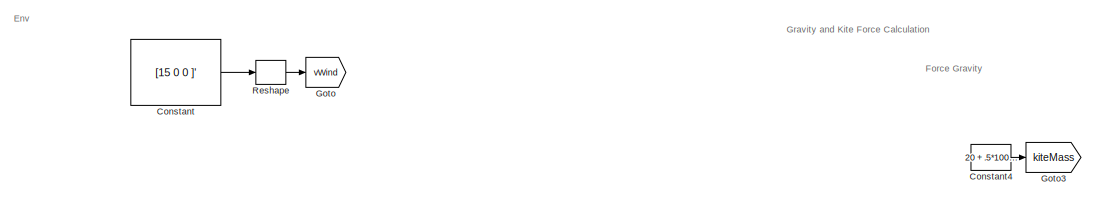
[diagram: root canvas - part 1/9, top left region]
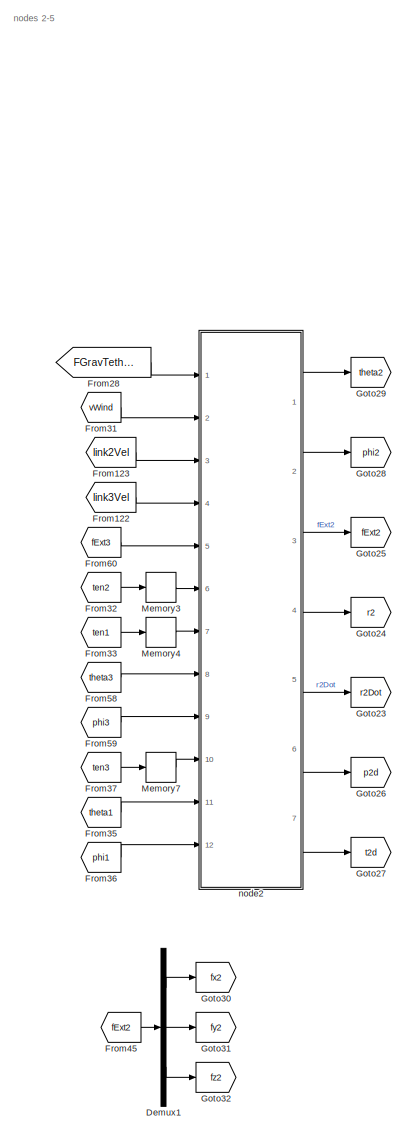
[diagram: root canvas - part 2/9, top center region]
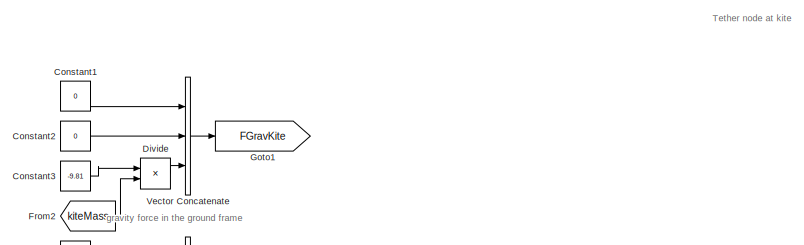
[diagram: root canvas - part 3/9, top left region]
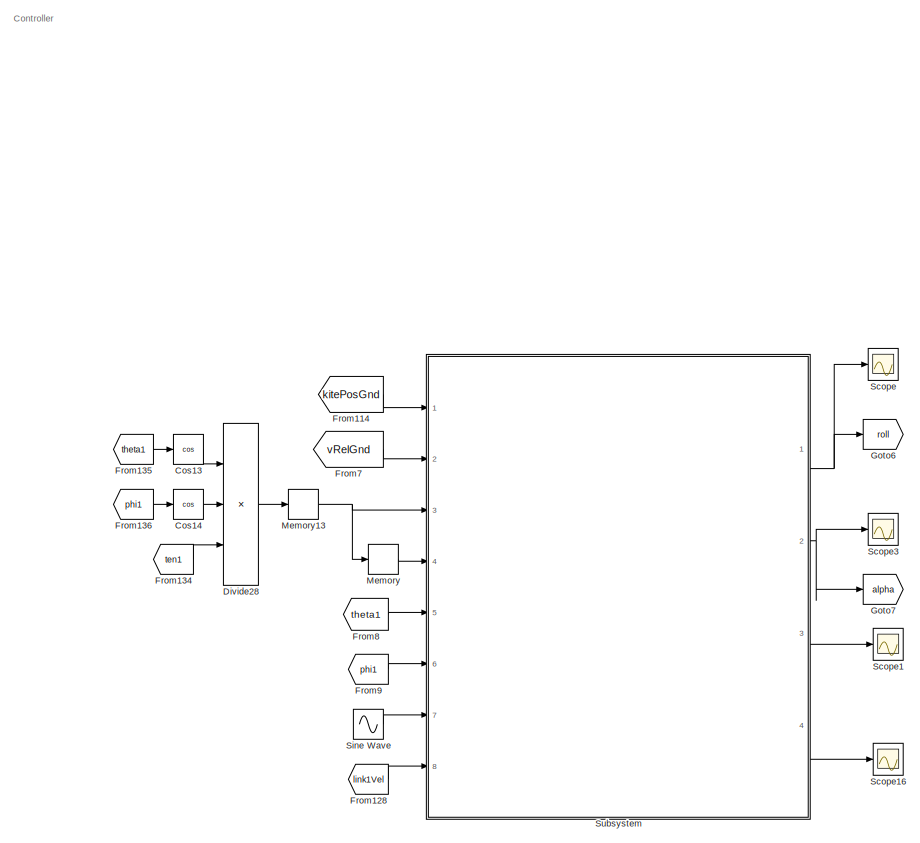
[diagram: root canvas - part 4/9, top right region]
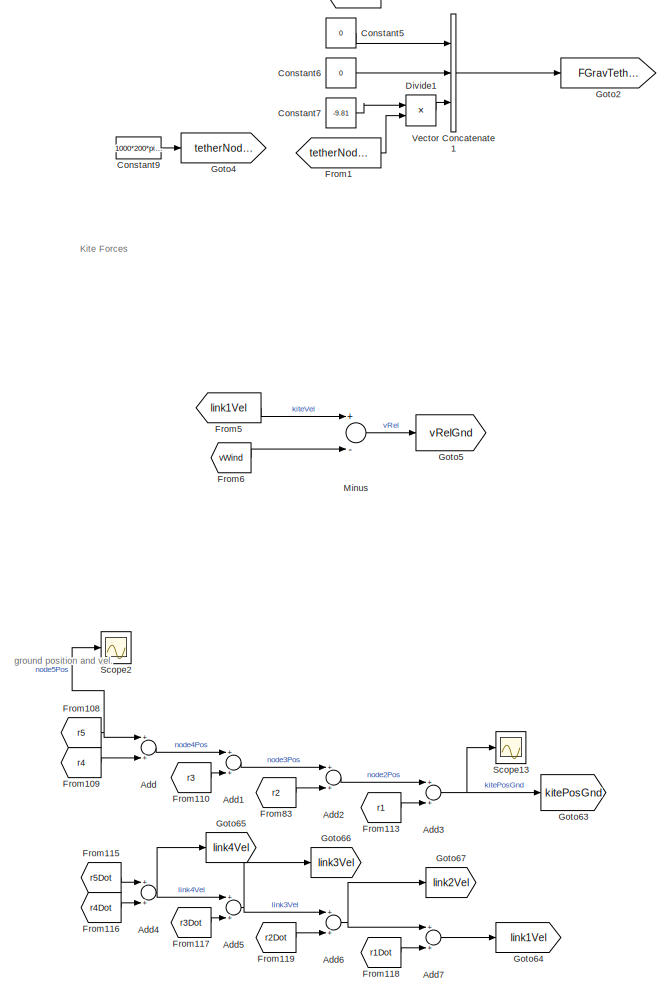
[diagram: root canvas - part 5/9, top left region]
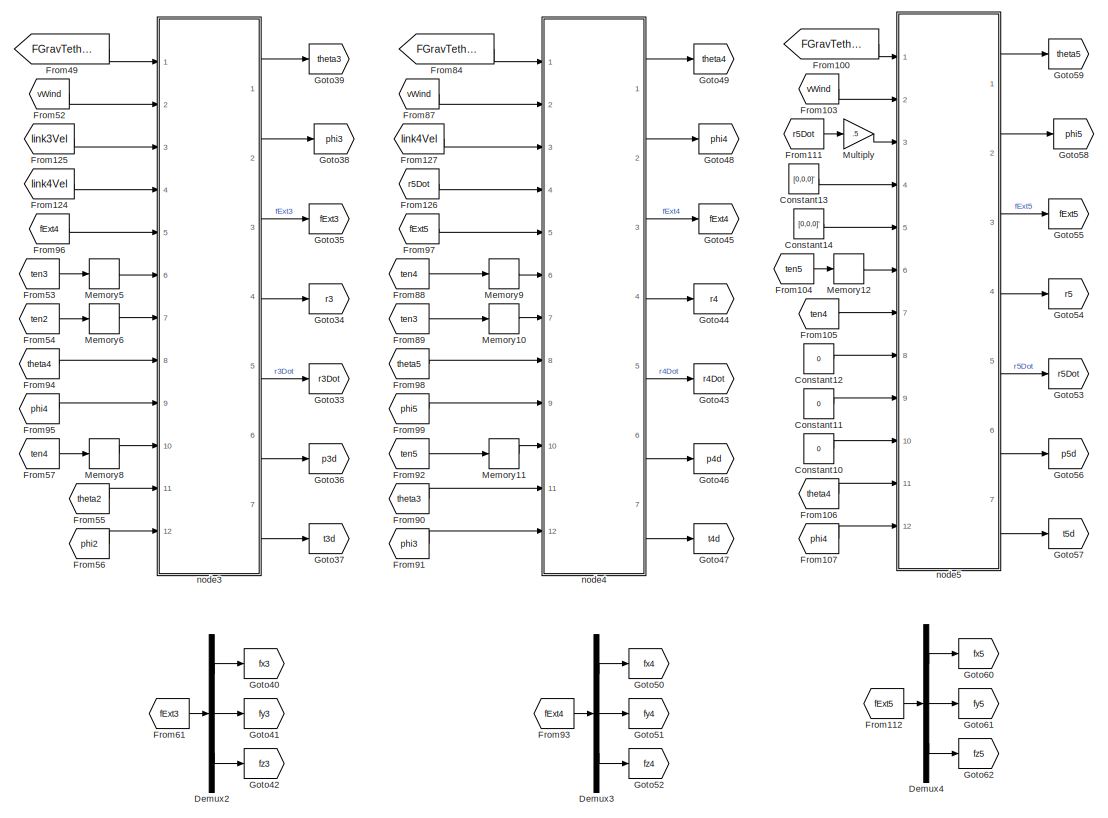
[diagram: root canvas - part 6/9, top right region]
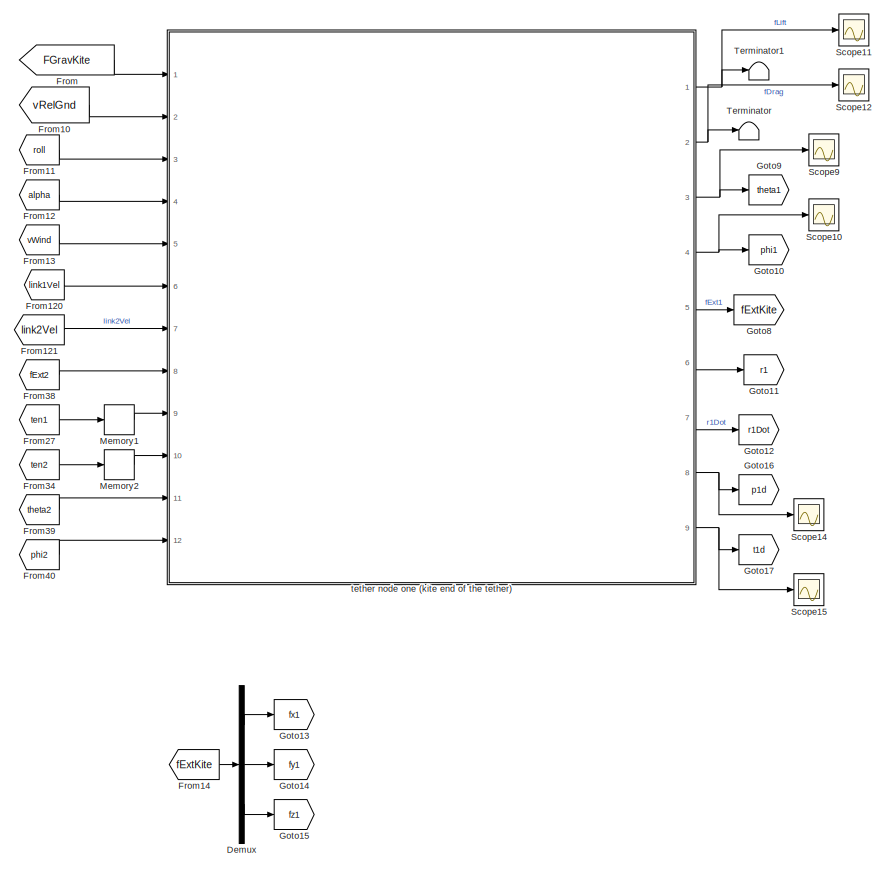
[diagram: root canvas - part 7/9, top center region]
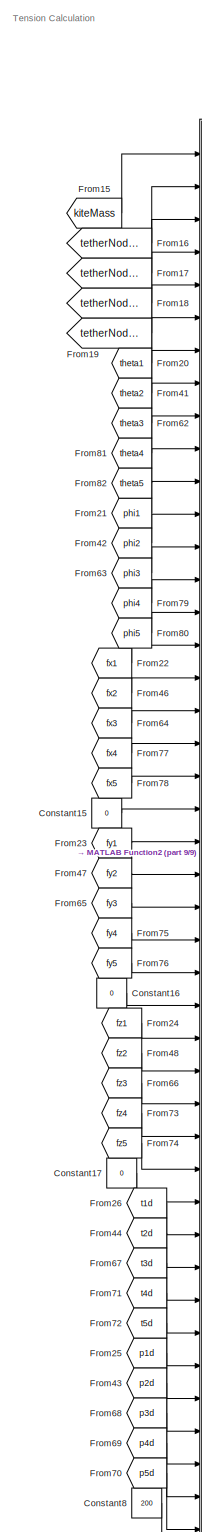
[diagram: root canvas - part 8/9, bottom center region]
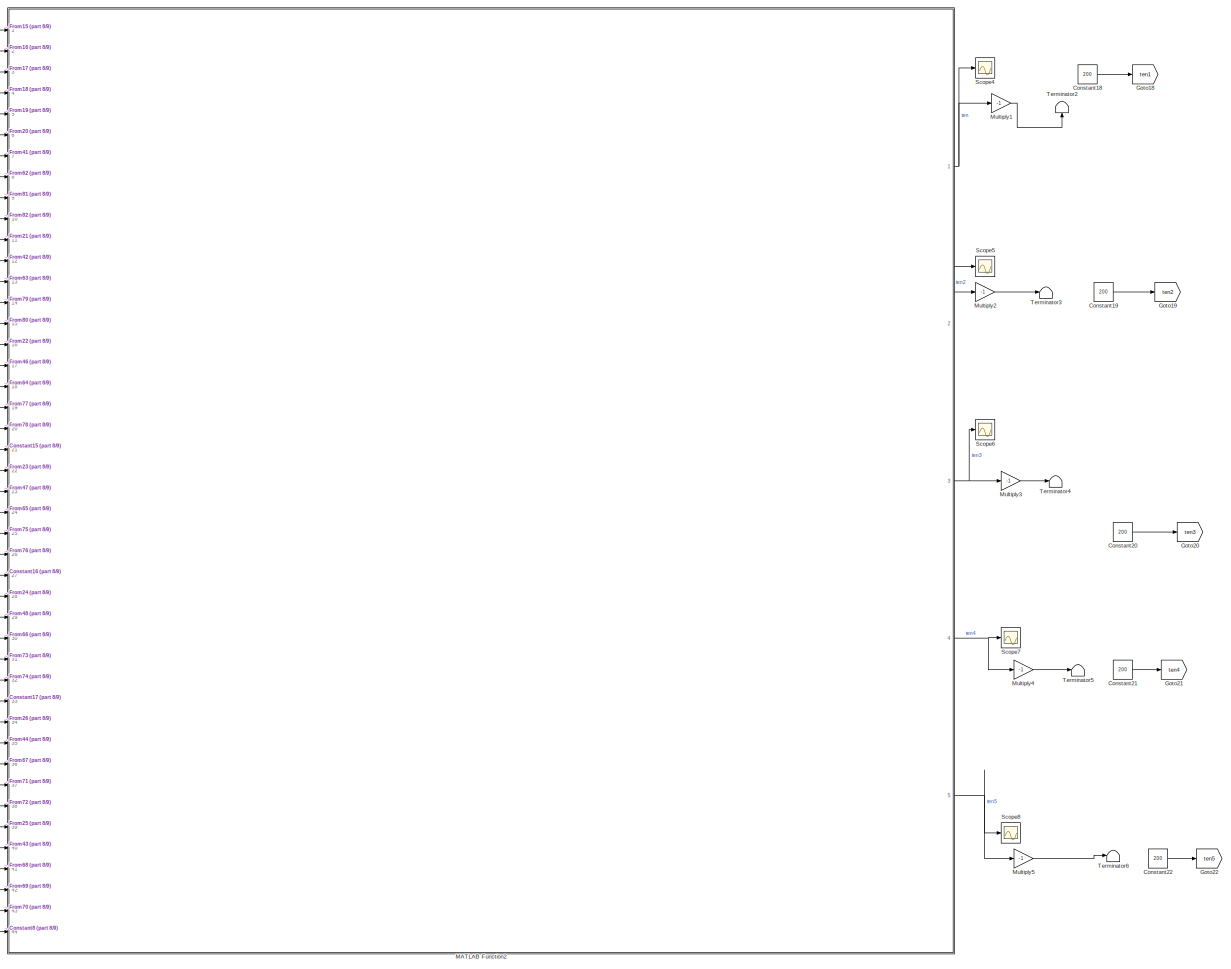
[diagram: root canvas - part 9/9, bottom right region]
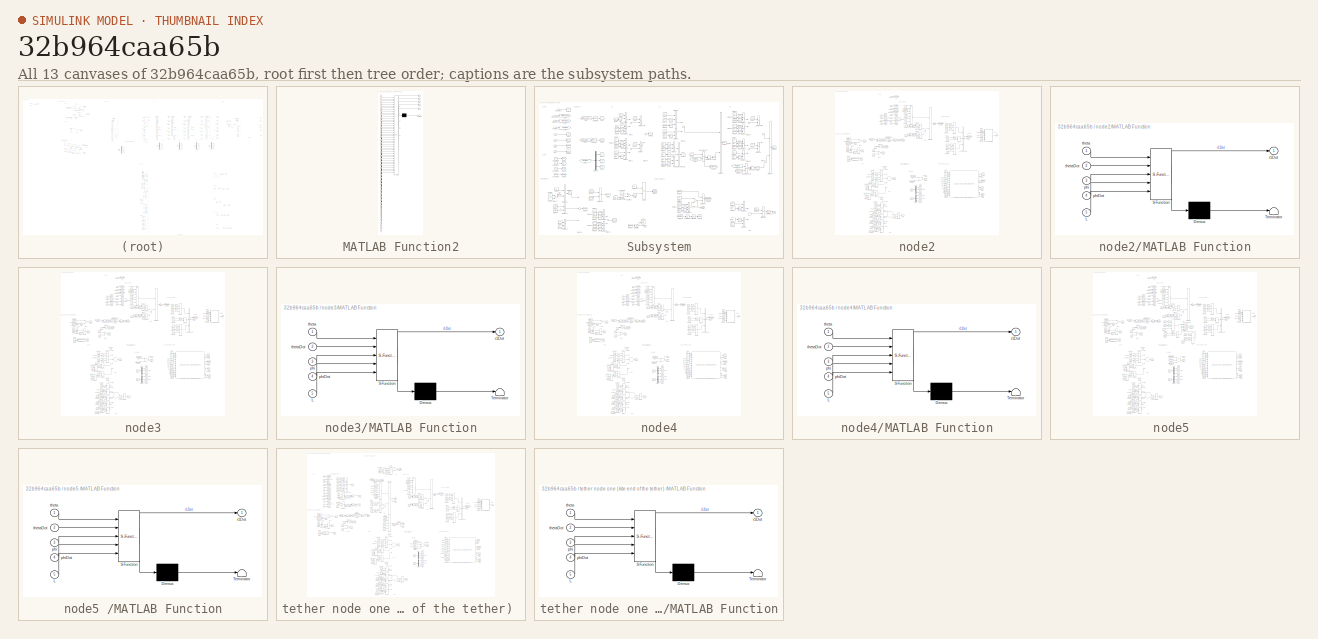
[diagram: thumbnail index - all 13 canvases of the model, root first then tree order]
MODEL slx_32b964caa65b
KIND model
CONFIG AbsTol = auto
CONFIG EnableMultiTasking = off
CONFIG FixedStep = auto
CONFIG MaxStep = auto
CONFIG MinStep = auto
CONFIG RelTol = 1e-3
CONFIG SampleTimeConstraint = Unconstrained
CONFIG Solver = VariableStepAuto
CONFIG SolverName = VariableStepAuto
CONFIG StartTime = 0.0
CONFIG StopTime = 1000
BLOCK [Sum] Add
  InputSameDT = off
  OutDataTypeStr = Inherit: Inherit via internal rule
  Ports = [2, 1]
  SaturateOnIntegerOverflow = off
BLOCK [Sum] Add1
  InputSameDT = off
  OutDataTypeStr = Inherit: Inherit via internal rule
  Ports = [2, 1]
  SaturateOnIntegerOverflow = off
BLOCK [Sum] Add2
  InputSameDT = off
  OutDataTypeStr = Inherit: Inherit via internal rule
  Ports = [2, 1]
  SaturateOnIntegerOverflow = off
BLOCK [Sum] Add3
  InputSameDT = off
  OutDataTypeStr = Inherit: Inherit via internal rule
  Ports = [2, 1]
  SaturateOnIntegerOverflow = off
BLOCK [Sum] Add4
  InputSameDT = off
  OutDataTypeStr = Inherit: Inherit via internal rule
  Ports = [2, 1]
  SaturateOnIntegerOverflow = off
BLOCK [Sum] Add5
  InputSameDT = off
  OutDataTypeStr = Inherit: Inherit via internal rule
  Ports = [2, 1]
  SaturateOnIntegerOverflow = off
BLOCK [Sum] Add6
  InputSameDT = off
  OutDataTypeStr = Inherit: Inherit via internal rule
  Ports = [2, 1]
  SaturateOnIntegerOverflow = off
BLOCK [Sum] Add7
  InputSameDT = off
  OutDataTypeStr = Inherit: Inherit via internal rule
  Ports = [2, 1]
  SaturateOnIntegerOverflow = off
BLOCK [Constant] Constant
  Value = [15 0 0 ]'
BLOCK [Constant] Constant1
  Value = 0
BLOCK [Constant] Constant10
  Value = 0
BLOCK [Constant] Constant11
  Value = 0
BLOCK [Constant] Constant12
  Value = 0
BLOCK [Constant] Constant13
  Value = [0,0,0]'
BLOCK [Constant] Constant14
  Value = [0,0,0]'
BLOCK [Constant] Constant15
  Value = 0
BLOCK [Constant] Constant16
  Value = 0
BLOCK [Constant] Constant17
  Value = 0
BLOCK [Constant] Constant18
  Value = 200
BLOCK [Constant] Constant19
  Value = 200
BLOCK [Constant] Constant2
  Value = 0
BLOCK [Constant] Constant20
  Value = 200
BLOCK [Constant] Constant21
  Value = 200
BLOCK [Constant] Constant22
  Value = 200
BLOCK [Constant] Constant3
  Value = -9.81
BLOCK [Constant] Constant4
  Value = 20 + .5*1000*200*pi*.0005*.0005
BLOCK [Constant] Constant5
  Value = 0
BLOCK [Constant] Constant6
  Value = 0
BLOCK [Constant] Constant7
  Value = -9.81
BLOCK [Constant] Constant8
  Value = 200
BLOCK [Constant] Constant9
  Value = 1000*200*pi*.0005*.0005
BLOCK [Trigonometry] Cos13
  Operator = cos
  Ports = [1, 1]
BLOCK [Trigonometry] Cos14
  Operator = cos
  Ports = [1, 1]
BLOCK [Demux] Demux
  DisplayOption = bar
  Outputs = 3
  Ports = [1, 3]
BLOCK [Demux] Demux1
  DisplayOption = bar
  Outputs = 3
  Ports = [1, 3]
BLOCK [Demux] Demux2
  DisplayOption = bar
  Outputs = 3
  Ports = [1, 3]
BLOCK [Demux] Demux3
  DisplayOption = bar
  Outputs = 3
  Ports = [1, 3]
BLOCK [Demux] Demux4
  DisplayOption = bar
  Outputs = 3
  Ports = [1, 3]
BLOCK [Product] Divide
  InputSameDT = off
  Inputs = **
  OutDataTypeStr = Inherit: Inherit via internal rule
  Ports = [2, 1]
  RndMeth = Floor
  SaturateOnIntegerOverflow = off
BLOCK [Product] Divide1
  InputSameDT = off
  Inputs = **
  OutDataTypeStr = Inherit: Inherit via internal rule
  Ports = [2, 1]
  RndMeth = Floor
  SaturateOnIntegerOverflow = off
BLOCK [Product] Divide28
  InputSameDT = off
  Inputs = ***
  OutDataTypeStr = Inherit: Inherit via internal rule
  Ports = [3, 1]
  RndMeth = Floor
  SaturateOnIntegerOverflow = off
BLOCK [From] From
  GotoTag = FGravKite
BLOCK [From] From1
  GotoTag = tetherNodeMass
BLOCK [From] From10
  GotoTag = vRelGnd
BLOCK [From] From100
  GotoTag = FGravTetherNodes
BLOCK [From] From103
  GotoTag = vWind
BLOCK [From] From104
  GotoTag = ten5
BLOCK [From] From105
  GotoTag = ten4
BLOCK [From] From106
  GotoTag = theta4
BLOCK [From] From107
  GotoTag = phi4
BLOCK [From] From108
  GotoTag = r5
BLOCK [From] From109
  GotoTag = r4
BLOCK [From] From11
  GotoTag = roll
BLOCK [From] From110
  GotoTag = r3
BLOCK [From] From111
  GotoTag = r5Dot
BLOCK [From] From112
  GotoTag = fExt5
BLOCK [From] From113
  GotoTag = r1
BLOCK [From] From114
  GotoTag = kitePosGnd
BLOCK [From] From115
  GotoTag = r5Dot
BLOCK [From] From116
  GotoTag = r4Dot
BLOCK [From] From117
  GotoTag = r3Dot
BLOCK [From] From118
  GotoTag = r1Dot
BLOCK [From] From119
  GotoTag = r2Dot
BLOCK [From] From12
  GotoTag = alpha
BLOCK [From] From120
  GotoTag = link1Vel
BLOCK [From] From121
  GotoTag = link2Vel
BLOCK [From] From122
  GotoTag = link3Vel
BLOCK [From] From123
  GotoTag = link2Vel
BLOCK [From] From124
  GotoTag = link4Vel
BLOCK [From] From125
  GotoTag = link3Vel
BLOCK [From] From126
  GotoTag = r5Dot
BLOCK [From] From127
  GotoTag = link4Vel
BLOCK [From] From128
  GotoTag = link1Vel
BLOCK [From] From13
  GotoTag = vWind
BLOCK [From] From134
  GotoTag = ten1
BLOCK [From] From135
  GotoTag = theta1
BLOCK [From] From136
  GotoTag = phi1
BLOCK [From] From14
  GotoTag = fExtKite
BLOCK [From] From15
  GotoTag = kiteMass
BLOCK [From] From16
  GotoTag = tetherNodeMass
BLOCK [From] From17
  GotoTag = tetherNodeMass
BLOCK [From] From18
  GotoTag = tetherNodeMass
BLOCK [From] From19
  GotoTag = tetherNodeMass
BLOCK [From] From2
  GotoTag = kiteMass
BLOCK [From] From20
  GotoTag = theta1
BLOCK [From] From21
  GotoTag = phi1
BLOCK [From] From22
  GotoTag = fx1
BLOCK [From] From23
  GotoTag = fy1
BLOCK [From] From24
  GotoTag = fz1
BLOCK [From] From25
  GotoTag = p1d
BLOCK [From] From26
  GotoTag = t1d
BLOCK [From] From27
  GotoTag = ten1
BLOCK [From] From28
  GotoTag = FGravTetherNodes
BLOCK [From] From31
  GotoTag = vWind
BLOCK [From] From32
  GotoTag = ten2
BLOCK [From] From33
  GotoTag = ten1
BLOCK [From] From34
  GotoTag = ten2
BLOCK [From] From35
  GotoTag = theta1
BLOCK [From] From36
  GotoTag = phi1
BLOCK [From] From37
  GotoTag = ten3
BLOCK [From] From38
  GotoTag = fExt2
BLOCK [From] From39
  GotoTag = theta2
BLOCK [From] From40
  GotoTag = phi2
BLOCK [From] From41
  GotoTag = theta2
BLOCK [From] From42
  GotoTag = phi2
BLOCK [From] From43
  GotoTag = p2d
BLOCK [From] From44
  GotoTag = t2d
BLOCK [From] From45
  GotoTag = fExt2
BLOCK [From] From46
  GotoTag = fx2
BLOCK [From] From47
  GotoTag = fy2
BLOCK [From] From48
  GotoTag = fz2
BLOCK [From] From49
  GotoTag = FGravTetherNodes
BLOCK [From] From5
  GotoTag = link1Vel
BLOCK [From] From52
  GotoTag = vWind
BLOCK [From] From53
  GotoTag = ten3
BLOCK [From] From54
  GotoTag = ten2
BLOCK [From] From55
  GotoTag = theta2
BLOCK [From] From56
  GotoTag = phi2
BLOCK [From] From57
  GotoTag = ten4
BLOCK [From] From58
  GotoTag = theta3
BLOCK [From] From59
  GotoTag = phi3
BLOCK [From] From6
  GotoTag = vWind
BLOCK [From] From60
  GotoTag = fExt3
BLOCK [From] From61
  GotoTag = fExt3
BLOCK [From] From62
  GotoTag = theta3
BLOCK [From] From63
  GotoTag = phi3
BLOCK [From] From64
  GotoTag = fx3
BLOCK [From] From65
  GotoTag = fy3
BLOCK [From] From66
  GotoTag = fz3
BLOCK [From] From67
  GotoTag = t3d
BLOCK [From] From68
  GotoTag = p3d
BLOCK [From] From69
  GotoTag = p4d
BLOCK [From] From7
  GotoTag = vRelGnd
BLOCK [From] From70
  GotoTag = p5d
BLOCK [From] From71
  GotoTag = t4d
BLOCK [From] From72
  GotoTag = t5d
BLOCK [From] From73
  GotoTag = fz4
BLOCK [From] From74
  GotoTag = fz5
BLOCK [From] From75
  GotoTag = fy4
BLOCK [From] From76
  GotoTag = fy5
BLOCK [From] From77
  GotoTag = fx4
BLOCK [From] From78
  GotoTag = fx5
BLOCK [From] From79
  GotoTag = phi4
BLOCK [From] From8
  GotoTag = theta1
BLOCK [From] From80
  GotoTag = phi5
BLOCK [From] From81
  GotoTag = theta4
BLOCK [From] From82
  GotoTag = theta5
BLOCK [From] From83
  GotoTag = r2
BLOCK [From] From84
  GotoTag = FGravTetherNodes
BLOCK [From] From87
  GotoTag = vWind
BLOCK [From] From88
  GotoTag = ten4
BLOCK [From] From89
  GotoTag = ten3
BLOCK [From] From9
  GotoTag = phi1
BLOCK [From] From90
  GotoTag = theta3
BLOCK [From] From91
  GotoTag = phi3
BLOCK [From] From92
  GotoTag = ten5
BLOCK [From] From93
  GotoTag = fExt4
BLOCK [From] From94
  GotoTag = theta4
BLOCK [From] From95
  GotoTag = phi4
BLOCK [From] From96
  GotoTag = fExt4
BLOCK [From] From97
  GotoTag = fExt5
BLOCK [From] From98
  GotoTag = theta5
BLOCK [From] From99
  GotoTag = phi5
BLOCK [Goto] Goto
  GotoTag = vWind
BLOCK [Goto] Goto1
  GotoTag = FGravKite
BLOCK [Goto] Goto10
  GotoTag = phi1
BLOCK [Goto] Goto11
  GotoTag = r1
BLOCK [Goto] Goto12
  GotoTag = r1Dot
BLOCK [Goto] Goto13
  GotoTag = fx1
BLOCK [Goto] Goto14
  GotoTag = fy1
BLOCK [Goto] Goto15
  GotoTag = fz1
BLOCK [Goto] Goto16
  GotoTag = p1d
BLOCK [Goto] Goto17
  GotoTag = t1d
BLOCK [Goto] Goto18
  GotoTag = ten1
BLOCK [Goto] Goto19
  GotoTag = ten2
BLOCK [Goto] Goto2
  GotoTag = FGravTetherNodes
BLOCK [Goto] Goto20
  GotoTag = ten3
BLOCK [Goto] Goto21
  GotoTag = ten4
BLOCK [Goto] Goto22
  GotoTag = ten5
BLOCK [Goto] Goto23
  GotoTag = r2Dot
BLOCK [Goto] Goto24
  GotoTag = r2
BLOCK [Goto] Goto25
  GotoTag = fExt2
BLOCK [Goto] Goto26
  GotoTag = p2d
BLOCK [Goto] Goto27
  GotoTag = t2d
BLOCK [Goto] Goto28
  GotoTag = phi2
BLOCK [Goto] Goto29
  GotoTag = theta2
BLOCK [Goto] Goto3
  GotoTag = kiteMass
BLOCK [Goto] Goto30
  GotoTag = fx2
BLOCK [Goto] Goto31
  GotoTag = fy2
BLOCK [Goto] Goto32
  GotoTag = fz2
BLOCK [Goto] Goto33
  GotoTag = r3Dot
BLOCK [Goto] Goto34
  GotoTag = r3
BLOCK [Goto] Goto35
  GotoTag = fExt3
BLOCK [Goto] Goto36
  GotoTag = p3d
BLOCK [Goto] Goto37
  GotoTag = t3d
BLOCK [Goto] Goto38
  GotoTag = phi3
BLOCK [Goto] Goto39
  GotoTag = theta3
BLOCK [Goto] Goto4
  GotoTag = tetherNodeMass
BLOCK [Goto] Goto40
  GotoTag = fx3
BLOCK [Goto] Goto41
  GotoTag = fy3
BLOCK [Goto] Goto42
  GotoTag = fz3
BLOCK [Goto] Goto43
  GotoTag = r4Dot
BLOCK [Goto] Goto44
  GotoTag = r4
BLOCK [Goto] Goto45
  GotoTag = fExt4
BLOCK [Goto] Goto46
  GotoTag = p4d
BLOCK [Goto] Goto47
  GotoTag = t4d
BLOCK [Goto] Goto48
  GotoTag = phi4
BLOCK [Goto] Goto49
  GotoTag = theta4
BLOCK [Goto] Goto5
  GotoTag = vRelGnd
BLOCK [Goto] Goto50
  GotoTag = fx4
BLOCK [Goto] Goto51
  GotoTag = fy4
BLOCK [Goto] Goto52
  GotoTag = fz4
BLOCK [Goto] Goto53
  GotoTag = r5Dot
BLOCK [Goto] Goto54
  GotoTag = r5
BLOCK [Goto] Goto55
  GotoTag = fExt5
BLOCK [Goto] Goto56
  GotoTag = p5d
BLOCK [Goto] Goto57
  GotoTag = t5d
BLOCK [Goto] Goto58
  GotoTag = phi5
BLOCK [Goto] Goto59
  GotoTag = theta5
BLOCK [Goto] Goto6
  GotoTag = roll
BLOCK [Goto] Goto60
  GotoTag = fx5
BLOCK [Goto] Goto61
  GotoTag = fy5
BLOCK [Goto] Goto62
  GotoTag = fz5
BLOCK [Goto] Goto63
  GotoTag = kitePosGnd
BLOCK [Goto] Goto64
  GotoTag = link1Vel
BLOCK [Goto] Goto65
  GotoTag = link4Vel
BLOCK [Goto] Goto66
  GotoTag = link3Vel
BLOCK [Goto] Goto67
  GotoTag = link2Vel
BLOCK [Goto] Goto7
  GotoTag = alpha
BLOCK [Goto] Goto8
  GotoTag = fExtKite
BLOCK [Goto] Goto9
  GotoTag = theta1
BLOCK [SubSystem] MATLAB Function2
  ErrorFcn = Stateflow.Translate.translate
  PermitHierarchicalResolution = ExplicitOnly
  Ports = [44, 5]
  RequestExecContextInheritance = off
  SFBlockType = MATLAB Function
  TreatAsAtomicUnit = on
BLOCK [Demux] MATLAB Function2/ Demux 
  Outputs = 1
  Ports = [1, 1]
BLOCK [S-Function] MATLAB Function2/ SFunction 
  EnableBusSupport = on
  FunctionName = sf_sfun
  PortCounts = [44 6]
  Ports = [44, 6]
  SFcnIsStateOwnerBlock = off
  SFunctionDeploymentMode = off
  Tag = Stateflow S-Function tetheredKiteModel 4
BLOCK [Terminator] MATLAB Function2/ Terminator 
BLOCK [Inport] MATLAB Function2/L
  IconDisplay = Port number
  Port = 44
BLOCK [Inport] MATLAB Function2/fx1
  IconDisplay = Port number
  Port = 16
BLOCK [Inport] MATLAB Function2/fx2
  IconDisplay = Port number
  Port = 17
BLOCK [Inport] MATLAB Function2/fx3
  IconDisplay = Port number
  Port = 18
BLOCK [Inport] MATLAB Function2/fx4
  IconDisplay = Port number
  Port = 19
BLOCK [Inport] MATLAB Function2/fx5
  IconDisplay = Port number
  Port = 20
BLOCK [Inport] MATLAB Function2/fx6
  IconDisplay = Port number
  Port = 21
BLOCK [Inport] MATLAB Function2/fy1
  IconDisplay = Port number
  Port = 22
BLOCK [Inport] MATLAB Function2/fy2
  IconDisplay = Port number
  Port = 23
BLOCK [Inport] MATLAB Function2/fy3
  IconDisplay = Port number
  Port = 24
BLOCK [Inport] MATLAB Function2/fy4
  IconDisplay = Port number
  Port = 25
BLOCK [Inport] MATLAB Function2/fy5
  IconDisplay = Port number
  Port = 26
BLOCK [Inport] MATLAB Function2/fy6
  IconDisplay = Port number
  Port = 27
BLOCK [Inport] MATLAB Function2/fz1
  IconDisplay = Port number
  Port = 28
BLOCK [Inport] MATLAB Function2/fz2
  IconDisplay = Port number
  Port = 29
BLOCK [Inport] MATLAB Function2/fz3
  IconDisplay = Port number
  Port = 30
BLOCK [Inport] MATLAB Function2/fz4
  IconDisplay = Port number
  Port = 31
BLOCK [Inport] MATLAB Function2/fz5
  IconDisplay = Port number
  Port = 32
BLOCK [Inport] MATLAB Function2/fz6
  IconDisplay = Port number
  Port = 33
BLOCK [Inport] MATLAB Function2/m1
  IconDisplay = Port number
BLOCK [Inport] MATLAB Function2/m2
  IconDisplay = Port number
  Port = 2
BLOCK [Inport] MATLAB Function2/m3
  IconDisplay = Port number
  Port = 3
BLOCK [Inport] MATLAB Function2/m4
  IconDisplay = Port number
  Port = 4
BLOCK [Inport] MATLAB Function2/m5
  IconDisplay = Port number
  Port = 5
BLOCK [Inport] MATLAB Function2/p1
  IconDisplay = Port number
  Port = 11
BLOCK [Inport] MATLAB Function2/p1d
  IconDisplay = Port number
  Port = 39
BLOCK [Inport] MATLAB Function2/p2
  IconDisplay = Port number
  Port = 12
BLOCK [Inport] MATLAB Function2/p2d
  IconDisplay = Port number
  Port = 40
BLOCK [Inport] MATLAB Function2/p3
  IconDisplay = Port number
  Port = 13
BLOCK [Inport] MATLAB Function2/p3d
  IconDisplay = Port number
  Port = 41
BLOCK [Inport] MATLAB Function2/p4
  IconDisplay = Port number
  Port = 14
BLOCK [Inport] MATLAB Function2/p4d
  IconDisplay = Port number
  Port = 42
BLOCK [Inport] MATLAB Function2/p5
  IconDisplay = Port number
  Port = 15
BLOCK [Inport] MATLAB Function2/p5d
  IconDisplay = Port number
  Port = 43
BLOCK [Inport] MATLAB Function2/t1
  IconDisplay = Port number
  Port = 6
BLOCK [Inport] MATLAB Function2/t1d
  IconDisplay = Port number
  Port = 34
BLOCK [Inport] MATLAB Function2/t2
  IconDisplay = Port number
  Port = 7
BLOCK [Inport] MATLAB Function2/t2d
  IconDisplay = Port number
  Port = 35
BLOCK [Inport] MATLAB Function2/t3
  IconDisplay = Port number
  Port = 8
BLOCK [Inport] MATLAB Function2/t3d
  IconDisplay = Port number
  Port = 36
BLOCK [Inport] MATLAB Function2/t4
  IconDisplay = Port number
  Port = 9
BLOCK [Inport] MATLAB Function2/t4d
  IconDisplay = Port number
  Port = 37
BLOCK [Inport] MATLAB Function2/t5
  IconDisplay = Port number
  Port = 10
BLOCK [Inport] MATLAB Function2/t5d
  IconDisplay = Port number
  Port = 38
BLOCK [Outport] MATLAB Function2/ten1
  IconDisplay = Port number
BLOCK [Outport] MATLAB Function2/ten2
  IconDisplay = Port number
  Port = 2
BLOCK [Outport] MATLAB Function2/ten3
  IconDisplay = Port number
  Port = 3
BLOCK [Outport] MATLAB Function2/ten4
  IconDisplay = Port number
  Port = 4
BLOCK [Outport] MATLAB Function2/ten5
  IconDisplay = Port number
  Port = 5
BLOCK [Memory] Memory
BLOCK [Memory] Memory1
BLOCK [Memory] Memory10
BLOCK [Memory] Memory11
BLOCK [Memory] Memory12
BLOCK [Memory] Memory13
BLOCK [Memory] Memory2
BLOCK [Memory] Memory3
BLOCK [Memory] Memory4
BLOCK [Memory] Memory5
BLOCK [Memory] Memory6
BLOCK [Memory] Memory7
BLOCK [Memory] Memory8
BLOCK [Memory] Memory9
BLOCK [Sum] Minus
  InputSameDT = off
  Inputs = +-
  OutDataTypeStr = Inherit: Inherit via internal rule
  Ports = [2, 1]
  SaturateOnIntegerOverflow = off
BLOCK [Gain] Multiply
  Gain = .5
  OutDataTypeStr = Inherit: Inherit via internal rule
  ParamDataTypeStr = Inherit: Inherit via internal rule
  SaturateOnIntegerOverflow = off
BLOCK [Gain] Multiply1
  Gain = -1
  OutDataTypeStr = Inherit: Inherit via internal rule
  ParamDataTypeStr = Inherit: Inherit via internal rule
  SaturateOnIntegerOverflow = off
BLOCK [Gain] Multiply2
  Gain = -1
  OutDataTypeStr = Inherit: Inherit via internal rule
  ParamDataTypeStr = Inherit: Inherit via internal rule
  SaturateOnIntegerOverflow = off
BLOCK [Gain] Multiply3
  Gain = -1
  OutDataTypeStr = Inherit: Inherit via internal rule
  ParamDataTypeStr = Inherit: Inherit via internal rule
  SaturateOnIntegerOverflow = off
BLOCK [Gain] Multiply4
  Gain = -1
  OutDataTypeStr = Inherit: Inherit via internal rule
  ParamDataTypeStr = Inherit: Inherit via internal rule
  SaturateOnIntegerOverflow = off
BLOCK [Gain] Multiply5
  Gain = -1
  OutDataTypeStr = Inherit: Inherit via internal rule
  ParamDataTypeStr = Inherit: Inherit via internal rule
  SaturateOnIntegerOverflow = off
BLOCK [Reshape] Reshape
  OutputDimensionality = Column vector (2-D)
  Ports = [1, 1]
BLOCK [Scope] Scope
  Floating = off
  NumInputPorts = 1
  Ports = [1]
  ScopeSpecificationString = Simulink.scopes.TimeScopeBlockCfg('CurrentConfiguration', extmgr.ConfigurationSet(extmgr.Configuration('Core','General UI',true),extmgr.Configuration('Core','Source UI',true),extmgr.Configuration('Sources','WiredSimulink',true),extmgr.Configuration('Visuals','Time Domain',true,'SerializedDisplays',{struct('MinYLimReal','-0.43638','MaxYLimReal','0.43638','YLabelReal','','MinYLimMag','0.00000','MaxY...<+1331ch>
BLOCK [Scope] Scope1
  Floating = off
  NumInputPorts = 1
  Ports = [1]
  ScopeSpecificationString = Simulink.scopes.TimeScopeBlockCfg('CurrentConfiguration', extmgr.ConfigurationSet(extmgr.Configuration('Core','General UI',true),extmgr.Configuration('Core','Source UI',true),extmgr.Configuration('Sources','WiredSimulink',true,'DataLoggingVariableName','ScopeData1'),extmgr.Configuration('Visuals','Time Domain',true,'SerializedDisplays',{struct('MinYLimReal','-0.01053','MaxYLimReal','0.09473','YLab...<+1425ch>
BLOCK [Scope] Scope10
  Floating = off
  NumInputPorts = 1
  Ports = [1]
  ScopeSpecificationString = Simulink.scopes.TimeScopeBlockCfg('CurrentConfiguration', extmgr.ConfigurationSet(extmgr.Configuration('Core','General UI',true),extmgr.Configuration('Core','Source UI',true),extmgr.Configuration('Sources','WiredSimulink',true,'DataLoggingVariableName','ScopeData10'),extmgr.Configuration('Visuals','Time Domain',true,'SerializedDisplays',{struct('MinYLimReal','-0.0000000001','MaxYLimReal','0.000000...<+1443ch>
BLOCK [Scope] Scope11
  Floating = off
  NumInputPorts = 1
  Ports = [1]
  ScopeSpecificationString = Simulink.scopes.TimeScopeBlockCfg('CurrentConfiguration', extmgr.ConfigurationSet(extmgr.Configuration('Core','General UI',true),extmgr.Configuration('Core','Source UI',true),extmgr.Configuration('Sources','WiredSimulink',true,'DataLoggingVariableName','ScopeData11'),extmgr.Configuration('Visuals','Time Domain',true,'SerializedDisplays',{struct('MinYLimReal','-1338731.8492','MaxYLimReal','1315591....<+1429ch>
BLOCK [Scope] Scope12
  Floating = off
  NumInputPorts = 1
  Ports = [1]
  ScopeSpecificationString = Simulink.scopes.TimeScopeBlockCfg('CurrentConfiguration', extmgr.ConfigurationSet(extmgr.Configuration('Core','General UI',true),extmgr.Configuration('Core','Source UI',true),extmgr.Configuration('Sources','WiredSimulink',true,'DataLoggingVariableName','ScopeData12'),extmgr.Configuration('Visuals','Time Domain',true,'SerializedDisplays',{struct('MinYLimReal','-3043.31182','MaxYLimReal','11362.4877...<+1413ch>
BLOCK [Scope] Scope13
  Floating = off
  NumInputPorts = 1
  Ports = [1]
  ScopeSpecificationString = Simulink.scopes.TimeScopeBlockCfg('CurrentConfiguration', extmgr.ConfigurationSet(extmgr.Configuration('Core','General UI',true),extmgr.Configuration('Core','Source UI',true),extmgr.Configuration('Sources','WiredSimulink',true,'DataLoggingVariableName','ScopeData1'),extmgr.Configuration('Visuals','Time Domain',true,'SerializedDisplays',{struct('MinYLimReal','-122.50833','MaxYLimReal','1102.57496',...<+1419ch>
BLOCK [Scope] Scope14
  Floating = off
  NumInputPorts = 1
  Ports = [1]
  ScopeSpecificationString = Simulink.scopes.TimeScopeBlockCfg('CurrentConfiguration', extmgr.ConfigurationSet(extmgr.Configuration('Core','General UI',true),extmgr.Configuration('Core','Source UI',true),extmgr.Configuration('Sources','WiredSimulink',true,'DataLoggingVariableName','ScopeData14'),extmgr.Configuration('Visuals','Time Domain',true,'SerializedDisplays',{struct('MinYLimReal','-0.00000076','MaxYLimReal','0.00000022...<+1427ch>
BLOCK [Scope] Scope15
  Floating = off
  NumInputPorts = 1
  Ports = [1]
  ScopeSpecificationString = Simulink.scopes.TimeScopeBlockCfg('CurrentConfiguration', extmgr.ConfigurationSet(extmgr.Configuration('Core','General UI',true),extmgr.Configuration('Core','Source UI',true),extmgr.Configuration('Sources','WiredSimulink',true,'DataLoggingVariableName','ScopeData15'),extmgr.Configuration('Visuals','Time Domain',true,'SerializedDisplays',{struct('MinYLimReal','-3.6968','MaxYLimReal','33.27123','YLa...<+1405ch>
BLOCK [Scope] Scope16
  Floating = off
  NumInputPorts = 1
  Ports = [1]
  ScopeSpecificationString = Simulink.scopes.TimeScopeBlockCfg('CurrentConfiguration', extmgr.ConfigurationSet(extmgr.Configuration('Core','General UI',true),extmgr.Configuration('Core','Source UI',true),extmgr.Configuration('Sources','WiredSimulink',true,'DataLoggingVariableName','ScopeData16'),extmgr.Configuration('Visuals','Time Domain',true,'SerializedDisplays',{struct('MinYLimReal','-24.50166','MaxYLimReal','220.51498','...<+1381ch>
BLOCK [Scope] Scope2
  Floating = off
  NumInputPorts = 1
  Ports = [1]
  ScopeSpecificationString = Simulink.scopes.TimeScopeBlockCfg('CurrentConfiguration', extmgr.ConfigurationSet(extmgr.Configuration('Core','General UI',true),extmgr.Configuration('Core','Source UI',true),extmgr.Configuration('Sources','WiredSimulink',true,'DataLoggingVariableName','ScopeData2'),extmgr.Configuration('Visuals','Time Domain',true,'SerializedDisplays',{struct('MinYLimReal','-32.21959','MaxYLimReal','224.60408','Y...<+1434ch>
BLOCK [Scope] Scope3
  Floating = off
  NumInputPorts = 1
  Ports = [1]
  ScopeSpecificationString = Simulink.scopes.TimeScopeBlockCfg('CurrentConfiguration', extmgr.ConfigurationSet(extmgr.Configuration('Core','General UI',true),extmgr.Configuration('Core','Source UI',true),extmgr.Configuration('Sources','WiredSimulink',true,'DataLoggingVariableName','ScopeData3'),extmgr.Configuration('Visuals','Time Domain',true,'SerializedDisplays',{struct('MinYLimReal','0.0249','MaxYLimReal','0.0449','YLabelR...<+1389ch>
BLOCK [Scope] Scope4
  Floating = off
  NumInputPorts = 1
  Ports = [1]
  ScopeSpecificationString = Simulink.scopes.TimeScopeBlockCfg('CurrentConfiguration', extmgr.ConfigurationSet(extmgr.Configuration('Core','General UI',true),extmgr.Configuration('Core','Source UI',true),extmgr.Configuration('Sources','WiredSimulink',true,'DataLoggingVariableName','ScopeData4'),extmgr.Configuration('Visuals','Time Domain',true,'SerializedDisplays',{struct('MinYLimReal','-29665.45229','MaxYLimReal','266370.199...<+1396ch>
BLOCK [Scope] Scope5
  Floating = off
  NumInputPorts = 1
  Ports = [1]
  ScopeSpecificationString = Simulink.scopes.TimeScopeBlockCfg('CurrentConfiguration', extmgr.ConfigurationSet(extmgr.Configuration('Core','General UI',true),extmgr.Configuration('Core','Source UI',true),extmgr.Configuration('Sources','WiredSimulink',true,'DataLoggingVariableName','ScopeData5'),extmgr.Configuration('Visuals','Time Domain',true,'SerializedDisplays',{struct('MinYLimReal','-30831.33957','MaxYLimReal','3487.95681...<+1391ch>
BLOCK [Scope] Scope6
  Floating = off
  NumInputPorts = 1
  Ports = [1]
  ScopeSpecificationString = Simulink.scopes.TimeScopeBlockCfg('CurrentConfiguration', extmgr.ConfigurationSet(extmgr.Configuration('Core','General UI',true),extmgr.Configuration('Core','Source UI',true),extmgr.Configuration('Sources','WiredSimulink',true,'DataLoggingVariableName','ScopeData6'),extmgr.Configuration('Visuals','Time Domain',true,'SerializedDisplays',{struct('MinYLimReal','-24481.76564','MaxYLimReal','219845.486...<+1397ch>
BLOCK [Scope] Scope7
  Floating = off
  NumInputPorts = 1
  Ports = [1]
  ScopeSpecificationString = Simulink.scopes.TimeScopeBlockCfg('CurrentConfiguration', extmgr.ConfigurationSet(extmgr.Configuration('Core','General UI',true),extmgr.Configuration('Core','Source UI',true),extmgr.Configuration('Sources','WiredSimulink',true,'DataLoggingVariableName','ScopeData7'),extmgr.Configuration('Visuals','Time Domain',true,'SerializedDisplays',{struct('MinYLimReal','-14246.76332','MaxYLimReal','1639.94245...<+1391ch>
BLOCK [Scope] Scope8
  Floating = off
  NumInputPorts = 1
  Ports = [1]
  ScopeSpecificationString = Simulink.scopes.TimeScopeBlockCfg('CurrentConfiguration', extmgr.ConfigurationSet(extmgr.Configuration('Core','General UI',true),extmgr.Configuration('Core','Source UI',true),extmgr.Configuration('Sources','WiredSimulink',true,'DataLoggingVariableName','ScopeData8'),extmgr.Configuration('Visuals','Time Domain',true,'SerializedDisplays',{struct('MinYLimReal','-22675.20742','MaxYLimReal','203857.227...<+1397ch>
BLOCK [Scope] Scope9
  Floating = off
  NumInputPorts = 1
  Ports = [1]
  ScopeSpecificationString = Simulink.scopes.TimeScopeBlockCfg('CurrentConfiguration', extmgr.ConfigurationSet(extmgr.Configuration('Core','General UI',true),extmgr.Configuration('Core','Source UI',true),extmgr.Configuration('Sources','WiredSimulink',true,'DataLoggingVariableName','ScopeData9'),extmgr.Configuration('Visuals','Time Domain',true,'SerializedDisplays',{struct('MinYLimReal','0.1897','MaxYLimReal','0.2927','YLabelR...<+1392ch>
BLOCK [Sin] Sine Wave
  Amplitude = 60
  Frequency = 1/100
  Ports = [0, 1]
  SampleTime = 0
BLOCK [SubSystem] Subsystem
  Ports = [8, 4]
  RequestExecContextInheritance = off
BLOCK [Sum] Subsystem/Add
  InputSameDT = off
  OutDataTypeStr = Inherit: Inherit via internal rule
  Ports = [2, 1]
  SaturateOnIntegerOverflow = off
BLOCK [Trigonometry] Subsystem/Atan2
  Operator = atan2
  Ports = [2, 1]
BLOCK [Constant] Subsystem/Constant
  Value = ky
BLOCK [Constant] Subsystem/Constant1
  Value = kydot
BLOCK [Constant] Subsystem/Constant2
  Value = kalpha
BLOCK [Constant] Subsystem/Constant3
  Value = ky1
BLOCK [Constant] Subsystem/Constant5
BLOCK [Trigonometry] Subsystem/Cos
  Operator = cos
  Ports = [1, 1]
BLOCK [Trigonometry] Subsystem/Cos1
  Ports = [1, 1]
BLOCK [Trigonometry] Subsystem/Cos2
  Operator = cos
  Ports = [1, 1]
BLOCK [Trigonometry] Subsystem/Cos3
  Operator = cos
  Ports = [1, 1]
BLOCK [Trigonometry] Subsystem/Cos4
  Ports = [1, 1]
BLOCK [Trigonometry] Subsystem/Cos5
  Operator = cos
  Ports = [1, 1]
BLOCK [Trigonometry] Subsystem/Cos6
  Ports = [1, 1]
BLOCK [Trigonometry] Subsystem/Cos7
  Ports = [1, 1]
BLOCK [Trigonometry] Subsystem/Cos8
  Operator = cos
  Ports = [1, 1]
BLOCK [Trigonometry] Subsystem/Cos9
  Operator = cos
  Ports = [1, 1]
BLOCK [Reference] Subsystem/Cross Product  REF=vrlib/Utilities/Cross Product
  Ports = [2, 1]
  SourceBlock = vrlib/Utilities/Cross Product
  SourceProductBaseCode = SL
  SourceProductName = Simulink
  SourceType = Cross Product
BLOCK [Reference] Subsystem/Cross Product1  REF=vrlib/Utilities/Cross Product
  Ports = [2, 1]
  SourceBlock = vrlib/Utilities/Cross Product
  SourceProductBaseCode = SL
  SourceProductName = Simulink
  SourceType = Cross Product
BLOCK [Demux] Subsystem/Demux2
  DisplayOption = bar
  Outputs = 3
  Ports = [1, 3]
BLOCK [Product] Subsystem/Divide
  InputSameDT = off
  Inputs = **
  OutDataTypeStr = Inherit: Inherit via internal rule
  Ports = [2, 1]
  RndMeth = Floor
  SaturateOnIntegerOverflow = off
BLOCK [Product] Subsystem/Divide1
  InputSameDT = off
  Inputs = ***
  OutDataTypeStr = Inherit: Inherit via internal rule
  Ports = [3, 1]
  RndMeth = Floor
  SaturateOnIntegerOverflow = off
BLOCK [Product] Subsystem/Divide10
  InputSameDT = off
  Inputs = */
  OutDataTypeStr = Inherit: Inherit via internal rule
  Ports = [2, 1]
  RndMeth = Floor
  SaturateOnIntegerOverflow = off
BLOCK [Product] Subsystem/Divide11
  InputSameDT = off
  Inputs = ***
  OutDataTypeStr = Inherit: Inherit via internal rule
  Ports = [3, 1]
  RndMeth = Floor
  SaturateOnIntegerOverflow = off
BLOCK [Product] Subsystem/Divide12
  InputSameDT = off
  Inputs = ***
  OutDataTypeStr = Inherit: Inherit via internal rule
  Ports = [3, 1]
  RndMeth = Floor
  SaturateOnIntegerOverflow = off
BLOCK [Product] Subsystem/Divide13
  InputSameDT = off
  Inputs = **
  OutDataTypeStr = Inherit: Inherit via internal rule
  Ports = [2, 1]
  RndMeth = Floor
  SaturateOnIntegerOverflow = off
BLOCK [Product] Subsystem/Divide14
  InputSameDT = off
  Inputs = ***
  OutDataTypeStr = Inherit: Inherit via internal rule
  Ports = [3, 1]
  RndMeth = Floor
  SaturateOnIntegerOverflow = off
BLOCK [Product] Subsystem/Divide15
  InputSameDT = off
  Inputs = **
  OutDataTypeStr = Inherit: Inherit via internal rule
  Ports = [2, 1]
  RndMeth = Floor
  SaturateOnIntegerOverflow = off
BLOCK [Product] Subsystem/Divide16
  InputSameDT = off
  Inputs = **
  OutDataTypeStr = Inherit: Inherit via internal rule
  Ports = [2, 1]
  RndMeth = Floor
  SaturateOnIntegerOverflow = off
BLOCK [Product] Subsystem/Divide17
  InputSameDT = off
  Inputs = */
  OutDataTypeStr = Inherit: Inherit via internal rule
  Ports = [2, 1]
  RndMeth = Floor
  SaturateOnIntegerOverflow = off
BLOCK [Product] Subsystem/Divide18
  InputSameDT = off
  Inputs = **
  OutDataTypeStr = Inherit: Inherit via internal rule
  Ports = [2, 1]
  RndMeth = Floor
  SaturateOnIntegerOverflow = off
BLOCK [Product] Subsystem/Divide19
  InputSameDT = off
  Inputs = **
  OutDataTypeStr = Inherit: Inherit via internal rule
  Ports = [2, 1]
  RndMeth = Floor
  SaturateOnIntegerOverflow = off
BLOCK [Product] Subsystem/Divide2
  InputSameDT = off
  Inputs = **
  OutDataTypeStr = Inherit: Inherit via internal rule
  Ports = [2, 1]
  RndMeth = Floor
  SaturateOnIntegerOverflow = off
BLOCK [Product] Subsystem/Divide20
  InputSameDT = off
  Inputs = **
  OutDataTypeStr = Inherit: Inherit via internal rule
  Ports = [2, 1]
  RndMeth = Floor
  SaturateOnIntegerOverflow = off
BLOCK [Product] Subsystem/Divide21
  InputSameDT = off
  Inputs = ***
  OutDataTypeStr = Inherit: Inherit via internal rule
  Ports = [3, 1]
  RndMeth = Floor
  SaturateOnIntegerOverflow = off
BLOCK [Product] Subsystem/Divide22
  InputSameDT = off
  Inputs = ***
  OutDataTypeStr = Inherit: Inherit via internal rule
  Ports = [3, 1]
  RndMeth = Floor
  SaturateOnIntegerOverflow = off
BLOCK [Product] Subsystem/Divide23
  InputSameDT = off
  Inputs = */
  OutDataTypeStr = Inherit: Inherit via internal rule
  Ports = [2, 1]
  RndMeth = Floor
  SaturateOnIntegerOverflow = off
BLOCK [Product] Subsystem/Divide24
  InputSameDT = off
  Inputs = ***
  OutDataTypeStr = Inherit: Inherit via internal rule
  Ports = [3, 1]
  RndMeth = Floor
  SaturateOnIntegerOverflow = off
BLOCK [Product] Subsystem/Divide25
  InputSameDT = off
  Inputs = **
  OutDataTypeStr = Inherit: Inherit via internal rule
  Ports = [2, 1]
  RndMeth = Floor
  SaturateOnIntegerOverflow = off
BLOCK [Product] Subsystem/Divide26
  InputSameDT = off
  Inputs = **
  OutDataTypeStr = Inherit: Inherit via internal rule
  Ports = [2, 1]
  RndMeth = Floor
  SaturateOnIntegerOverflow = off
BLOCK [Product] Subsystem/Divide27
  InputSameDT = off
  Inputs = **
  OutDataTypeStr = Inherit: Inherit via internal rule
  Ports = [2, 1]
  RndMeth = Floor
  SaturateOnIntegerOverflow = off
BLOCK [Product] Subsystem/Divide28
  InputSameDT = off
  Inputs = */
  OutDataTypeStr = Inherit: Inherit via internal rule
  Ports = [2, 1]
  RndMeth = Floor
  SaturateOnIntegerOverflow = off
BLOCK [Product] Subsystem/Divide3
  InputSameDT = off
  Inputs = ***
  OutDataTypeStr = Inherit: Inherit via internal rule
  Ports = [3, 1]
  RndMeth = Floor
  SaturateOnIntegerOverflow = off
BLOCK [Product] Subsystem/Divide4
  InputSameDT = off
  Inputs = **
  OutDataTypeStr = Inherit: Inherit via internal rule
  Ports = [2, 1]
  RndMeth = Floor
  SaturateOnIntegerOverflow = off
BLOCK [Product] Subsystem/Divide5
  InputSameDT = off
  Inputs = **
  OutDataTypeStr = Inherit: Inherit via internal rule
  Ports = [2, 1]
  RndMeth = Floor
  SaturateOnIntegerOverflow = off
BLOCK [Product] Subsystem/Divide6
  InputSameDT = off
  Inputs = **
  OutDataTypeStr = Inherit: Inherit via internal rule
  Ports = [2, 1]
  RndMeth = Floor
  SaturateOnIntegerOverflow = off
BLOCK [Product] Subsystem/Divide7
  InputSameDT = off
  Inputs = **
  OutDataTypeStr = Inherit: Inherit via internal rule
  Ports = [2, 1]
  RndMeth = Floor
  SaturateOnIntegerOverflow = off
BLOCK [Product] Subsystem/Divide8
  InputSameDT = off
  Inputs = ***
  OutDataTypeStr = Inherit: Inherit via internal rule
  Ports = [3, 1]
  RndMeth = Floor
  SaturateOnIntegerOverflow = off
BLOCK [Product] Subsystem/Divide9
  InputSameDT = off
  Inputs = **
  OutDataTypeStr = Inherit: Inherit via internal rule
  Ports = [2, 1]
  RndMeth = Floor
  SaturateOnIntegerOverflow = off
BLOCK [DotProduct] Subsystem/Dot Product
  OutDataTypeStr = Inherit: Inherit via internal rule
BLOCK [DotProduct] Subsystem/Dot Product1
  OutDataTypeStr = Inherit: Inherit via internal rule
BLOCK [From] Subsystem/From
  GotoTag = kitePosGnd
BLOCK [From] Subsystem/From1
  GotoTag = kiteVelGnd
BLOCK [From] Subsystem/From10
  GotoTag = phi
BLOCK [From] Subsystem/From11
  GotoTag = theta
BLOCK [From] Subsystem/From12
  GotoTag = vx
BLOCK [From] Subsystem/From13
  GotoTag = phi
BLOCK [From] Subsystem/From14
  GotoTag = vx
BLOCK [From] Subsystem/From15
  GotoTag = theta
BLOCK [From] Subsystem/From16
  GotoTag = phi
BLOCK [From] Subsystem/From17
  GotoTag = phi
BLOCK [From] Subsystem/From18
  GotoTag = theta
BLOCK [From] Subsystem/From19
  GotoTag = phi
BLOCK [From] Subsystem/From2
  GotoTag = vRelGnd
BLOCK [From] Subsystem/From20
  GotoTag = vRelGnd
BLOCK [From] Subsystem/From21
  GotoTag = T1
BLOCK [From] Subsystem/From22
  GotoTag = vy
BLOCK [From] Subsystem/From23
  GotoTag = theta
BLOCK [From] Subsystem/From24
  GotoTag = phi
BLOCK [From] Subsystem/From25
  GotoTag = vx
BLOCK [From] Subsystem/From26
  GotoTag = phi
BLOCK [From] Subsystem/From27
  GotoTag = phi
BLOCK [From] Subsystem/From28
  GotoTag = theta
BLOCK [From] Subsystem/From29
  GotoTag = vz
BLOCK [From] Subsystem/From3
  GotoTag = vz
BLOCK [From] Subsystem/From30
  GotoTag = phi
BLOCK [From] Subsystem/From31
  GotoTag = vy
BLOCK [From] Subsystem/From32
  GotoTag = vx
BLOCK [From] Subsystem/From33
  GotoTag = phi
BLOCK [From] Subsystem/From34
  GotoTag = vz
BLOCK [From] Subsystem/From35
  GotoTag = phi
BLOCK [From] Subsystem/From36
  GotoTag = theta
BLOCK [From] Subsystem/From37
  GotoTag = vx
BLOCK [From] Subsystem/From38
  GotoTag = vy
BLOCK [From] Subsystem/From39
  GotoTag = theta
BLOCK [From] Subsystem/From4
  GotoTag = phi
BLOCK [From] Subsystem/From40
  GotoTag = t1crossVrel
BLOCK [From] Subsystem/From41
  GotoTag = vRelGnd
BLOCK [From] Subsystem/From42
  GotoTag = ky
BLOCK [From] Subsystem/From43
  GotoTag = yc
BLOCK [From] Subsystem/From44
  GotoTag = y
BLOCK [From] Subsystem/From45
  GotoTag = kydot
BLOCK [From] Subsystem/From46
  GotoTag = yDot
BLOCK [From] Subsystem/From47
  GotoTag = ky1
BLOCK [From] Subsystem/From48
  GotoTag = p1
BLOCK [From] Subsystem/From49
  GotoTag = phi
BLOCK [From] Subsystem/From5
  GotoTag = vy
BLOCK [From] Subsystem/From50
  GotoTag = theta
BLOCK [From] Subsystem/From51
  GotoTag = phi
BLOCK [From] Subsystem/From52
  GotoTag = vx
BLOCK [From] Subsystem/From53
  GotoTag = theta
BLOCK [From] Subsystem/From54
  GotoTag = num
BLOCK [From] Subsystem/From55
  GotoTag = vz
BLOCK [From] Subsystem/From56
  GotoTag = denom
BLOCK [From] Subsystem/From57
  GotoTag = rollCmd
BLOCK [From] Subsystem/From58
  GotoTag = kalpha
BLOCK [From] Subsystem/From59
  GotoTag = Tc
BLOCK [From] Subsystem/From6
  GotoTag = phi
BLOCK [From] Subsystem/From60
  GotoTag = Tk01
BLOCK [From] Subsystem/From61
  GotoTag = phi
BLOCK [From] Subsystem/From62
  GotoTag = theta
BLOCK [From] Subsystem/From63
  GotoTag = p2
BLOCK [From] Subsystem/From64
  GotoTag = aBarDot
BLOCK [From] Subsystem/From65
  GotoTag = p3
BLOCK [From] Subsystem/From66
  GotoTag = aBar
BLOCK [From] Subsystem/From67
  GotoTag = roll
BLOCK [From] Subsystem/From68
  GotoTag = roll
BLOCK [From] Subsystem/From69
  GotoTag = xtr
BLOCK [From] Subsystem/From7
  GotoTag = theta
BLOCK [From] Subsystem/From70
  GotoTag = xtr
BLOCK [From] Subsystem/From8
  GotoTag = vz
BLOCK [From] Subsystem/From9
  GotoTag = vy
BLOCK [Goto] Subsystem/Goto
  GotoTag = kitePosGnd
BLOCK [Goto] Subsystem/Goto1
  GotoTag = kiteVelGnd
BLOCK [Goto] Subsystem/Goto11
  GotoTag = vz
BLOCK [Goto] Subsystem/Goto12
  GotoTag = vx
BLOCK [Goto] Subsystem/Goto13
  GotoTag = vy
BLOCK [Goto] Subsystem/Goto14
  GotoTag = ky
BLOCK [Goto] Subsystem/Goto15
  GotoTag = kydot
BLOCK [Goto] Subsystem/Goto16
  GotoTag = kalpha
BLOCK [Goto] Subsystem/Goto17
  GotoTag = ky1
BLOCK [Goto] Subsystem/Goto18
  GotoTag = theta
BLOCK [Goto] Subsystem/Goto19
  GotoTag = phi
BLOCK [Goto] Subsystem/Goto2
  GotoTag = xtr
BLOCK [Goto] Subsystem/Goto20
  GotoTag = p1
BLOCK [Goto] Subsystem/Goto21
  GotoTag = T1
BLOCK [Goto] Subsystem/Goto22
  GotoTag = p2
BLOCK [Goto] Subsystem/Goto23
  GotoTag = t1crossVrel
BLOCK [Goto] Subsystem/Goto24
  GotoTag = p3
BLOCK [Goto] Subsystem/Goto25
  GotoTag = rollCmd
BLOCK [Goto] Subsystem/Goto26
  GotoTag = num
BLOCK [Goto] Subsystem/Goto27
  GotoTag = denom
BLOCK [Goto] Subsystem/Goto28
  GotoTag = aBarDot
BLOCK [Goto] Subsystem/Goto29
  GotoTag = aBar
BLOCK [Goto] Subsystem/Goto3
  GotoTag = y
BLOCK [Goto] Subsystem/Goto30
  GotoTag = roll
BLOCK [Goto] Subsystem/Goto31
  GotoTag = yc
BLOCK [Goto] Subsystem/Goto5
  GotoTag = vRelGnd
BLOCK [Goto] Subsystem/Goto6
  GotoTag = Tc
BLOCK [Goto] Subsystem/Goto7
  GotoTag = Tk01
BLOCK [Goto] Subsystem/Goto9
  GotoTag = yDot
BLOCK [Integrator] Subsystem/Integrator
  Ports = [1, 1]
BLOCK [Integrator] Subsystem/Integrator1
  Ports = [1, 1]
BLOCK [Math] Subsystem/Math Function
  Operator = magnitude^2
  Ports = [1, 1]
BLOCK [Sum] Subsystem/Minus
  InputSameDT = off
  Inputs = +-
  OutDataTypeStr = Inherit: Inherit via internal rule
  Ports = [2, 1]
  SaturateOnIntegerOverflow = off
BLOCK [Sum] Subsystem/Minus1
  InputSameDT = off
  Inputs = +-
  OutDataTypeStr = Inherit: Inherit via internal rule
  Ports = [2, 1]
  SaturateOnIntegerOverflow = off
BLOCK [Sum] Subsystem/Minus10
  InputSameDT = off
  Inputs = +-
  OutDataTypeStr = Inherit: Inherit via internal rule
  Ports = [2, 1]
  SaturateOnIntegerOverflow = off
BLOCK [Sum] Subsystem/Minus2
  InputSameDT = off
  Inputs = +-
  OutDataTypeStr = Inherit: Inherit via internal rule
  Ports = [2, 1]
  SaturateOnIntegerOverflow = off
BLOCK [Sum] Subsystem/Minus3
  InputSameDT = off
  Inputs = +-
  OutDataTypeStr = Inherit: Inherit via internal rule
  Ports = [2, 1]
  SaturateOnIntegerOverflow = off
BLOCK [Sum] Subsystem/Minus4
  InputSameDT = off
  Inputs = +-
  OutDataTypeStr = Inherit: Inherit via internal rule
  Ports = [2, 1]
  SaturateOnIntegerOverflow = off
BLOCK [Sum] Subsystem/Minus5
  InputSameDT = off
  Inputs = -+
  OutDataTypeStr = Inherit: Inherit via internal rule
  Ports = [2, 1]
  SaturateOnIntegerOverflow = off
BLOCK [Sum] Subsystem/Minus6
  InputSameDT = off
  Inputs = +-
  OutDataTypeStr = Inherit: Inherit via internal rule
  Ports = [2, 1]
  SaturateOnIntegerOverflow = off
BLOCK [Sum] Subsystem/Minus7
  InputSameDT = off
  Inputs = +-
  OutDataTypeStr = Inherit: Inherit via internal rule
  Ports = [2, 1]
  SaturateOnIntegerOverflow = off
BLOCK [Sum] Subsystem/Minus8
  InputSameDT = off
  Inputs = ++-
  OutDataTypeStr = Inherit: Inherit via internal rule
  Ports = [3, 1]
  SaturateOnIntegerOverflow = off
BLOCK [Sum] Subsystem/Minus9
  InputSameDT = off
  Inputs = +-
  OutDataTypeStr = Inherit: Inherit via internal rule
  Ports = [2, 1]
  SaturateOnIntegerOverflow = off
BLOCK [Saturate] Subsystem/Saturation
  InputPortMap = u0
  LowerLimit = rMin
  Ports = [1, 1]
  UpperLimit = rMax
BLOCK [Saturate] Subsystem/Saturation1
  InputPortMap = u0
  LowerLimit = aMin
  Ports = [1, 1]
  UpperLimit = aMax
BLOCK [Saturate] Subsystem/Saturation2
  InputPortMap = u0
  LowerLimit = 0.0349
  Ports = [1, 1]
  UpperLimit = 0.0349*4
BLOCK [Selector] Subsystem/Selector
  IndexOptions = Index vector (dialog)
  Indices = 2
  InputPortWidth = 3
  OutputSizes = 1
  Ports = [1, 1]
BLOCK [Selector] Subsystem/Selector1
  IndexOptions = Index vector (dialog)
  Indices = 2
  InputPortWidth = 3
  OutputSizes = 1
  Ports = [1, 1]
BLOCK [Trigonometry] Subsystem/Sin
  Ports = [1, 1]
BLOCK [Trigonometry] Subsystem/Sin1
  Operator = cos
  Ports = [1, 1]
BLOCK [Trigonometry] Subsystem/Sin10
  Operator = cos
  Ports = [1, 1]
BLOCK [Trigonometry] Subsystem/Sin11
  Ports = [1, 1]
BLOCK [Trigonometry] Subsystem/Sin12
  Operator = cos
  Ports = [1, 1]
BLOCK [Trigonometry] Subsystem/Sin13
  Ports = [1, 1]
BLOCK [Trigonometry] Subsystem/Sin14
  Operator = cos
  Ports = [1, 1]
BLOCK [Trigonometry] Subsystem/Sin15
  Operator = cos
  Ports = [1, 1]
BLOCK [Trigonometry] Subsystem/Sin16
  Operator = cos
  Ports = [1, 1]
BLOCK [Trigonometry] Subsystem/Sin17
  Operator = cos
  Ports = [1, 1]
BLOCK [Trigonometry] Subsystem/Sin18
  Ports = [1, 1]
BLOCK [Trigonometry] Subsystem/Sin2
  Operator = cos
  Ports = [1, 1]
BLOCK [Trigonometry] Subsystem/Sin3
  Operator = cos
  Ports = [1, 1]
BLOCK [Trigonometry] Subsystem/Sin4
  Ports = [1, 1]
BLOCK [Trigonometry] Subsystem/Sin5
  Ports = [1, 1]
BLOCK [Trigonometry] Subsystem/Sin6
  Operator = cos
  Ports = [1, 1]
BLOCK [Trigonometry] Subsystem/Sin7
  Operator = cos
  Ports = [1, 1]
BLOCK [Trigonometry] Subsystem/Sin8
  Ports = [1, 1]
BLOCK [Trigonometry] Subsystem/Sin9
  Operator = cos
  Ports = [1, 1]
BLOCK [Sqrt] Subsystem/Sqrt
BLOCK [Sqrt] Subsystem/Sqrt1
BLOCK [Sqrt] Subsystem/Sqrt2
BLOCK [Sum] Subsystem/Subtract
  InputSameDT = off
  OutDataTypeStr = Inherit: Inherit via internal rule
  Ports = [2, 1]
  SaturateOnIntegerOverflow = off
BLOCK [Inport] Subsystem/Tc 
  IconDisplay = Port number
  Port = 3
BLOCK [Inport] Subsystem/Tk01 
  IconDisplay = Port number
  Port = 4
BLOCK [Concatenate] Subsystem/Vector Concatenate
  NumInputs = 3
  Ports = [3, 1]
BLOCK [Outport] Subsystem/alpha
  IconDisplay = Port number
  Port = 2
BLOCK [Outport] Subsystem/error
  IconDisplay = Port number
  Port = 3
BLOCK [Inport] Subsystem/kitePosGnd 
  IconDisplay = Port number
BLOCK [Inport] Subsystem/kiteVelGnd 
  IconDisplay = Port number
  Port = 8
BLOCK [Inport] Subsystem/phi
  IconDisplay = Port number
  Port = 6
BLOCK [Outport] Subsystem/roll
  IconDisplay = Port number
BLOCK [Inport] Subsystem/sineWave 
  IconDisplay = Port number
  Port = 7
BLOCK [Outport] Subsystem/tenError
  IconDisplay = Port number
  Port = 4
BLOCK [Inport] Subsystem/theta
  IconDisplay = Port number
  Port = 5
BLOCK [Inport] Subsystem/vRelGnd 
  IconDisplay = Port number
  Port = 2
BLOCK [Terminator] Terminator
BLOCK [Terminator] Terminator1
BLOCK [Terminator] Terminator2
BLOCK [Terminator] Terminator3
BLOCK [Terminator] Terminator4
BLOCK [Terminator] Terminator5
BLOCK [Terminator] Terminator6
BLOCK [Concatenate] Vector Concatenate
  NumInputs = 3
  Ports = [3, 1]
BLOCK [Concatenate] Vector Concatenate1
  NumInputs = 3
  Ports = [3, 1]
BLOCK [SubSystem] node2
  Ports = [12, 7]
  RequestExecContextInheritance = off
BLOCK [Sum] node2/Add1
  InputSameDT = off
  OutDataTypeStr = Inherit: Inherit via internal rule
  Ports = [2, 1]
  SaturateOnIntegerOverflow = off
BLOCK [Sum] node2/Add2
  InputSameDT = off
  Inputs = +-+--
  OutDataTypeStr = Inherit: Inherit via internal rule
  Ports = [5, 1]
  SaturateOnIntegerOverflow = off
BLOCK [Sum] node2/Add3
  InputSameDT = off
  Inputs = +-+-+-
  OutDataTypeStr = Inherit: Inherit via internal rule
  Ports = [6, 1]
  SaturateOnIntegerOverflow = off
BLOCK [Sum] node2/Add4
  InputSameDT = off
  OutDataTypeStr = Inherit: Inherit via internal rule
  Ports = [2, 1]
  SaturateOnIntegerOverflow = off
BLOCK [Sum] node2/Add5
  InputSameDT = off
  OutDataTypeStr = Inherit: Inherit via internal rule
  Ports = [2, 1]
  SaturateOnIntegerOverflow = off
BLOCK [Constant] node2/Constant10
  Value = rho
BLOCK [Constant] node2/Constant11
  Value = .5
BLOCK [Constant] node2/Constant12
  Value = d
BLOCK [Constant] node2/Constant13
  Value = .5
BLOCK [Constant] node2/Constant14
  Value = .1
BLOCK [Constant] node2/Constant15
  Value = .1
BLOCK [Constant] node2/Constant16
  Value = 2
BLOCK [Constant] node2/Constant17
  Value = .4
BLOCK [Constant] node2/Constant18
  Value = 2
BLOCK [Constant] node2/Constant19
  Value = .011
BLOCK [Constant] node2/Constant20
  Value = 2.008
BLOCK [Constant] node2/Constant21
  Value = .3858
BLOCK [Constant] node2/Constant22
  Value = 2
BLOCK [Constant] node2/Constant23
  Value = 1.9159
BLOCK [Constant] node2/Constant24
  Value = 3
BLOCK [Constant] node2/Constant25
  Value = 4.16147
BLOCK [Constant] node2/Constant26
  Value = 4
BLOCK [Constant] node2/Constant27
  Value = 3.5064
BLOCK [Constant] node2/Constant28
  Value = 5
BLOCK [Constant] node2/Constant29
  Value = 1.187299
BLOCK [Constant] node2/Constant30
  Value = .01
BLOCK [Constant] node2/Constant31
  Value = lq
BLOCK [Constant] node2/Constant32
  Value = lq
BLOCK [Constant] node2/Constant33
  Value = lq
BLOCK [Constant] node2/Constant34
  Value = lq
BLOCK [Constant] node2/Constant8
  Value = cD
BLOCK [Constant] node2/Constant9
  Value = lq
BLOCK [Trigonometry] node2/Cos10
  Ports = [1, 1]
BLOCK [Trigonometry] node2/Cos11
  Operator = cos
  Ports = [1, 1]
BLOCK [Trigonometry] node2/Cos12
  Ports = [1, 1]
BLOCK [Trigonometry] node2/Cos13
  Operator = cos
  Ports = [1, 1]
BLOCK [Trigonometry] node2/Cos14
  Operator = cos
  Ports = [1, 1]
BLOCK [Trigonometry] node2/Cos15
  Ports = [1, 1]
BLOCK [Trigonometry] node2/Cos7
  Operator = cos
  Ports = [1, 1]
BLOCK [Trigonometry] node2/Cos8
  Ports = [1, 1]
BLOCK [Trigonometry] node2/Cos9
  Operator = cos
  Ports = [1, 1]
BLOCK [Demux] node2/Demux
  DisplayOption = bar
  Outputs = 3
  Ports = [1, 3]
BLOCK [Demux] node2/Demux1
  DisplayOption = bar
  Outputs = 3
  Ports = [1, 3]
BLOCK [Product] node2/Divide10
  InputSameDT = off
  Inputs = ******
  OutDataTypeStr = Inherit: Inherit via internal rule
  Ports = [6, 1]
  RndMeth = Floor
  SaturateOnIntegerOverflow = off
BLOCK [Product] node2/Divide11
  InputSameDT = off
  Inputs = **
  OutDataTypeStr = Inherit: Inherit via internal rule
  Ports = [2, 1]
  RndMeth = Floor
  SaturateOnIntegerOverflow = off
BLOCK [Product] node2/Divide12
  InputSameDT = off
  Inputs = **
  OutDataTypeStr = Inherit: Inherit via internal rule
  Ports = [2, 1]
  RndMeth = Floor
  SaturateOnIntegerOverflow = off
BLOCK [Product] node2/Divide13
  InputSameDT = off
  Inputs = **
  OutDataTypeStr = Inherit: Inherit via internal rule
  Ports = [2, 1]
  RndMeth = Floor
  SaturateOnIntegerOverflow = off
BLOCK [Product] node2/Divide14
  InputSameDT = off
  Inputs = **
  OutDataTypeStr = Inherit: Inherit via internal rule
  Ports = [2, 1]
  RndMeth = Floor
  SaturateOnIntegerOverflow = off
BLOCK [Product] node2/Divide15
  InputSameDT = off
  Inputs = **
  OutDataTypeStr = Inherit: Inherit via internal rule
  Ports = [2, 1]
  RndMeth = Floor
  SaturateOnIntegerOverflow = off
BLOCK [Product] node2/Divide16
  InputSameDT = off
  Inputs = **
  OutDataTypeStr = Inherit: Inherit via internal rule
  Ports = [2, 1]
  RndMeth = Floor
  SaturateOnIntegerOverflow = off
BLOCK [Product] node2/Divide17
  InputSameDT = off
  Inputs = **
  OutDataTypeStr = Inherit: Inherit via internal rule
  Ports = [2, 1]
  RndMeth = Floor
  SaturateOnIntegerOverflow = off
BLOCK [Product] node2/Divide18
  InputSameDT = off
  Inputs = **
  OutDataTypeStr = Inherit: Inherit via internal rule
  Ports = [2, 1]
  RndMeth = Floor
  SaturateOnIntegerOverflow = off
BLOCK [Product] node2/Divide19
  InputSameDT = off
  Inputs = **
  OutDataTypeStr = Inherit: Inherit via internal rule
  Ports = [2, 1]
  RndMeth = Floor
  SaturateOnIntegerOverflow = off
BLOCK [Product] node2/Divide20
  InputSameDT = off
  Inputs = **
  OutDataTypeStr = Inherit: Inherit via internal rule
  Ports = [2, 1]
  RndMeth = Floor
  SaturateOnIntegerOverflow = off
BLOCK [Product] node2/Divide21
  InputSameDT = off
  Inputs = **
  OutDataTypeStr = Inherit: Inherit via internal rule
  Ports = [2, 1]
  RndMeth = Floor
  SaturateOnIntegerOverflow = off
BLOCK [Product] node2/Divide22
  InputSameDT = off
  Inputs = **
  OutDataTypeStr = Inherit: Inherit via internal rule
  Ports = [2, 1]
  RndMeth = Floor
  SaturateOnIntegerOverflow = off
BLOCK [Product] node2/Divide23
  InputSameDT = off
  Inputs = */
  OutDataTypeStr = Inherit: Inherit via internal rule
  Ports = [2, 1]
  RndMeth = Floor
  SaturateOnIntegerOverflow = off
BLOCK [Product] node2/Divide24
  InputSameDT = off
  Inputs = */
  OutDataTypeStr = Inherit: Inherit via internal rule
  Ports = [2, 1]
  RndMeth = Floor
  SaturateOnIntegerOverflow = off
BLOCK [Product] node2/Divide25
  InputSameDT = off
  Inputs = **
  OutDataTypeStr = Inherit: Inherit via internal rule
  Ports = [2, 1]
  RndMeth = Floor
  SaturateOnIntegerOverflow = off
BLOCK [Product] node2/Divide26
  InputSameDT = off
  Inputs = **
  OutDataTypeStr = Inherit: Inherit via internal rule
  Ports = [2, 1]
  RndMeth = Floor
  SaturateOnIntegerOverflow = off
BLOCK [Product] node2/Divide27
  InputSameDT = off
  Inputs = ***
  OutDataTypeStr = Inherit: Inherit via internal rule
  Ports = [3, 1]
  RndMeth = Floor
  SaturateOnIntegerOverflow = off
BLOCK [Product] node2/Divide28
  InputSameDT = off
  Inputs = ***
  OutDataTypeStr = Inherit: Inherit via internal rule
  Ports = [3, 1]
  RndMeth = Floor
  SaturateOnIntegerOverflow = off
BLOCK [Product] node2/Divide29
  InputSameDT = off
  Inputs = **
  OutDataTypeStr = Inherit: Inherit via internal rule
  Ports = [2, 1]
  RndMeth = Floor
  SaturateOnIntegerOverflow = off
BLOCK [Product] node2/Divide8
  InputSameDT = off
  Inputs = */
  OutDataTypeStr = Inherit: Inherit via internal rule
  Ports = [2, 1]
  RndMeth = Floor
  SaturateOnIntegerOverflow = off
BLOCK [Product] node2/Divide9
  InputSameDT = off
  Inputs = **
  OutDataTypeStr = Inherit: Inherit via internal rule
  Ports = [2, 1]
  RndMeth = Floor
  SaturateOnIntegerOverflow = off
BLOCK [DotProduct] node2/Dot Product3
  OutDataTypeStr = Inherit: Inherit via internal rule
BLOCK [DotProduct] node2/Dot Product4
  OutDataTypeStr = Inherit: Inherit via internal rule
BLOCK [DotProduct] node2/Dot Product5
  OutDataTypeStr = Inherit: Inherit via internal rule
BLOCK [DotProduct] node2/Dot Product6
  OutDataTypeStr = Inherit: Inherit via internal rule
BLOCK [DotProduct] node2/Dot Product7
  OutDataTypeStr = Inherit: Inherit via internal rule
BLOCK [Inport] node2/Fextq1
  IconDisplay = Port number
  Port = 5
BLOCK [From] node2/From
  GotoTag = linkQVelGnd
BLOCK [From] node2/From1
  GotoTag = linkRelPosition
BLOCK [From] node2/From10
  GotoTag = thetaq01
BLOCK [From] node2/From11
  GotoTag = phiq01
BLOCK [From] node2/From2
  GotoTag = linkRelPosition
BLOCK [From] node2/From20
  GotoTag = link2VelGnd
BLOCK [From] node2/From21
  GotoTag = vJc
BLOCK [From] node2/From23
  GotoTag = theta
BLOCK [From] node2/From24
  GotoTag = rMag
BLOCK [From] node2/From25
  GotoTag = rDrMag
BLOCK [From] node2/From26
  GotoTag = rDrMag
BLOCK [From] node2/From27
  GotoTag = vJc
BLOCK [From] node2/From28
  GotoTag = vJc
BLOCK [From] node2/From29
  GotoTag = vJt
BLOCK [From] node2/From3
  GotoTag = nodeGrav
BLOCK [From] node2/From30
  GotoTag = vJcMag
BLOCK [From] node2/From31
  GotoTag = vJc
BLOCK [From] node2/From32
  GotoTag = vJt
BLOCK [From] node2/From33
  GotoTag = eta
BLOCK [From] node2/From34
  GotoTag = eta
BLOCK [From] node2/From35
  GotoTag = eta
BLOCK [From] node2/From36
  GotoTag = eta
BLOCK [From] node2/From37
  GotoTag = eta
BLOCK [From] node2/From38
  GotoTag = eta
BLOCK [From] node2/From39
  GotoTag = eta
BLOCK [From] node2/From4
  GotoTag = tenQ
BLOCK [From] node2/From40
  GotoTag = eta
BLOCK [From] node2/From41
  GotoTag = eta
BLOCK [From] node2/From42
  GotoTag = fn
BLOCK [From] node2/From43
  GotoTag = ft
BLOCK [From] node2/From44
  GotoTag = vJn
BLOCK [From] node2/From45
  GotoTag = vJt
BLOCK [From] node2/From47
  GotoTag = tetherDrag
BLOCK [From] node2/From5
  GotoTag = tenQ01
BLOCK [From] node2/From51
  GotoTag = fExt
BLOCK [From] node2/From52
  GotoTag = fX1
BLOCK [From] node2/From53
  GotoTag = fExt2
BLOCK [From] node2/From54
  GotoTag = fY1
BLOCK [From] node2/From55
  GotoTag = fZ1
BLOCK [From] node2/From56
  GotoTag = fX2
BLOCK [From] node2/From57
  GotoTag = fY2
BLOCK [From] node2/From58
  GotoTag = fZ2
BLOCK [From] node2/From59
  GotoTag = theta
BLOCK [From] node2/From6
  GotoTag = tenQ1
BLOCK [From] node2/From60
  GotoTag = phi
BLOCK [From] node2/From61
  GotoTag = theta
BLOCK [From] node2/From62
  GotoTag = phi
BLOCK [From] node2/From63
  GotoTag = phi
BLOCK [From] node2/From65
  GotoTag = phi
BLOCK [From] node2/From66
  GotoTag = thetaDot
BLOCK [From] node2/From67
  GotoTag = phiDot
BLOCK [From] node2/From7
  GotoTag = thetaq1
BLOCK [From] node2/From8
  GotoTag = vWind
BLOCK [From] node2/From9
  GotoTag = phiq1
BLOCK [Goto] node2/Goto
  GotoTag = nodeGrav
BLOCK [Goto] node2/Goto11
  GotoTag = vWind
BLOCK [Goto] node2/Goto12
  GotoTag = linkQVelGnd
BLOCK [Goto] node2/Goto13
  GotoTag = link2VelGnd
BLOCK [Goto] node2/Goto14
  GotoTag = phiDot
BLOCK [Goto] node2/Goto15
  GotoTag = vJc
BLOCK [Goto] node2/Goto16
  GotoTag = rMag
BLOCK [Goto] node2/Goto17
  GotoTag = rDrMag
BLOCK [Goto] node2/Goto18
  GotoTag = vJcMag
BLOCK [Goto] node2/Goto19
  GotoTag = vJt
BLOCK [Goto] node2/Goto20
  GotoTag = vJn
BLOCK [Goto] node2/Goto22
  GotoTag = eta
BLOCK [Goto] node2/Goto23
  GotoTag = fn
BLOCK [Goto] node2/Goto24
  GotoTag = ft
BLOCK [Goto] node2/Goto25
  GotoTag = tetherDrag
BLOCK [Goto] node2/Goto26
  GotoTag = fExt
BLOCK [Goto] node2/Goto27
  GotoTag = fExt2
BLOCK [Goto] node2/Goto28
  GotoTag = fX1
BLOCK [Goto] node2/Goto29
  GotoTag = fY1
BLOCK [Goto] node2/Goto30
  GotoTag = fZ1
BLOCK [Goto] node2/Goto31
  GotoTag = fX2
BLOCK [Goto] node2/Goto32
  GotoTag = fY2
BLOCK [Goto] node2/Goto33
  GotoTag = fZ2
BLOCK [Goto] node2/Goto34
  GotoTag = theta
BLOCK [Goto] node2/Goto35
  GotoTag = phi
BLOCK [Goto] node2/Goto37
  GotoTag = thetaDot
BLOCK [Goto] node2/Goto38
  GotoTag = tenQ
BLOCK [Goto] node2/Goto39
  GotoTag = tenQ01
BLOCK [Goto] node2/Goto4
  GotoTag = linkRelPosition
BLOCK [Goto] node2/Goto40
  GotoTag = thetaq1
BLOCK [Goto] node2/Goto41
  GotoTag = phiq1
BLOCK [Goto] node2/Goto5
  GotoTag = tenQ1
BLOCK [Goto] node2/Goto8
  GotoTag = thetaq01
BLOCK [Goto] node2/Goto9
  GotoTag = phiq01
BLOCK [SubSystem] node2/MATLAB Function
  ErrorFcn = Stateflow.Translate.translate
  PermitHierarchicalResolution = ExplicitOnly
  Ports = [5, 1]
  RequestExecContextInheritance = off
  SFBlockType = MATLAB Function
  TreatAsAtomicUnit = on
BLOCK [Demux] node2/MATLAB Function/ Demux 
  Outputs = 1
  Ports = [1, 1]
BLOCK [S-Function] node2/MATLAB Function/ SFunction 
  EnableBusSupport = on
  FunctionName = sf_sfun
  PortCounts = [5 2]
  Ports = [5, 2]
  SFcnIsStateOwnerBlock = off
  SFunctionDeploymentMode = off
  Tag = Stateflow S-Function tetheredKiteModel 1
BLOCK [Terminator] node2/MATLAB Function/ Terminator 
BLOCK [Inport] node2/MATLAB Function/L
  IconDisplay = Port number
  Port = 5
BLOCK [Inport] node2/MATLAB Function/phi
  IconDisplay = Port number
  Port = 3
BLOCK [Inport] node2/MATLAB Function/phiDot
  IconDisplay = Port number
  Port = 4
BLOCK [Outport] node2/MATLAB Function/r1Dot
  IconDisplay = Port number
BLOCK [Inport] node2/MATLAB Function/theta
  IconDisplay = Port number
BLOCK [Inport] node2/MATLAB Function/thetaDot
  IconDisplay = Port number
  Port = 2
BLOCK [Math] node2/Magnitude Squared
  Operator = magnitude^2
  Ports = [1, 1]
BLOCK [Math] node2/Math Function
  Operator = pow
  Ports = [2, 1]
BLOCK [Math] node2/Math Function1
  Operator = pow
  Ports = [2, 1]
BLOCK [Math] node2/Math Function2
  Operator = pow
  Ports = [2, 1]
BLOCK [Math] node2/Math Function3
  Operator = pow
  Ports = [2, 1]
BLOCK [Product] node2/Matrix Multiply2
  InputSameDT = off
  OutDataTypeStr = Inherit: Inherit via internal rule
  Ports = [2, 1]
  RndMeth = Floor
  SaturateOnIntegerOverflow = off
BLOCK [Sum] node2/Minus
  InputSameDT = off
  Inputs = +-
  OutDataTypeStr = Inherit: Inherit via internal rule
  Ports = [2, 1]
  SaturateOnIntegerOverflow = off
BLOCK [Sum] node2/Minus1
  InputSameDT = off
  Inputs = +-
  OutDataTypeStr = Inherit: Inherit via internal rule
  Ports = [2, 1]
  SaturateOnIntegerOverflow = off
BLOCK [Gain] node2/Multiply
  Gain = .5
  OutDataTypeStr = Inherit: Inherit via internal rule
  ParamDataTypeStr = Inherit: Inherit via internal rule
  SaturateOnIntegerOverflow = off
BLOCK [Gain] node2/Multiply1
  Gain = .5
  OutDataTypeStr = Inherit: Inherit via internal rule
  ParamDataTypeStr = Inherit: Inherit via internal rule
  SaturateOnIntegerOverflow = off
BLOCK [Reshape] node2/Reshape
  OutputDimensionality = Column vector (2-D)
  Ports = [1, 1]
BLOCK [Sqrt] node2/Sqrt3
BLOCK [Sqrt] node2/Sqrt4
BLOCK [Sqrt] node2/Sqrt5
BLOCK [Sqrt] node2/Sqrt6
BLOCK [Concatenate] node2/Vector Concatenate1
  NumInputs = 3
  Ports = [3, 1]
BLOCK [Reference] node2/angleBtw2DVecs  REF=angleBtw2Vecs_ul/angleBtw2DVecs
  Ports = [2, 1]
  SourceBlock = angleBtw2Vecs_ul/angleBtw2DVecs
  SourceType = SubSystem
BLOCK [Reference] node2/calculation of body frame accelerations for the qth element  REF=accelerationCalculator_ul/calculation of body frame accelerations for the qth element
  Ports = [13, 4]
  SourceBlock = accelerationCalculator_ul/calculation of body frame accelerations for the qth element
BLOCK [Outport] node2/fExtq
  IconDisplay = Port number
  Port = 3
BLOCK [Inport] node2/linkQ1VelGnd
  IconDisplay = Port number
  Port = 4
BLOCK [Inport] node2/linkQVelGnd 
  IconDisplay = Port number
  Port = 3
BLOCK [Inport] node2/nodeGrav
  IconDisplay = Port number
BLOCK [Outport] node2/phiq
  IconDisplay = Port number
  Port = 2
BLOCK [Inport] node2/phiq01
  IconDisplay = Port number
  Port = 12
BLOCK [Inport] node2/phiq1
  IconDisplay = Port number
  Port = 9
BLOCK [Outport] node2/pqd
  IconDisplay = Port number
  Port = 6
BLOCK [Outport] node2/rq 
  IconDisplay = Port number
  Port = 4
BLOCK [Outport] node2/rqDot
  IconDisplay = Port number
  Port = 5
BLOCK [Inport] node2/tenq 
  IconDisplay = Port number
  Port = 6
BLOCK [Inport] node2/tenq01
  IconDisplay = Port number
  Port = 7
BLOCK [Inport] node2/tenq1
  IconDisplay = Port number
  Port = 10
BLOCK [Outport] node2/thetaq
  IconDisplay = Port number
BLOCK [Inport] node2/thetaq01
  IconDisplay = Port number
  Port = 11
BLOCK [Inport] node2/thetaq1 
  IconDisplay = Port number
  Port = 8
BLOCK [Outport] node2/tqd
  IconDisplay = Port number
  Port = 7
BLOCK [Inport] node2/vWind
  IconDisplay = Port number
  Port = 2
BLOCK [SubSystem] node3
  Ports = [12, 7]
  RequestExecContextInheritance = off
BLOCK [Sum] node3/Add1
  InputSameDT = off
  OutDataTypeStr = Inherit: Inherit via internal rule
  Ports = [2, 1]
  SaturateOnIntegerOverflow = off
BLOCK [Sum] node3/Add2
  InputSameDT = off
  Inputs = +-+--
  OutDataTypeStr = Inherit: Inherit via internal rule
  Ports = [5, 1]
  SaturateOnIntegerOverflow = off
BLOCK [Sum] node3/Add3
  InputSameDT = off
  Inputs = +-+-+-
  OutDataTypeStr = Inherit: Inherit via internal rule
  Ports = [6, 1]
  SaturateOnIntegerOverflow = off
BLOCK [Sum] node3/Add4
  InputSameDT = off
  OutDataTypeStr = Inherit: Inherit via internal rule
  Ports = [2, 1]
  SaturateOnIntegerOverflow = off
BLOCK [Sum] node3/Add5
  InputSameDT = off
  OutDataTypeStr = Inherit: Inherit via internal rule
  Ports = [2, 1]
  SaturateOnIntegerOverflow = off
BLOCK [Constant] node3/Constant10
  Value = rho
BLOCK [Constant] node3/Constant11
  Value = .5
BLOCK [Constant] node3/Constant12
  Value = d
BLOCK [Constant] node3/Constant13
  Value = .5
BLOCK [Constant] node3/Constant14
  Value = .1
BLOCK [Constant] node3/Constant15
  Value = .1
BLOCK [Constant] node3/Constant16
  Value = 2
BLOCK [Constant] node3/Constant17
  Value = .4
BLOCK [Constant] node3/Constant18
  Value = 2
BLOCK [Constant] node3/Constant19
  Value = .011
BLOCK [Constant] node3/Constant20
  Value = 2.008
BLOCK [Constant] node3/Constant21
  Value = .3858
BLOCK [Constant] node3/Constant22
  Value = 2
BLOCK [Constant] node3/Constant23
  Value = 1.9159
BLOCK [Constant] node3/Constant24
  Value = 3
BLOCK [Constant] node3/Constant25
  Value = 4.16147
BLOCK [Constant] node3/Constant26
  Value = 4
BLOCK [Constant] node3/Constant27
  Value = 3.5064
BLOCK [Constant] node3/Constant28
  Value = 5
BLOCK [Constant] node3/Constant29
  Value = 1.187299
BLOCK [Constant] node3/Constant30
  Value = .01
BLOCK [Constant] node3/Constant31
  Value = lq
BLOCK [Constant] node3/Constant32
  Value = lq
BLOCK [Constant] node3/Constant33
  Value = lq
BLOCK [Constant] node3/Constant34
  Value = lq
BLOCK [Constant] node3/Constant8
  Value = cD
BLOCK [Constant] node3/Constant9
  Value = lq
BLOCK [Trigonometry] node3/Cos10
  Ports = [1, 1]
BLOCK [Trigonometry] node3/Cos11
  Operator = cos
  Ports = [1, 1]
BLOCK [Trigonometry] node3/Cos12
  Ports = [1, 1]
BLOCK [Trigonometry] node3/Cos13
  Operator = cos
  Ports = [1, 1]
BLOCK [Trigonometry] node3/Cos14
  Operator = cos
  Ports = [1, 1]
BLOCK [Trigonometry] node3/Cos15
  Ports = [1, 1]
BLOCK [Trigonometry] node3/Cos7
  Operator = cos
  Ports = [1, 1]
BLOCK [Trigonometry] node3/Cos8
  Ports = [1, 1]
BLOCK [Trigonometry] node3/Cos9
  Operator = cos
  Ports = [1, 1]
BLOCK [Demux] node3/Demux
  DisplayOption = bar
  Outputs = 3
  Ports = [1, 3]
BLOCK [Demux] node3/Demux1
  DisplayOption = bar
  Outputs = 3
  Ports = [1, 3]
BLOCK [Product] node3/Divide10
  InputSameDT = off
  Inputs = ******
  OutDataTypeStr = Inherit: Inherit via internal rule
  Ports = [6, 1]
  RndMeth = Floor
  SaturateOnIntegerOverflow = off
BLOCK [Product] node3/Divide11
  InputSameDT = off
  Inputs = **
  OutDataTypeStr = Inherit: Inherit via internal rule
  Ports = [2, 1]
  RndMeth = Floor
  SaturateOnIntegerOverflow = off
BLOCK [Product] node3/Divide12
  InputSameDT = off
  Inputs = **
  OutDataTypeStr = Inherit: Inherit via internal rule
  Ports = [2, 1]
  RndMeth = Floor
  SaturateOnIntegerOverflow = off
BLOCK [Product] node3/Divide13
  InputSameDT = off
  Inputs = **
  OutDataTypeStr = Inherit: Inherit via internal rule
  Ports = [2, 1]
  RndMeth = Floor
  SaturateOnIntegerOverflow = off
BLOCK [Product] node3/Divide14
  InputSameDT = off
  Inputs = **
  OutDataTypeStr = Inherit: Inherit via internal rule
  Ports = [2, 1]
  RndMeth = Floor
  SaturateOnIntegerOverflow = off
BLOCK [Product] node3/Divide15
  InputSameDT = off
  Inputs = **
  OutDataTypeStr = Inherit: Inherit via internal rule
  Ports = [2, 1]
  RndMeth = Floor
  SaturateOnIntegerOverflow = off
BLOCK [Product] node3/Divide16
  InputSameDT = off
  Inputs = **
  OutDataTypeStr = Inherit: Inherit via internal rule
  Ports = [2, 1]
  RndMeth = Floor
  SaturateOnIntegerOverflow = off
BLOCK [Product] node3/Divide17
  InputSameDT = off
  Inputs = **
  OutDataTypeStr = Inherit: Inherit via internal rule
  Ports = [2, 1]
  RndMeth = Floor
  SaturateOnIntegerOverflow = off
BLOCK [Product] node3/Divide18
  InputSameDT = off
  Inputs = **
  OutDataTypeStr = Inherit: Inherit via internal rule
  Ports = [2, 1]
  RndMeth = Floor
  SaturateOnIntegerOverflow = off
BLOCK [Product] node3/Divide19
  InputSameDT = off
  Inputs = **
  OutDataTypeStr = Inherit: Inherit via internal rule
  Ports = [2, 1]
  RndMeth = Floor
  SaturateOnIntegerOverflow = off
BLOCK [Product] node3/Divide20
  InputSameDT = off
  Inputs = **
  OutDataTypeStr = Inherit: Inherit via internal rule
  Ports = [2, 1]
  RndMeth = Floor
  SaturateOnIntegerOverflow = off
BLOCK [Product] node3/Divide21
  InputSameDT = off
  Inputs = **
  OutDataTypeStr = Inherit: Inherit via internal rule
  Ports = [2, 1]
  RndMeth = Floor
  SaturateOnIntegerOverflow = off
BLOCK [Product] node3/Divide22
  InputSameDT = off
  Inputs = **
  OutDataTypeStr = Inherit: Inherit via internal rule
  Ports = [2, 1]
  RndMeth = Floor
  SaturateOnIntegerOverflow = off
BLOCK [Product] node3/Divide23
  InputSameDT = off
  Inputs = */
  OutDataTypeStr = Inherit: Inherit via internal rule
  Ports = [2, 1]
  RndMeth = Floor
  SaturateOnIntegerOverflow = off
BLOCK [Product] node3/Divide24
  InputSameDT = off
  Inputs = */
  OutDataTypeStr = Inherit: Inherit via internal rule
  Ports = [2, 1]
  RndMeth = Floor
  SaturateOnIntegerOverflow = off
BLOCK [Product] node3/Divide25
  InputSameDT = off
  Inputs = **
  OutDataTypeStr = Inherit: Inherit via internal rule
  Ports = [2, 1]
  RndMeth = Floor
  SaturateOnIntegerOverflow = off
BLOCK [Product] node3/Divide26
  InputSameDT = off
  Inputs = **
  OutDataTypeStr = Inherit: Inherit via internal rule
  Ports = [2, 1]
  RndMeth = Floor
  SaturateOnIntegerOverflow = off
BLOCK [Product] node3/Divide27
  InputSameDT = off
  Inputs = ***
  OutDataTypeStr = Inherit: Inherit via internal rule
  Ports = [3, 1]
  RndMeth = Floor
  SaturateOnIntegerOverflow = off
BLOCK [Product] node3/Divide28
  InputSameDT = off
  Inputs = ***
  OutDataTypeStr = Inherit: Inherit via internal rule
  Ports = [3, 1]
  RndMeth = Floor
  SaturateOnIntegerOverflow = off
BLOCK [Product] node3/Divide29
  InputSameDT = off
  Inputs = **
  OutDataTypeStr = Inherit: Inherit via internal rule
  Ports = [2, 1]
  RndMeth = Floor
  SaturateOnIntegerOverflow = off
BLOCK [Product] node3/Divide8
  InputSameDT = off
  Inputs = */
  OutDataTypeStr = Inherit: Inherit via internal rule
  Ports = [2, 1]
  RndMeth = Floor
  SaturateOnIntegerOverflow = off
BLOCK [Product] node3/Divide9
  InputSameDT = off
  Inputs = **
  OutDataTypeStr = Inherit: Inherit via internal rule
  Ports = [2, 1]
  RndMeth = Floor
  SaturateOnIntegerOverflow = off
BLOCK [DotProduct] node3/Dot Product3
  OutDataTypeStr = Inherit: Inherit via internal rule
BLOCK [DotProduct] node3/Dot Product4
  OutDataTypeStr = Inherit: Inherit via internal rule
BLOCK [DotProduct] node3/Dot Product5
  OutDataTypeStr = Inherit: Inherit via internal rule
BLOCK [DotProduct] node3/Dot Product6
  OutDataTypeStr = Inherit: Inherit via internal rule
BLOCK [DotProduct] node3/Dot Product7
  OutDataTypeStr = Inherit: Inherit via internal rule
BLOCK [Inport] node3/Fextq1
  IconDisplay = Port number
  Port = 5
BLOCK [From] node3/From
  GotoTag = linkQVelGnd
BLOCK [From] node3/From1
  GotoTag = linkRelPosition
BLOCK [From] node3/From10
  GotoTag = thetaq01
BLOCK [From] node3/From11
  GotoTag = phiq01
BLOCK [From] node3/From2
  GotoTag = linkRelPosition
BLOCK [From] node3/From20
  GotoTag = link2VelGnd
BLOCK [From] node3/From21
  GotoTag = vJc
BLOCK [From] node3/From23
  GotoTag = theta
BLOCK [From] node3/From24
  GotoTag = rMag
BLOCK [From] node3/From25
  GotoTag = rDrMag
BLOCK [From] node3/From26
  GotoTag = rDrMag
BLOCK [From] node3/From27
  GotoTag = vJc
BLOCK [From] node3/From28
  GotoTag = vJc
BLOCK [From] node3/From29
  GotoTag = vJt
BLOCK [From] node3/From3
  GotoTag = nodeGrav
BLOCK [From] node3/From30
  GotoTag = vJcMag
BLOCK [From] node3/From31
  GotoTag = vJc
BLOCK [From] node3/From32
  GotoTag = vJt
BLOCK [From] node3/From33
  GotoTag = eta
BLOCK [From] node3/From34
  GotoTag = eta
BLOCK [From] node3/From35
  GotoTag = eta
BLOCK [From] node3/From36
  GotoTag = eta
BLOCK [From] node3/From37
  GotoTag = eta
BLOCK [From] node3/From38
  GotoTag = eta
BLOCK [From] node3/From39
  GotoTag = eta
BLOCK [From] node3/From4
  GotoTag = tenQ
BLOCK [From] node3/From40
  GotoTag = eta
BLOCK [From] node3/From41
  GotoTag = eta
BLOCK [From] node3/From42
  GotoTag = fn
BLOCK [From] node3/From43
  GotoTag = ft
BLOCK [From] node3/From44
  GotoTag = vJn
BLOCK [From] node3/From45
  GotoTag = vJt
BLOCK [From] node3/From47
  GotoTag = tetherDrag
BLOCK [From] node3/From5
  GotoTag = tenQ01
BLOCK [From] node3/From51
  GotoTag = fExt
BLOCK [From] node3/From52
  GotoTag = fX1
BLOCK [From] node3/From53
  GotoTag = fExt2
BLOCK [From] node3/From54
  GotoTag = fY1
BLOCK [From] node3/From55
  GotoTag = fZ1
BLOCK [From] node3/From56
  GotoTag = fX2
BLOCK [From] node3/From57
  GotoTag = fY2
BLOCK [From] node3/From58
  GotoTag = fZ2
BLOCK [From] node3/From59
  GotoTag = theta
BLOCK [From] node3/From6
  GotoTag = tenQ1
BLOCK [From] node3/From60
  GotoTag = phi
BLOCK [From] node3/From61
  GotoTag = theta
BLOCK [From] node3/From62
  GotoTag = phi
BLOCK [From] node3/From63
  GotoTag = phi
BLOCK [From] node3/From65
  GotoTag = phi
BLOCK [From] node3/From66
  GotoTag = thetaDot
BLOCK [From] node3/From67
  GotoTag = phiDot
BLOCK [From] node3/From7
  GotoTag = thetaq1
BLOCK [From] node3/From8
  GotoTag = vWind
BLOCK [From] node3/From9
  GotoTag = phiq1
BLOCK [Goto] node3/Goto
  GotoTag = nodeGrav
BLOCK [Goto] node3/Goto11
  GotoTag = vWind
BLOCK [Goto] node3/Goto12
  GotoTag = linkQVelGnd
BLOCK [Goto] node3/Goto13
  GotoTag = link2VelGnd
BLOCK [Goto] node3/Goto14
  GotoTag = phiDot
BLOCK [Goto] node3/Goto15
  GotoTag = vJc
BLOCK [Goto] node3/Goto16
  GotoTag = rMag
BLOCK [Goto] node3/Goto17
  GotoTag = rDrMag
BLOCK [Goto] node3/Goto18
  GotoTag = vJcMag
BLOCK [Goto] node3/Goto19
  GotoTag = vJt
BLOCK [Goto] node3/Goto20
  GotoTag = vJn
BLOCK [Goto] node3/Goto22
  GotoTag = eta
BLOCK [Goto] node3/Goto23
  GotoTag = fn
BLOCK [Goto] node3/Goto24
  GotoTag = ft
BLOCK [Goto] node3/Goto25
  GotoTag = tetherDrag
BLOCK [Goto] node3/Goto26
  GotoTag = fExt
BLOCK [Goto] node3/Goto27
  GotoTag = fExt2
BLOCK [Goto] node3/Goto28
  GotoTag = fX1
BLOCK [Goto] node3/Goto29
  GotoTag = fY1
BLOCK [Goto] node3/Goto30
  GotoTag = fZ1
BLOCK [Goto] node3/Goto31
  GotoTag = fX2
BLOCK [Goto] node3/Goto32
  GotoTag = fY2
BLOCK [Goto] node3/Goto33
  GotoTag = fZ2
BLOCK [Goto] node3/Goto34
  GotoTag = theta
BLOCK [Goto] node3/Goto35
  GotoTag = phi
BLOCK [Goto] node3/Goto37
  GotoTag = thetaDot
BLOCK [Goto] node3/Goto38
  GotoTag = tenQ
BLOCK [Goto] node3/Goto39
  GotoTag = tenQ01
BLOCK [Goto] node3/Goto4
  GotoTag = linkRelPosition
BLOCK [Goto] node3/Goto40
  GotoTag = thetaq1
BLOCK [Goto] node3/Goto41
  GotoTag = phiq1
BLOCK [Goto] node3/Goto5
  GotoTag = tenQ1
BLOCK [Goto] node3/Goto8
  GotoTag = thetaq01
BLOCK [Goto] node3/Goto9
  GotoTag = phiq01
BLOCK [SubSystem] node3/MATLAB Function
  ErrorFcn = Stateflow.Translate.translate
  PermitHierarchicalResolution = ExplicitOnly
  Ports = [5, 1]
  RequestExecContextInheritance = off
  SFBlockType = MATLAB Function
  TreatAsAtomicUnit = on
BLOCK [Demux] node3/MATLAB Function/ Demux 
  Outputs = 1
  Ports = [1, 1]
BLOCK [S-Function] node3/MATLAB Function/ SFunction 
  EnableBusSupport = on
  FunctionName = sf_sfun
  PortCounts = [5 2]
  Ports = [5, 2]
  SFcnIsStateOwnerBlock = off
  SFunctionDeploymentMode = off
  Tag = Stateflow S-Function tetheredKiteModel 3
BLOCK [Terminator] node3/MATLAB Function/ Terminator 
BLOCK [Inport] node3/MATLAB Function/L
  IconDisplay = Port number
  Port = 5
BLOCK [Inport] node3/MATLAB Function/phi
  IconDisplay = Port number
  Port = 3
BLOCK [Inport] node3/MATLAB Function/phiDot
  IconDisplay = Port number
  Port = 4
BLOCK [Outport] node3/MATLAB Function/r1Dot
  IconDisplay = Port number
BLOCK [Inport] node3/MATLAB Function/theta
  IconDisplay = Port number
BLOCK [Inport] node3/MATLAB Function/thetaDot
  IconDisplay = Port number
  Port = 2
BLOCK [Math] node3/Magnitude Squared
  Operator = magnitude^2
  Ports = [1, 1]
BLOCK [Math] node3/Math Function
  Operator = pow
  Ports = [2, 1]
BLOCK [Math] node3/Math Function1
  Operator = pow
  Ports = [2, 1]
BLOCK [Math] node3/Math Function2
  Operator = pow
  Ports = [2, 1]
BLOCK [Math] node3/Math Function3
  Operator = pow
  Ports = [2, 1]
BLOCK [Product] node3/Matrix Multiply2
  InputSameDT = off
  OutDataTypeStr = Inherit: Inherit via internal rule
  Ports = [2, 1]
  RndMeth = Floor
  SaturateOnIntegerOverflow = off
BLOCK [Sum] node3/Minus
  InputSameDT = off
  Inputs = +-
  OutDataTypeStr = Inherit: Inherit via internal rule
  Ports = [2, 1]
  SaturateOnIntegerOverflow = off
BLOCK [Sum] node3/Minus1
  InputSameDT = off
  Inputs = +-
  OutDataTypeStr = Inherit: Inherit via internal rule
  Ports = [2, 1]
  SaturateOnIntegerOverflow = off
BLOCK [Gain] node3/Multiply
  Gain = .5
  OutDataTypeStr = Inherit: Inherit via internal rule
  ParamDataTypeStr = Inherit: Inherit via internal rule
  SaturateOnIntegerOverflow = off
BLOCK [Gain] node3/Multiply1
  Gain = .5
  OutDataTypeStr = Inherit: Inherit via internal rule
  ParamDataTypeStr = Inherit: Inherit via internal rule
  SaturateOnIntegerOverflow = off
BLOCK [Reshape] node3/Reshape
  OutputDimensionality = Column vector (2-D)
  Ports = [1, 1]
BLOCK [Sqrt] node3/Sqrt3
BLOCK [Sqrt] node3/Sqrt4
BLOCK [Sqrt] node3/Sqrt5
BLOCK [Sqrt] node3/Sqrt6
BLOCK [Concatenate] node3/Vector Concatenate1
  NumInputs = 3
  Ports = [3, 1]
BLOCK [Reference] node3/angleBtw2DVecs  REF=angleBtw2Vecs_ul/angleBtw2DVecs
  Ports = [2, 1]
  SourceBlock = angleBtw2Vecs_ul/angleBtw2DVecs
  SourceType = SubSystem
BLOCK [Reference] node3/calculation of body frame accelerations for the qth element  REF=accelerationCalculator_ul/calculation of body frame accelerations for the qth element
  Ports = [13, 4]
  SourceBlock = accelerationCalculator_ul/calculation of body frame accelerations for the qth element
BLOCK [Outport] node3/fExtq
  IconDisplay = Port number
  Port = 3
BLOCK [Inport] node3/linkQ1VelGnd
  IconDisplay = Port number
  Port = 4
BLOCK [Inport] node3/linkQVelGnd 
  IconDisplay = Port number
  Port = 3
BLOCK [Inport] node3/nodeGrav
  IconDisplay = Port number
BLOCK [Outport] node3/phiq
  IconDisplay = Port number
  Port = 2
BLOCK [Inport] node3/phiq01
  IconDisplay = Port number
  Port = 12
BLOCK [Inport] node3/phiq1
  IconDisplay = Port number
  Port = 9
BLOCK [Outport] node3/pqd
  IconDisplay = Port number
  Port = 6
BLOCK [Outport] node3/rq 
  IconDisplay = Port number
  Port = 4
BLOCK [Outport] node3/rqDot
  IconDisplay = Port number
  Port = 5
BLOCK [Inport] node3/tenq 
  IconDisplay = Port number
  Port = 6
BLOCK [Inport] node3/tenq01
  IconDisplay = Port number
  Port = 7
BLOCK [Inport] node3/tenq1
  IconDisplay = Port number
  Port = 10
BLOCK [Outport] node3/thetaq
  IconDisplay = Port number
BLOCK [Inport] node3/thetaq01
  IconDisplay = Port number
  Port = 11
BLOCK [Inport] node3/thetaq1 
  IconDisplay = Port number
  Port = 8
BLOCK [Outport] node3/tqd
  IconDisplay = Port number
  Port = 7
BLOCK [Inport] node3/vWind
  IconDisplay = Port number
  Port = 2
BLOCK [SubSystem] node4
  Ports = [12, 7]
  RequestExecContextInheritance = off
BLOCK [Sum] node4/Add1
  InputSameDT = off
  OutDataTypeStr = Inherit: Inherit via internal rule
  Ports = [2, 1]
  SaturateOnIntegerOverflow = off
BLOCK [Sum] node4/Add2
  InputSameDT = off
  Inputs = +-+--
  OutDataTypeStr = Inherit: Inherit via internal rule
  Ports = [5, 1]
  SaturateOnIntegerOverflow = off
BLOCK [Sum] node4/Add3
  InputSameDT = off
  Inputs = +-+-+-
  OutDataTypeStr = Inherit: Inherit via internal rule
  Ports = [6, 1]
  SaturateOnIntegerOverflow = off
BLOCK [Sum] node4/Add4
  InputSameDT = off
  OutDataTypeStr = Inherit: Inherit via internal rule
  Ports = [2, 1]
  SaturateOnIntegerOverflow = off
BLOCK [Sum] node4/Add5
  InputSameDT = off
  OutDataTypeStr = Inherit: Inherit via internal rule
  Ports = [2, 1]
  SaturateOnIntegerOverflow = off
BLOCK [Constant] node4/Constant10
  Value = rho
BLOCK [Constant] node4/Constant11
  Value = .5
BLOCK [Constant] node4/Constant12
  Value = d
BLOCK [Constant] node4/Constant13
  Value = .5
BLOCK [Constant] node4/Constant14
  Value = .1
BLOCK [Constant] node4/Constant15
  Value = .1
BLOCK [Constant] node4/Constant16
  Value = 2
BLOCK [Constant] node4/Constant17
  Value = .4
BLOCK [Constant] node4/Constant18
  Value = 2
BLOCK [Constant] node4/Constant19
  Value = .011
BLOCK [Constant] node4/Constant20
  Value = 2.008
BLOCK [Constant] node4/Constant21
  Value = .3858
BLOCK [Constant] node4/Constant22
  Value = 2
BLOCK [Constant] node4/Constant23
  Value = 1.9159
BLOCK [Constant] node4/Constant24
  Value = 3
BLOCK [Constant] node4/Constant25
  Value = 4.16147
BLOCK [Constant] node4/Constant26
  Value = 4
BLOCK [Constant] node4/Constant27
  Value = 3.5064
BLOCK [Constant] node4/Constant28
  Value = 5
BLOCK [Constant] node4/Constant29
  Value = 1.187299
BLOCK [Constant] node4/Constant30
  Value = .01
BLOCK [Constant] node4/Constant31
  Value = lq
BLOCK [Constant] node4/Constant32
  Value = lq
BLOCK [Constant] node4/Constant33
  Value = lq
BLOCK [Constant] node4/Constant34
  Value = lq
BLOCK [Constant] node4/Constant8
  Value = cD
BLOCK [Constant] node4/Constant9
  Value = lq
BLOCK [Trigonometry] node4/Cos10
  Ports = [1, 1]
BLOCK [Trigonometry] node4/Cos11
  Operator = cos
  Ports = [1, 1]
BLOCK [Trigonometry] node4/Cos12
  Ports = [1, 1]
BLOCK [Trigonometry] node4/Cos13
  Operator = cos
  Ports = [1, 1]
BLOCK [Trigonometry] node4/Cos14
  Operator = cos
  Ports = [1, 1]
BLOCK [Trigonometry] node4/Cos15
  Ports = [1, 1]
BLOCK [Trigonometry] node4/Cos7
  Operator = cos
  Ports = [1, 1]
BLOCK [Trigonometry] node4/Cos8
  Ports = [1, 1]
BLOCK [Trigonometry] node4/Cos9
  Operator = cos
  Ports = [1, 1]
BLOCK [Demux] node4/Demux
  DisplayOption = bar
  Outputs = 3
  Ports = [1, 3]
BLOCK [Demux] node4/Demux1
  DisplayOption = bar
  Outputs = 3
  Ports = [1, 3]
BLOCK [Product] node4/Divide10
  InputSameDT = off
  Inputs = ******
  OutDataTypeStr = Inherit: Inherit via internal rule
  Ports = [6, 1]
  RndMeth = Floor
  SaturateOnIntegerOverflow = off
BLOCK [Product] node4/Divide11
  InputSameDT = off
  Inputs = **
  OutDataTypeStr = Inherit: Inherit via internal rule
  Ports = [2, 1]
  RndMeth = Floor
  SaturateOnIntegerOverflow = off
BLOCK [Product] node4/Divide12
  InputSameDT = off
  Inputs = **
  OutDataTypeStr = Inherit: Inherit via internal rule
  Ports = [2, 1]
  RndMeth = Floor
  SaturateOnIntegerOverflow = off
BLOCK [Product] node4/Divide13
  InputSameDT = off
  Inputs = **
  OutDataTypeStr = Inherit: Inherit via internal rule
  Ports = [2, 1]
  RndMeth = Floor
  SaturateOnIntegerOverflow = off
BLOCK [Product] node4/Divide14
  InputSameDT = off
  Inputs = **
  OutDataTypeStr = Inherit: Inherit via internal rule
  Ports = [2, 1]
  RndMeth = Floor
  SaturateOnIntegerOverflow = off
BLOCK [Product] node4/Divide15
  InputSameDT = off
  Inputs = **
  OutDataTypeStr = Inherit: Inherit via internal rule
  Ports = [2, 1]
  RndMeth = Floor
  SaturateOnIntegerOverflow = off
BLOCK [Product] node4/Divide16
  InputSameDT = off
  Inputs = **
  OutDataTypeStr = Inherit: Inherit via internal rule
  Ports = [2, 1]
  RndMeth = Floor
  SaturateOnIntegerOverflow = off
BLOCK [Product] node4/Divide17
  InputSameDT = off
  Inputs = **
  OutDataTypeStr = Inherit: Inherit via internal rule
  Ports = [2, 1]
  RndMeth = Floor
  SaturateOnIntegerOverflow = off
BLOCK [Product] node4/Divide18
  InputSameDT = off
  Inputs = **
  OutDataTypeStr = Inherit: Inherit via internal rule
  Ports = [2, 1]
  RndMeth = Floor
  SaturateOnIntegerOverflow = off
BLOCK [Product] node4/Divide19
  InputSameDT = off
  Inputs = **
  OutDataTypeStr = Inherit: Inherit via internal rule
  Ports = [2, 1]
  RndMeth = Floor
  SaturateOnIntegerOverflow = off
BLOCK [Product] node4/Divide20
  InputSameDT = off
  Inputs = **
  OutDataTypeStr = Inherit: Inherit via internal rule
  Ports = [2, 1]
  RndMeth = Floor
  SaturateOnIntegerOverflow = off
BLOCK [Product] node4/Divide21
  InputSameDT = off
  Inputs = **
  OutDataTypeStr = Inherit: Inherit via internal rule
  Ports = [2, 1]
  RndMeth = Floor
  SaturateOnIntegerOverflow = off
BLOCK [Product] node4/Divide22
  InputSameDT = off
  Inputs = **
  OutDataTypeStr = Inherit: Inherit via internal rule
  Ports = [2, 1]
  RndMeth = Floor
  SaturateOnIntegerOverflow = off
BLOCK [Product] node4/Divide23
  InputSameDT = off
  Inputs = */
  OutDataTypeStr = Inherit: Inherit via internal rule
  Ports = [2, 1]
  RndMeth = Floor
  SaturateOnIntegerOverflow = off
BLOCK [Product] node4/Divide24
  InputSameDT = off
  Inputs = */
  OutDataTypeStr = Inherit: Inherit via internal rule
  Ports = [2, 1]
  RndMeth = Floor
  SaturateOnIntegerOverflow = off
BLOCK [Product] node4/Divide25
  InputSameDT = off
  Inputs = **
  OutDataTypeStr = Inherit: Inherit via internal rule
  Ports = [2, 1]
  RndMeth = Floor
  SaturateOnIntegerOverflow = off
BLOCK [Product] node4/Divide26
  InputSameDT = off
  Inputs = **
  OutDataTypeStr = Inherit: Inherit via internal rule
  Ports = [2, 1]
  RndMeth = Floor
  SaturateOnIntegerOverflow = off
BLOCK [Product] node4/Divide27
  InputSameDT = off
  Inputs = ***
  OutDataTypeStr = Inherit: Inherit via internal rule
  Ports = [3, 1]
  RndMeth = Floor
  SaturateOnIntegerOverflow = off
BLOCK [Product] node4/Divide28
  InputSameDT = off
  Inputs = ***
  OutDataTypeStr = Inherit: Inherit via internal rule
  Ports = [3, 1]
  RndMeth = Floor
  SaturateOnIntegerOverflow = off
BLOCK [Product] node4/Divide29
  InputSameDT = off
  Inputs = **
  OutDataTypeStr = Inherit: Inherit via internal rule
  Ports = [2, 1]
  RndMeth = Floor
  SaturateOnIntegerOverflow = off
BLOCK [Product] node4/Divide8
  InputSameDT = off
  Inputs = */
  OutDataTypeStr = Inherit: Inherit via internal rule
  Ports = [2, 1]
  RndMeth = Floor
  SaturateOnIntegerOverflow = off
BLOCK [Product] node4/Divide9
  InputSameDT = off
  Inputs = **
  OutDataTypeStr = Inherit: Inherit via internal rule
  Ports = [2, 1]
  RndMeth = Floor
  SaturateOnIntegerOverflow = off
BLOCK [DotProduct] node4/Dot Product3
  OutDataTypeStr = Inherit: Inherit via internal rule
BLOCK [DotProduct] node4/Dot Product4
  OutDataTypeStr = Inherit: Inherit via internal rule
BLOCK [DotProduct] node4/Dot Product5
  OutDataTypeStr = Inherit: Inherit via internal rule
BLOCK [DotProduct] node4/Dot Product6
  OutDataTypeStr = Inherit: Inherit via internal rule
BLOCK [DotProduct] node4/Dot Product7
  OutDataTypeStr = Inherit: Inherit via internal rule
BLOCK [Inport] node4/Fextq1
  IconDisplay = Port number
  Port = 5
BLOCK [From] node4/From
  GotoTag = linkQVelGnd
BLOCK [From] node4/From1
  GotoTag = linkRelPosition
BLOCK [From] node4/From10
  GotoTag = thetaq01
BLOCK [From] node4/From11
  GotoTag = phiq01
BLOCK [From] node4/From2
  GotoTag = linkRelPosition
BLOCK [From] node4/From20
  GotoTag = link2VelGnd
BLOCK [From] node4/From21
  GotoTag = vJc
BLOCK [From] node4/From23
  GotoTag = theta
BLOCK [From] node4/From24
  GotoTag = rMag
BLOCK [From] node4/From25
  GotoTag = rDrMag
BLOCK [From] node4/From26
  GotoTag = rDrMag
BLOCK [From] node4/From27
  GotoTag = vJc
BLOCK [From] node4/From28
  GotoTag = vJc
BLOCK [From] node4/From29
  GotoTag = vJt
BLOCK [From] node4/From3
  GotoTag = nodeGrav
BLOCK [From] node4/From30
  GotoTag = vJcMag
BLOCK [From] node4/From31
  GotoTag = vJc
BLOCK [From] node4/From32
  GotoTag = vJt
BLOCK [From] node4/From33
  GotoTag = eta
BLOCK [From] node4/From34
  GotoTag = eta
BLOCK [From] node4/From35
  GotoTag = eta
BLOCK [From] node4/From36
  GotoTag = eta
BLOCK [From] node4/From37
  GotoTag = eta
BLOCK [From] node4/From38
  GotoTag = eta
BLOCK [From] node4/From39
  GotoTag = eta
BLOCK [From] node4/From4
  GotoTag = tenQ
BLOCK [From] node4/From40
  GotoTag = eta
BLOCK [From] node4/From41
  GotoTag = eta
BLOCK [From] node4/From42
  GotoTag = fn
BLOCK [From] node4/From43
  GotoTag = ft
BLOCK [From] node4/From44
  GotoTag = vJn
BLOCK [From] node4/From45
  GotoTag = vJt
BLOCK [From] node4/From47
  GotoTag = tetherDrag
BLOCK [From] node4/From5
  GotoTag = tenQ01
BLOCK [From] node4/From51
  GotoTag = fExt
BLOCK [From] node4/From52
  GotoTag = fX1
BLOCK [From] node4/From53
  GotoTag = fExt2
BLOCK [From] node4/From54
  GotoTag = fY1
BLOCK [From] node4/From55
  GotoTag = fZ1
BLOCK [From] node4/From56
  GotoTag = fX2
BLOCK [From] node4/From57
  GotoTag = fY2
BLOCK [From] node4/From58
  GotoTag = fZ2
BLOCK [From] node4/From59
  GotoTag = theta
BLOCK [From] node4/From6
  GotoTag = tenQ1
BLOCK [From] node4/From60
  GotoTag = phi
BLOCK [From] node4/From61
  GotoTag = theta
BLOCK [From] node4/From62
  GotoTag = phi
BLOCK [From] node4/From63
  GotoTag = phi
BLOCK [From] node4/From65
  GotoTag = phi
BLOCK [From] node4/From66
  GotoTag = thetaDot
BLOCK [From] node4/From67
  GotoTag = phiDot
BLOCK [From] node4/From7
  GotoTag = thetaq1
BLOCK [From] node4/From8
  GotoTag = vWind
BLOCK [From] node4/From9
  GotoTag = phiq1
BLOCK [Goto] node4/Goto
  GotoTag = nodeGrav
BLOCK [Goto] node4/Goto11
  GotoTag = vWind
BLOCK [Goto] node4/Goto12
  GotoTag = linkQVelGnd
BLOCK [Goto] node4/Goto13
  GotoTag = link2VelGnd
BLOCK [Goto] node4/Goto14
  GotoTag = phiDot
BLOCK [Goto] node4/Goto15
  GotoTag = vJc
BLOCK [Goto] node4/Goto16
  GotoTag = rMag
BLOCK [Goto] node4/Goto17
  GotoTag = rDrMag
BLOCK [Goto] node4/Goto18
  GotoTag = vJcMag
BLOCK [Goto] node4/Goto19
  GotoTag = vJt
BLOCK [Goto] node4/Goto20
  GotoTag = vJn
BLOCK [Goto] node4/Goto22
  GotoTag = eta
BLOCK [Goto] node4/Goto23
  GotoTag = fn
BLOCK [Goto] node4/Goto24
  GotoTag = ft
BLOCK [Goto] node4/Goto25
  GotoTag = tetherDrag
BLOCK [Goto] node4/Goto26
  GotoTag = fExt
BLOCK [Goto] node4/Goto27
  GotoTag = fExt2
BLOCK [Goto] node4/Goto28
  GotoTag = fX1
BLOCK [Goto] node4/Goto29
  GotoTag = fY1
BLOCK [Goto] node4/Goto30
  GotoTag = fZ1
BLOCK [Goto] node4/Goto31
  GotoTag = fX2
BLOCK [Goto] node4/Goto32
  GotoTag = fY2
BLOCK [Goto] node4/Goto33
  GotoTag = fZ2
BLOCK [Goto] node4/Goto34
  GotoTag = theta
BLOCK [Goto] node4/Goto35
  GotoTag = phi
BLOCK [Goto] node4/Goto37
  GotoTag = thetaDot
BLOCK [Goto] node4/Goto38
  GotoTag = tenQ
BLOCK [Goto] node4/Goto39
  GotoTag = tenQ01
BLOCK [Goto] node4/Goto4
  GotoTag = linkRelPosition
BLOCK [Goto] node4/Goto40
  GotoTag = thetaq1
BLOCK [Goto] node4/Goto41
  GotoTag = phiq1
BLOCK [Goto] node4/Goto5
  GotoTag = tenQ1
BLOCK [Goto] node4/Goto8
  GotoTag = thetaq01
BLOCK [Goto] node4/Goto9
  GotoTag = phiq01
BLOCK [SubSystem] node4/MATLAB Function
  ErrorFcn = Stateflow.Translate.translate
  PermitHierarchicalResolution = ExplicitOnly
  Ports = [5, 1]
  RequestExecContextInheritance = off
  SFBlockType = MATLAB Function
  TreatAsAtomicUnit = on
BLOCK [Demux] node4/MATLAB Function/ Demux 
  Outputs = 1
  Ports = [1, 1]
BLOCK [S-Function] node4/MATLAB Function/ SFunction 
  EnableBusSupport = on
  FunctionName = sf_sfun
  PortCounts = [5 2]
  Ports = [5, 2]
  SFcnIsStateOwnerBlock = off
  SFunctionDeploymentMode = off
  Tag = Stateflow S-Function tetheredKiteModel 5
BLOCK [Terminator] node4/MATLAB Function/ Terminator 
BLOCK [Inport] node4/MATLAB Function/L
  IconDisplay = Port number
  Port = 5
BLOCK [Inport] node4/MATLAB Function/phi
  IconDisplay = Port number
  Port = 3
BLOCK [Inport] node4/MATLAB Function/phiDot
  IconDisplay = Port number
  Port = 4
BLOCK [Outport] node4/MATLAB Function/r1Dot
  IconDisplay = Port number
BLOCK [Inport] node4/MATLAB Function/theta
  IconDisplay = Port number
BLOCK [Inport] node4/MATLAB Function/thetaDot
  IconDisplay = Port number
  Port = 2
BLOCK [Math] node4/Magnitude Squared
  Operator = magnitude^2
  Ports = [1, 1]
BLOCK [Math] node4/Math Function
  Operator = pow
  Ports = [2, 1]
BLOCK [Math] node4/Math Function1
  Operator = pow
  Ports = [2, 1]
BLOCK [Math] node4/Math Function2
  Operator = pow
  Ports = [2, 1]
BLOCK [Math] node4/Math Function3
  Operator = pow
  Ports = [2, 1]
BLOCK [Product] node4/Matrix Multiply2
  InputSameDT = off
  OutDataTypeStr = Inherit: Inherit via internal rule
  Ports = [2, 1]
  RndMeth = Floor
  SaturateOnIntegerOverflow = off
BLOCK [Sum] node4/Minus
  InputSameDT = off
  Inputs = +-
  OutDataTypeStr = Inherit: Inherit via internal rule
  Ports = [2, 1]
  SaturateOnIntegerOverflow = off
BLOCK [Sum] node4/Minus1
  InputSameDT = off
  Inputs = +-
  OutDataTypeStr = Inherit: Inherit via internal rule
  Ports = [2, 1]
  SaturateOnIntegerOverflow = off
BLOCK [Gain] node4/Multiply
  Gain = .5
  OutDataTypeStr = Inherit: Inherit via internal rule
  ParamDataTypeStr = Inherit: Inherit via internal rule
  SaturateOnIntegerOverflow = off
BLOCK [Gain] node4/Multiply1
  Gain = .5
  OutDataTypeStr = Inherit: Inherit via internal rule
  ParamDataTypeStr = Inherit: Inherit via internal rule
  SaturateOnIntegerOverflow = off
BLOCK [Reshape] node4/Reshape
  OutputDimensionality = Column vector (2-D)
  Ports = [1, 1]
BLOCK [Sqrt] node4/Sqrt3
BLOCK [Sqrt] node4/Sqrt4
BLOCK [Sqrt] node4/Sqrt5
BLOCK [Sqrt] node4/Sqrt6
BLOCK [Concatenate] node4/Vector Concatenate1
  NumInputs = 3
  Ports = [3, 1]
BLOCK [Reference] node4/angleBtw2DVecs  REF=angleBtw2Vecs_ul/angleBtw2DVecs
  Ports = [2, 1]
  SourceBlock = angleBtw2Vecs_ul/angleBtw2DVecs
  SourceType = SubSystem
BLOCK [Reference] node4/calculation of body frame accelerations for the qth element  REF=accelerationCalculator_ul/calculation of body frame accelerations for the qth element
  Ports = [13, 4]
  SourceBlock = accelerationCalculator_ul/calculation of body frame accelerations for the qth element
BLOCK [Outport] node4/fExtq
  IconDisplay = Port number
  Port = 3
BLOCK [Inport] node4/linkQ1VelGnd
  IconDisplay = Port number
  Port = 4
BLOCK [Inport] node4/linkQVelGnd 
  IconDisplay = Port number
  Port = 3
BLOCK [Inport] node4/nodeGrav
  IconDisplay = Port number
BLOCK [Outport] node4/phiq
  IconDisplay = Port number
  Port = 2
BLOCK [Inport] node4/phiq01
  IconDisplay = Port number
  Port = 12
BLOCK [Inport] node4/phiq1
  IconDisplay = Port number
  Port = 9
BLOCK [Outport] node4/pqd
  IconDisplay = Port number
  Port = 6
BLOCK [Outport] node4/rq 
  IconDisplay = Port number
  Port = 4
BLOCK [Outport] node4/rqDot
  IconDisplay = Port number
  Port = 5
BLOCK [Inport] node4/tenq 
  IconDisplay = Port number
  Port = 6
BLOCK [Inport] node4/tenq01
  IconDisplay = Port number
  Port = 7
BLOCK [Inport] node4/tenq1
  IconDisplay = Port number
  Port = 10
BLOCK [Outport] node4/thetaq
  IconDisplay = Port number
BLOCK [Inport] node4/thetaq01
  IconDisplay = Port number
  Port = 11
BLOCK [Inport] node4/thetaq1 
  IconDisplay = Port number
  Port = 8
BLOCK [Outport] node4/tqd
  IconDisplay = Port number
  Port = 7
BLOCK [Inport] node4/vWind
  IconDisplay = Port number
  Port = 2
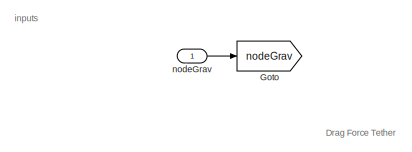
[diagram: node5  - part 1/3, top center region]
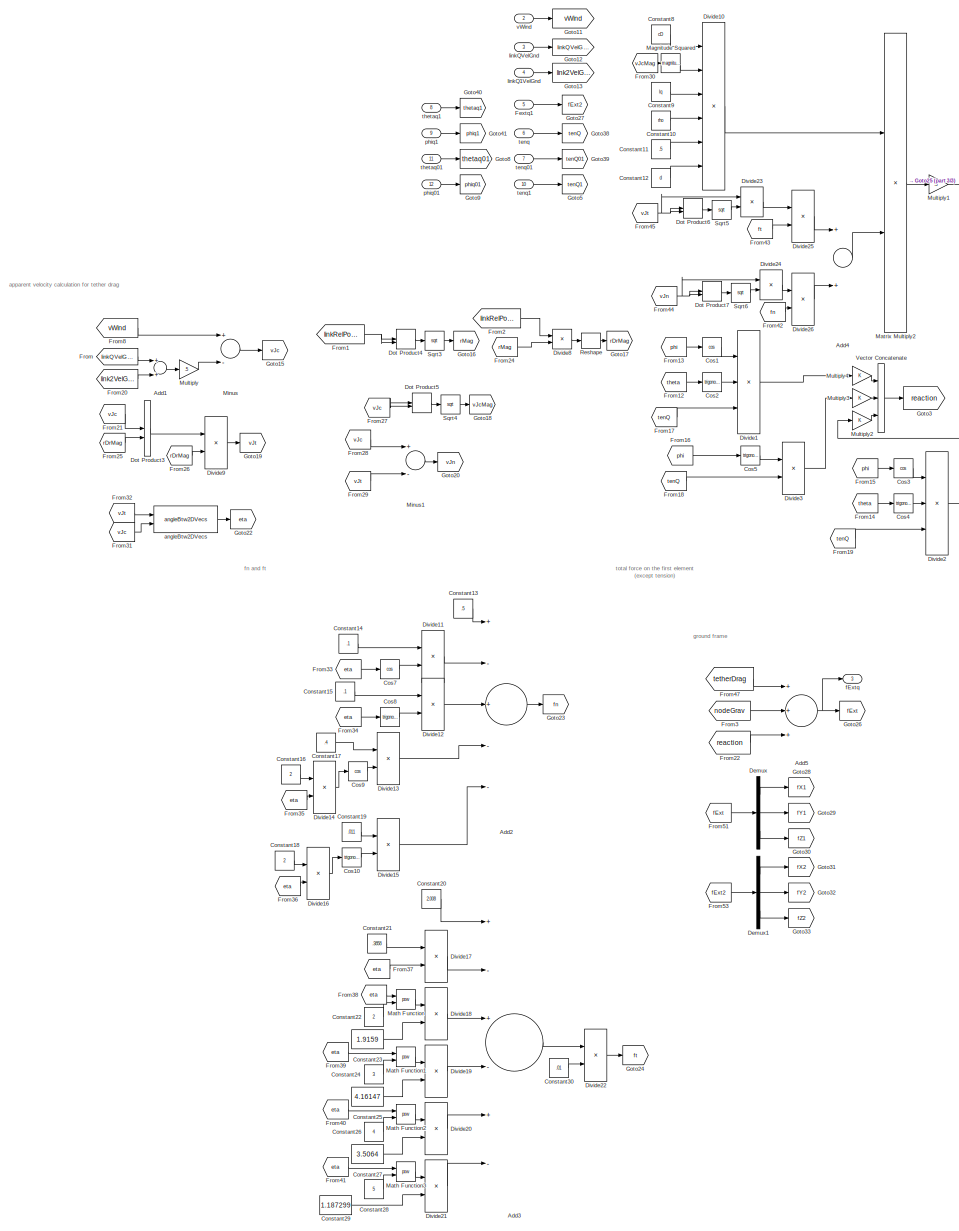
[diagram: node5  - part 2/3, left side, full height]
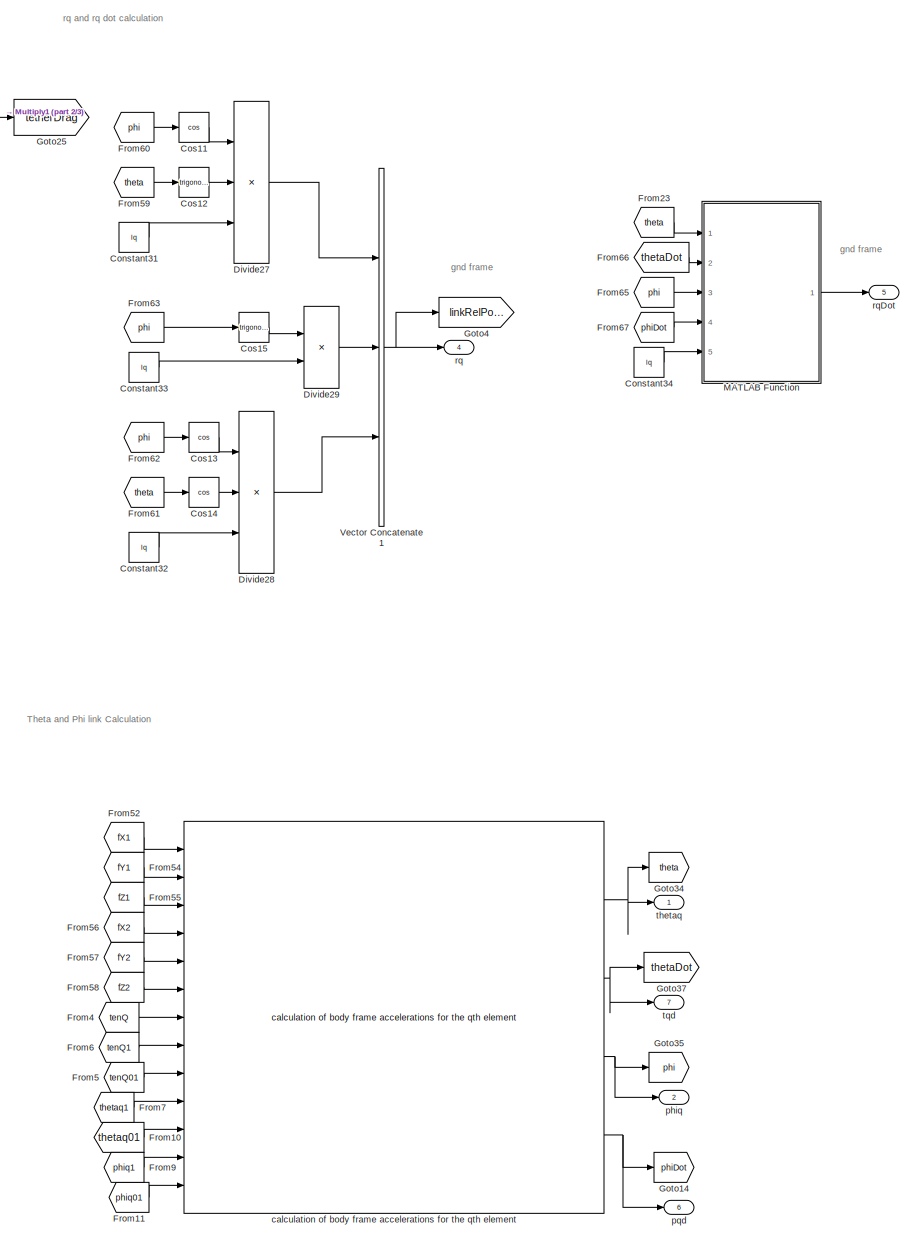
[diagram: node5  - part 3/3, middle right region]
BLOCK [SubSystem] node5 
  Ports = [12, 7]
  RequestExecContextInheritance = off
BLOCK [Sum] node5 /Add1
  InputSameDT = off
  OutDataTypeStr = Inherit: Inherit via internal rule
  Ports = [2, 1]
  SaturateOnIntegerOverflow = off
BLOCK [Sum] node5 /Add2
  InputSameDT = off
  Inputs = +-+--
  OutDataTypeStr = Inherit: Inherit via internal rule
  Ports = [5, 1]
  SaturateOnIntegerOverflow = off
BLOCK [Sum] node5 /Add3
  InputSameDT = off
  Inputs = +-+-+-
  OutDataTypeStr = Inherit: Inherit via internal rule
  Ports = [6, 1]
  SaturateOnIntegerOverflow = off
BLOCK [Sum] node5 /Add4
  InputSameDT = off
  OutDataTypeStr = Inherit: Inherit via internal rule
  Ports = [2, 1]
  SaturateOnIntegerOverflow = off
BLOCK [Sum] node5 /Add5
  InputSameDT = off
  Inputs = +++
  OutDataTypeStr = Inherit: Inherit via internal rule
  Ports = [3, 1]
  SaturateOnIntegerOverflow = off
BLOCK [Constant] node5 /Constant10
  Value = rho
BLOCK [Constant] node5 /Constant11
  Value = .5
BLOCK [Constant] node5 /Constant12
  Value = d
BLOCK [Constant] node5 /Constant13
  Value = .5
BLOCK [Constant] node5 /Constant14
  Value = .1
BLOCK [Constant] node5 /Constant15
  Value = .1
BLOCK [Constant] node5 /Constant16
  Value = 2
BLOCK [Constant] node5 /Constant17
  Value = .4
BLOCK [Constant] node5 /Constant18
  Value = 2
BLOCK [Constant] node5 /Constant19
  Value = .011
BLOCK [Constant] node5 /Constant20
  Value = 2.008
BLOCK [Constant] node5 /Constant21
  Value = .3858
BLOCK [Constant] node5 /Constant22
  Value = 2
BLOCK [Constant] node5 /Constant23
  Value = 1.9159
BLOCK [Constant] node5 /Constant24
  Value = 3
BLOCK [Constant] node5 /Constant25
  Value = 4.16147
BLOCK [Constant] node5 /Constant26
  Value = 4
BLOCK [Constant] node5 /Constant27
  Value = 3.5064
BLOCK [Constant] node5 /Constant28
  Value = 5
BLOCK [Constant] node5 /Constant29
  Value = 1.187299
BLOCK [Constant] node5 /Constant30
  Value = .01
BLOCK [Constant] node5 /Constant31
  Value = lq
BLOCK [Constant] node5 /Constant32
  Value = lq
BLOCK [Constant] node5 /Constant33
  Value = lq
BLOCK [Constant] node5 /Constant34
  Value = lq
BLOCK [Constant] node5 /Constant8
  Value = cD
BLOCK [Constant] node5 /Constant9
  Value = lq
BLOCK [Trigonometry] node5 /Cos1
  Operator = cos
  Ports = [1, 1]
BLOCK [Trigonometry] node5 /Cos10
  Ports = [1, 1]
BLOCK [Trigonometry] node5 /Cos11
  Operator = cos
  Ports = [1, 1]
BLOCK [Trigonometry] node5 /Cos12
  Ports = [1, 1]
BLOCK [Trigonometry] node5 /Cos13
  Operator = cos
  Ports = [1, 1]
BLOCK [Trigonometry] node5 /Cos14
  Operator = cos
  Ports = [1, 1]
BLOCK [Trigonometry] node5 /Cos15
  Ports = [1, 1]
BLOCK [Trigonometry] node5 /Cos2
  Ports = [1, 1]
BLOCK [Trigonometry] node5 /Cos3
  Operator = cos
  Ports = [1, 1]
BLOCK [Trigonometry] node5 /Cos4
  Ports = [1, 1]
BLOCK [Trigonometry] node5 /Cos5
  Ports = [1, 1]
BLOCK [Trigonometry] node5 /Cos7
  Operator = cos
  Ports = [1, 1]
BLOCK [Trigonometry] node5 /Cos8
  Ports = [1, 1]
BLOCK [Trigonometry] node5 /Cos9
  Operator = cos
  Ports = [1, 1]
BLOCK [Demux] node5 /Demux
  DisplayOption = bar
  Outputs = 3
  Ports = [1, 3]
BLOCK [Demux] node5 /Demux1
  DisplayOption = bar
  Outputs = 3
  Ports = [1, 3]
BLOCK [Product] node5 /Divide1
  InputSameDT = off
  Inputs = ***
  OutDataTypeStr = Inherit: Inherit via internal rule
  Ports = [3, 1]
  RndMeth = Floor
  SaturateOnIntegerOverflow = off
BLOCK [Product] node5 /Divide10
  InputSameDT = off
  Inputs = ******
  OutDataTypeStr = Inherit: Inherit via internal rule
  Ports = [6, 1]
  RndMeth = Floor
  SaturateOnIntegerOverflow = off
BLOCK [Product] node5 /Divide11
  InputSameDT = off
  Inputs = **
  OutDataTypeStr = Inherit: Inherit via internal rule
  Ports = [2, 1]
  RndMeth = Floor
  SaturateOnIntegerOverflow = off
BLOCK [Product] node5 /Divide12
  InputSameDT = off
  Inputs = **
  OutDataTypeStr = Inherit: Inherit via internal rule
  Ports = [2, 1]
  RndMeth = Floor
  SaturateOnIntegerOverflow = off
BLOCK [Product] node5 /Divide13
  InputSameDT = off
  Inputs = **
  OutDataTypeStr = Inherit: Inherit via internal rule
  Ports = [2, 1]
  RndMeth = Floor
  SaturateOnIntegerOverflow = off
BLOCK [Product] node5 /Divide14
  InputSameDT = off
  Inputs = **
  OutDataTypeStr = Inherit: Inherit via internal rule
  Ports = [2, 1]
  RndMeth = Floor
  SaturateOnIntegerOverflow = off
BLOCK [Product] node5 /Divide15
  InputSameDT = off
  Inputs = **
  OutDataTypeStr = Inherit: Inherit via internal rule
  Ports = [2, 1]
  RndMeth = Floor
  SaturateOnIntegerOverflow = off
BLOCK [Product] node5 /Divide16
  InputSameDT = off
  Inputs = **
  OutDataTypeStr = Inherit: Inherit via internal rule
  Ports = [2, 1]
  RndMeth = Floor
  SaturateOnIntegerOverflow = off
BLOCK [Product] node5 /Divide17
  InputSameDT = off
  Inputs = **
  OutDataTypeStr = Inherit: Inherit via internal rule
  Ports = [2, 1]
  RndMeth = Floor
  SaturateOnIntegerOverflow = off
BLOCK [Product] node5 /Divide18
  InputSameDT = off
  Inputs = **
  OutDataTypeStr = Inherit: Inherit via internal rule
  Ports = [2, 1]
  RndMeth = Floor
  SaturateOnIntegerOverflow = off
BLOCK [Product] node5 /Divide19
  InputSameDT = off
  Inputs = **
  OutDataTypeStr = Inherit: Inherit via internal rule
  Ports = [2, 1]
  RndMeth = Floor
  SaturateOnIntegerOverflow = off
BLOCK [Product] node5 /Divide2
  InputSameDT = off
  Inputs = ***
  OutDataTypeStr = Inherit: Inherit via internal rule
  Ports = [3, 1]
  RndMeth = Floor
  SaturateOnIntegerOverflow = off
BLOCK [Product] node5 /Divide20
  InputSameDT = off
  Inputs = **
  OutDataTypeStr = Inherit: Inherit via internal rule
  Ports = [2, 1]
  RndMeth = Floor
  SaturateOnIntegerOverflow = off
BLOCK [Product] node5 /Divide21
  InputSameDT = off
  Inputs = **
  OutDataTypeStr = Inherit: Inherit via internal rule
  Ports = [2, 1]
  RndMeth = Floor
  SaturateOnIntegerOverflow = off
BLOCK [Product] node5 /Divide22
  InputSameDT = off
  Inputs = **
  OutDataTypeStr = Inherit: Inherit via internal rule
  Ports = [2, 1]
  RndMeth = Floor
  SaturateOnIntegerOverflow = off
BLOCK [Product] node5 /Divide23
  InputSameDT = off
  Inputs = */
  OutDataTypeStr = Inherit: Inherit via internal rule
  Ports = [2, 1]
  RndMeth = Floor
  SaturateOnIntegerOverflow = off
BLOCK [Product] node5 /Divide24
  InputSameDT = off
  Inputs = */
  OutDataTypeStr = Inherit: Inherit via internal rule
  Ports = [2, 1]
  RndMeth = Floor
  SaturateOnIntegerOverflow = off
BLOCK [Product] node5 /Divide25
  InputSameDT = off
  Inputs = **
  OutDataTypeStr = Inherit: Inherit via internal rule
  Ports = [2, 1]
  RndMeth = Floor
  SaturateOnIntegerOverflow = off
BLOCK [Product] node5 /Divide26
  InputSameDT = off
  Inputs = **
  OutDataTypeStr = Inherit: Inherit via internal rule
  Ports = [2, 1]
  RndMeth = Floor
  SaturateOnIntegerOverflow = off
BLOCK [Product] node5 /Divide27
  InputSameDT = off
  Inputs = ***
  OutDataTypeStr = Inherit: Inherit via internal rule
  Ports = [3, 1]
  RndMeth = Floor
  SaturateOnIntegerOverflow = off
BLOCK [Product] node5 /Divide28
  InputSameDT = off
  Inputs = ***
  OutDataTypeStr = Inherit: Inherit via internal rule
  Ports = [3, 1]
  RndMeth = Floor
  SaturateOnIntegerOverflow = off
BLOCK [Product] node5 /Divide29
  InputSameDT = off
  Inputs = **
  OutDataTypeStr = Inherit: Inherit via internal rule
  Ports = [2, 1]
  RndMeth = Floor
  SaturateOnIntegerOverflow = off
BLOCK [Product] node5 /Divide3
  InputSameDT = off
  Inputs = **
  OutDataTypeStr = Inherit: Inherit via internal rule
  Ports = [2, 1]
  RndMeth = Floor
  SaturateOnIntegerOverflow = off
BLOCK [Product] node5 /Divide8
  InputSameDT = off
  Inputs = */
  OutDataTypeStr = Inherit: Inherit via internal rule
  Ports = [2, 1]
  RndMeth = Floor
  SaturateOnIntegerOverflow = off
BLOCK [Product] node5 /Divide9
  InputSameDT = off
  Inputs = **
  OutDataTypeStr = Inherit: Inherit via internal rule
  Ports = [2, 1]
  RndMeth = Floor
  SaturateOnIntegerOverflow = off
BLOCK [DotProduct] node5 /Dot Product3
  OutDataTypeStr = Inherit: Inherit via internal rule
BLOCK [DotProduct] node5 /Dot Product4
  OutDataTypeStr = Inherit: Inherit via internal rule
BLOCK [DotProduct] node5 /Dot Product5
  OutDataTypeStr = Inherit: Inherit via internal rule
BLOCK [DotProduct] node5 /Dot Product6
  OutDataTypeStr = Inherit: Inherit via internal rule
BLOCK [DotProduct] node5 /Dot Product7
  OutDataTypeStr = Inherit: Inherit via internal rule
BLOCK [Inport] node5 /Fextq1
  IconDisplay = Port number
  Port = 5
BLOCK [From] node5 /From
  GotoTag = linkQVelGnd
BLOCK [From] node5 /From1
  GotoTag = linkRelPosition
BLOCK [From] node5 /From10
  GotoTag = thetaq01
BLOCK [From] node5 /From11
  GotoTag = phiq01
BLOCK [From] node5 /From12
  GotoTag = theta
BLOCK [From] node5 /From13
  GotoTag = phi
BLOCK [From] node5 /From14
  GotoTag = theta
BLOCK [From] node5 /From15
  GotoTag = phi
BLOCK [From] node5 /From16
  GotoTag = phi
BLOCK [From] node5 /From17
  GotoTag = tenQ
BLOCK [From] node5 /From18
  GotoTag = tenQ
BLOCK [From] node5 /From19
  GotoTag = tenQ
BLOCK [From] node5 /From2
  GotoTag = linkRelPosition
BLOCK [From] node5 /From20
  GotoTag = link2VelGnd
BLOCK [From] node5 /From21
  GotoTag = vJc
BLOCK [From] node5 /From22
  GotoTag = reaction
BLOCK [From] node5 /From23
  GotoTag = theta
BLOCK [From] node5 /From24
  GotoTag = rMag
BLOCK [From] node5 /From25
  GotoTag = rDrMag
BLOCK [From] node5 /From26
  GotoTag = rDrMag
BLOCK [From] node5 /From27
  GotoTag = vJc
BLOCK [From] node5 /From28
  GotoTag = vJc
BLOCK [From] node5 /From29
  GotoTag = vJt
BLOCK [From] node5 /From3
  GotoTag = nodeGrav
BLOCK [From] node5 /From30
  GotoTag = vJcMag
BLOCK [From] node5 /From31
  GotoTag = vJc
BLOCK [From] node5 /From32
  GotoTag = vJt
BLOCK [From] node5 /From33
  GotoTag = eta
BLOCK [From] node5 /From34
  GotoTag = eta
BLOCK [From] node5 /From35
  GotoTag = eta
BLOCK [From] node5 /From36
  GotoTag = eta
BLOCK [From] node5 /From37
  GotoTag = eta
BLOCK [From] node5 /From38
  GotoTag = eta
BLOCK [From] node5 /From39
  GotoTag = eta
BLOCK [From] node5 /From4
  GotoTag = tenQ
BLOCK [From] node5 /From40
  GotoTag = eta
BLOCK [From] node5 /From41
  GotoTag = eta
BLOCK [From] node5 /From42
  GotoTag = fn
BLOCK [From] node5 /From43
  GotoTag = ft
BLOCK [From] node5 /From44
  GotoTag = vJn
BLOCK [From] node5 /From45
  GotoTag = vJt
BLOCK [From] node5 /From47
  GotoTag = tetherDrag
BLOCK [From] node5 /From5
  GotoTag = tenQ01
BLOCK [From] node5 /From51
  GotoTag = fExt
BLOCK [From] node5 /From52
  GotoTag = fX1
BLOCK [From] node5 /From53
  GotoTag = fExt2
BLOCK [From] node5 /From54
  GotoTag = fY1
BLOCK [From] node5 /From55
  GotoTag = fZ1
BLOCK [From] node5 /From56
  GotoTag = fX2
BLOCK [From] node5 /From57
  GotoTag = fY2
BLOCK [From] node5 /From58
  GotoTag = fZ2
BLOCK [From] node5 /From59
  GotoTag = theta
BLOCK [From] node5 /From6
  GotoTag = tenQ1
BLOCK [From] node5 /From60
  GotoTag = phi
BLOCK [From] node5 /From61
  GotoTag = theta
BLOCK [From] node5 /From62
  GotoTag = phi
BLOCK [From] node5 /From63
  GotoTag = phi
BLOCK [From] node5 /From65
  GotoTag = phi
BLOCK [From] node5 /From66
  GotoTag = thetaDot
BLOCK [From] node5 /From67
  GotoTag = phiDot
BLOCK [From] node5 /From7
  GotoTag = thetaq1
BLOCK [From] node5 /From8
  GotoTag = vWind
BLOCK [From] node5 /From9
  GotoTag = phiq1
BLOCK [Goto] node5 /Goto
  GotoTag = nodeGrav
BLOCK [Goto] node5 /Goto11
  GotoTag = vWind
BLOCK [Goto] node5 /Goto12
  GotoTag = linkQVelGnd
BLOCK [Goto] node5 /Goto13
  GotoTag = link2VelGnd
BLOCK [Goto] node5 /Goto14
  GotoTag = phiDot
BLOCK [Goto] node5 /Goto15
  GotoTag = vJc
BLOCK [Goto] node5 /Goto16
  GotoTag = rMag
BLOCK [Goto] node5 /Goto17
  GotoTag = rDrMag
BLOCK [Goto] node5 /Goto18
  GotoTag = vJcMag
BLOCK [Goto] node5 /Goto19
  GotoTag = vJt
BLOCK [Goto] node5 /Goto20
  GotoTag = vJn
BLOCK [Goto] node5 /Goto22
  GotoTag = eta
BLOCK [Goto] node5 /Goto23
  GotoTag = fn
BLOCK [Goto] node5 /Goto24
  GotoTag = ft
BLOCK [Goto] node5 /Goto25
  GotoTag = tetherDrag
BLOCK [Goto] node5 /Goto26
  GotoTag = fExt
BLOCK [Goto] node5 /Goto27
  GotoTag = fExt2
BLOCK [Goto] node5 /Goto28
  GotoTag = fX1
BLOCK [Goto] node5 /Goto29
  GotoTag = fY1
BLOCK [Goto] node5 /Goto3
  GotoTag = reaction
BLOCK [Goto] node5 /Goto30
  GotoTag = fZ1
BLOCK [Goto] node5 /Goto31
  GotoTag = fX2
BLOCK [Goto] node5 /Goto32
  GotoTag = fY2
BLOCK [Goto] node5 /Goto33
  GotoTag = fZ2
BLOCK [Goto] node5 /Goto34
  GotoTag = theta
BLOCK [Goto] node5 /Goto35
  GotoTag = phi
BLOCK [Goto] node5 /Goto37
  GotoTag = thetaDot
BLOCK [Goto] node5 /Goto38
  GotoTag = tenQ
BLOCK [Goto] node5 /Goto39
  GotoTag = tenQ01
BLOCK [Goto] node5 /Goto4
  GotoTag = linkRelPosition
BLOCK [Goto] node5 /Goto40
  GotoTag = thetaq1
BLOCK [Goto] node5 /Goto41
  GotoTag = phiq1
BLOCK [Goto] node5 /Goto5
  GotoTag = tenQ1
BLOCK [Goto] node5 /Goto8
  GotoTag = thetaq01
BLOCK [Goto] node5 /Goto9
  GotoTag = phiq01
BLOCK [SubSystem] node5 /MATLAB Function
  ErrorFcn = Stateflow.Translate.translate
  PermitHierarchicalResolution = ExplicitOnly
  Ports = [5, 1]
  RequestExecContextInheritance = off
  SFBlockType = MATLAB Function
  TreatAsAtomicUnit = on
BLOCK [Demux] node5 /MATLAB Function/ Demux 
  Outputs = 1
  Ports = [1, 1]
BLOCK [S-Function] node5 /MATLAB Function/ SFunction 
  EnableBusSupport = on
  FunctionName = sf_sfun
  PortCounts = [5 2]
  Ports = [5, 2]
  SFcnIsStateOwnerBlock = off
  SFunctionDeploymentMode = off
  Tag = Stateflow S-Function tetheredKiteModel 6
BLOCK [Terminator] node5 /MATLAB Function/ Terminator 
BLOCK [Inport] node5 /MATLAB Function/L
  IconDisplay = Port number
  Port = 5
BLOCK [Inport] node5 /MATLAB Function/phi
  IconDisplay = Port number
  Port = 3
BLOCK [Inport] node5 /MATLAB Function/phiDot
  IconDisplay = Port number
  Port = 4
BLOCK [Outport] node5 /MATLAB Function/r1Dot
  IconDisplay = Port number
BLOCK [Inport] node5 /MATLAB Function/theta
  IconDisplay = Port number
BLOCK [Inport] node5 /MATLAB Function/thetaDot
  IconDisplay = Port number
  Port = 2
BLOCK [Math] node5 /Magnitude Squared
  Operator = magnitude^2
  Ports = [1, 1]
BLOCK [Math] node5 /Math Function
  Operator = pow
  Ports = [2, 1]
BLOCK [Math] node5 /Math Function1
  Operator = pow
  Ports = [2, 1]
BLOCK [Math] node5 /Math Function2
  Operator = pow
  Ports = [2, 1]
BLOCK [Math] node5 /Math Function3
  Operator = pow
  Ports = [2, 1]
BLOCK [Product] node5 /Matrix Multiply2
  InputSameDT = off
  OutDataTypeStr = Inherit: Inherit via internal rule
  Ports = [2, 1]
  RndMeth = Floor
  SaturateOnIntegerOverflow = off
BLOCK [Sum] node5 /Minus
  InputSameDT = off
  Inputs = +-
  OutDataTypeStr = Inherit: Inherit via internal rule
  Ports = [2, 1]
  SaturateOnIntegerOverflow = off
BLOCK [Sum] node5 /Minus1
  InputSameDT = off
  Inputs = +-
  OutDataTypeStr = Inherit: Inherit via internal rule
  Ports = [2, 1]
  SaturateOnIntegerOverflow = off
BLOCK [Gain] node5 /Multiply
  Gain = .5
  OutDataTypeStr = Inherit: Inherit via internal rule
  ParamDataTypeStr = Inherit: Inherit via internal rule
  SaturateOnIntegerOverflow = off
BLOCK [Gain] node5 /Multiply1
  Gain = .5
  OutDataTypeStr = Inherit: Inherit via internal rule
  ParamDataTypeStr = Inherit: Inherit via internal rule
  SaturateOnIntegerOverflow = off
BLOCK [Gain] node5 /Multiply2
  OutDataTypeStr = Inherit: Inherit via internal rule
  ParamDataTypeStr = Inherit: Inherit via internal rule
  SaturateOnIntegerOverflow = off
BLOCK [Gain] node5 /Multiply3
  OutDataTypeStr = Inherit: Inherit via internal rule
  ParamDataTypeStr = Inherit: Inherit via internal rule
  SaturateOnIntegerOverflow = off
BLOCK [Gain] node5 /Multiply4
  OutDataTypeStr = Inherit: Inherit via internal rule
  ParamDataTypeStr = Inherit: Inherit via internal rule
  SaturateOnIntegerOverflow = off
BLOCK [Reshape] node5 /Reshape
  OutputDimensionality = Column vector (2-D)
  Ports = [1, 1]
BLOCK [Sqrt] node5 /Sqrt3
BLOCK [Sqrt] node5 /Sqrt4
BLOCK [Sqrt] node5 /Sqrt5
BLOCK [Sqrt] node5 /Sqrt6
BLOCK [Concatenate] node5 /Vector Concatenate
  NumInputs = 3
  Ports = [3, 1]
BLOCK [Concatenate] node5 /Vector Concatenate1
  NumInputs = 3
  Ports = [3, 1]
BLOCK [Reference] node5 /angleBtw2DVecs  REF=angleBtw2Vecs_ul/angleBtw2DVecs
  Ports = [2, 1]
  SourceBlock = angleBtw2Vecs_ul/angleBtw2DVecs
  SourceType = SubSystem
BLOCK [Reference] node5 /calculation of body frame accelerations for the qth element  REF=accelerationCalculator_ul/calculation of body frame accelerations for the qth element
  Ports = [13, 4]
  SourceBlock = accelerationCalculator_ul/calculation of body frame accelerations for the qth element
BLOCK [Outport] node5 /fExtq
  IconDisplay = Port number
  Port = 3
BLOCK [Inport] node5 /linkQ1VelGnd
  IconDisplay = Port number
  Port = 4
BLOCK [Inport] node5 /linkQVelGnd 
  IconDisplay = Port number
  Port = 3
BLOCK [Inport] node5 /nodeGrav
  IconDisplay = Port number
BLOCK [Outport] node5 /phiq
  IconDisplay = Port number
  Port = 2
BLOCK [Inport] node5 /phiq01
  IconDisplay = Port number
  Port = 12
BLOCK [Inport] node5 /phiq1
  IconDisplay = Port number
  Port = 9
BLOCK [Outport] node5 /pqd
  IconDisplay = Port number
  Port = 6
BLOCK [Outport] node5 /rq 
  IconDisplay = Port number
  Port = 4
BLOCK [Outport] node5 /rqDot
  IconDisplay = Port number
  Port = 5
BLOCK [Inport] node5 /tenq 
  IconDisplay = Port number
  Port = 6
BLOCK [Inport] node5 /tenq01
  IconDisplay = Port number
  Port = 7
BLOCK [Inport] node5 /tenq1
  IconDisplay = Port number
  Port = 10
BLOCK [Outport] node5 /thetaq
  IconDisplay = Port number
BLOCK [Inport] node5 /thetaq01
  IconDisplay = Port number
  Port = 11
BLOCK [Inport] node5 /thetaq1 
  IconDisplay = Port number
  Port = 8
BLOCK [Outport] node5 /tqd
  IconDisplay = Port number
  Port = 7
BLOCK [Inport] node5 /vWind
  IconDisplay = Port number
  Port = 2
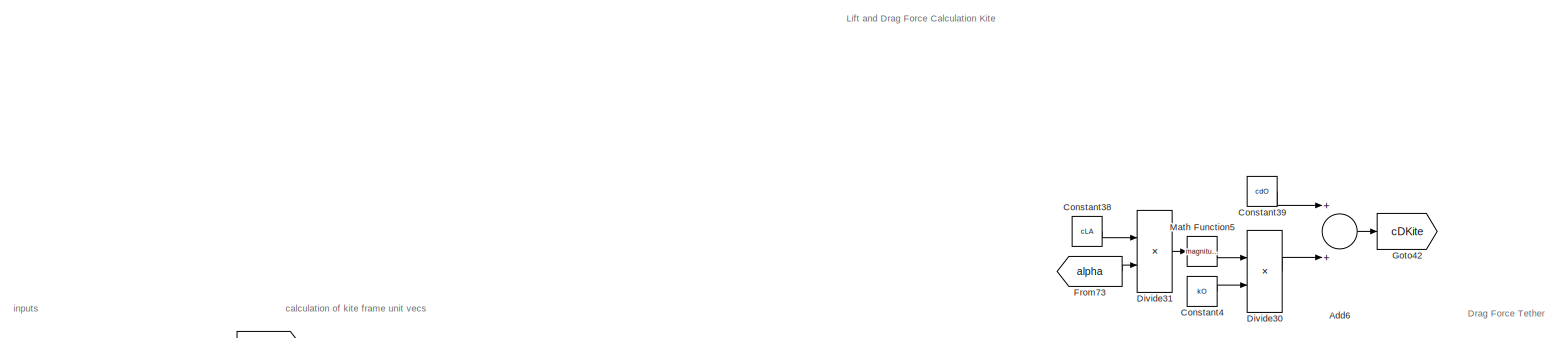
[diagram: tether node one (kite end of the tether)  - part 1/6, top left region]
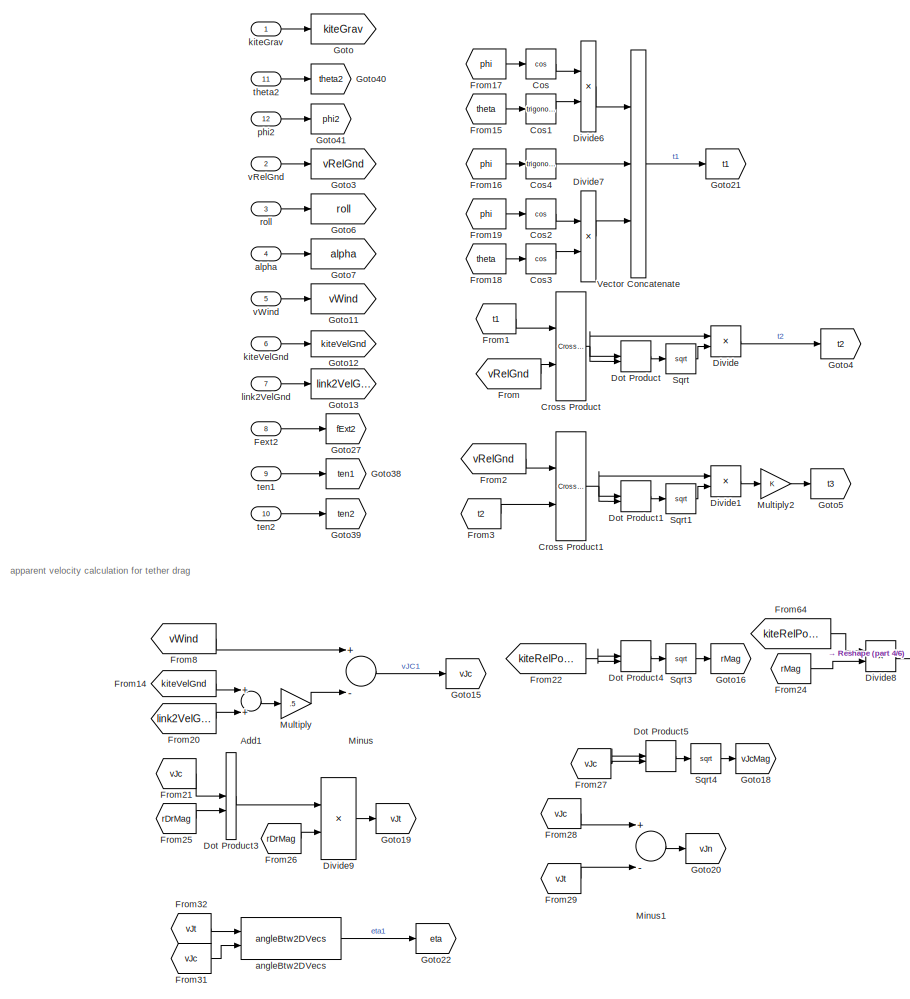
[diagram: tether node one (kite end of the tether)  - part 2/6, middle left region]
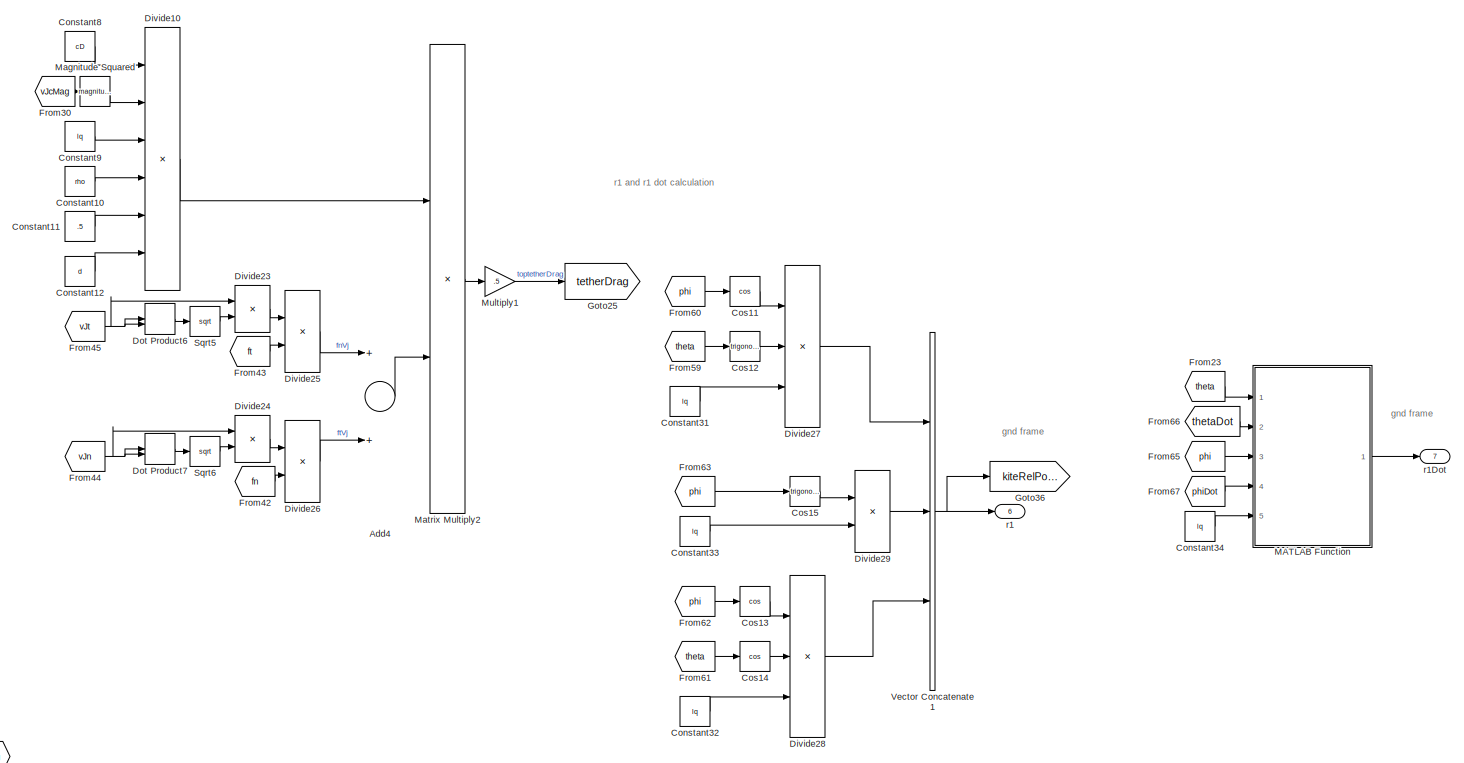
[diagram: tether node one (kite end of the tether)  - part 3/6, top right region]
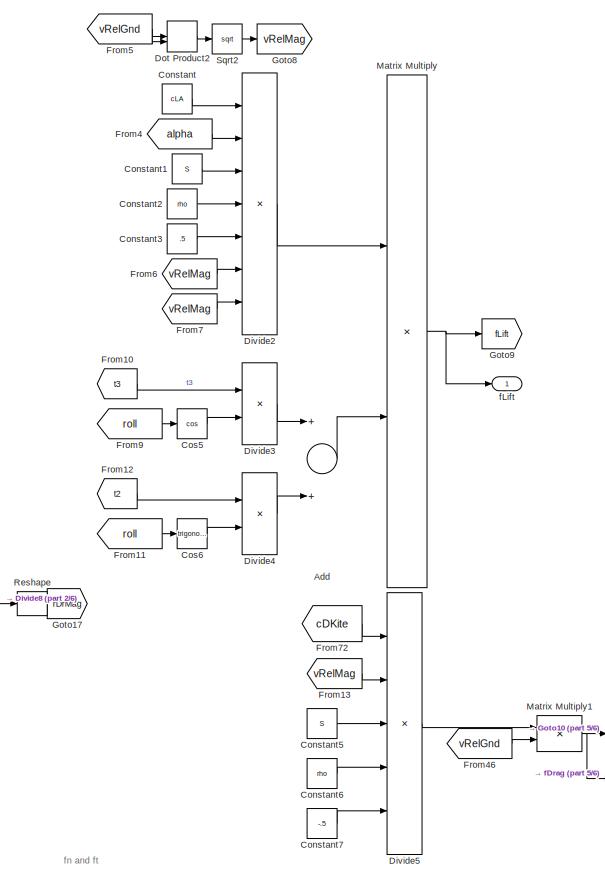
[diagram: tether node one (kite end of the tether)  - part 4/6, central region]
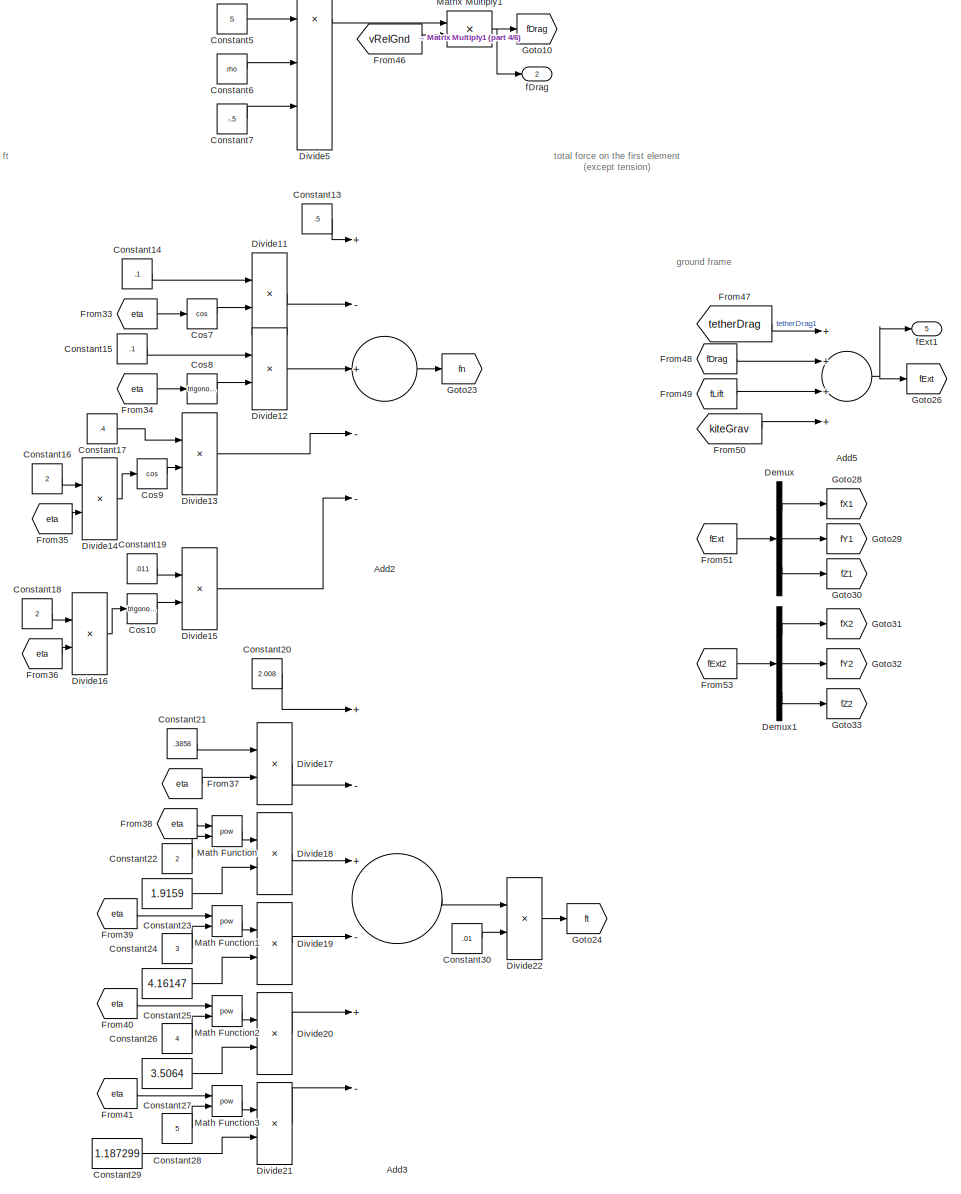
[diagram: tether node one (kite end of the tether)  - part 5/6, bottom center region]
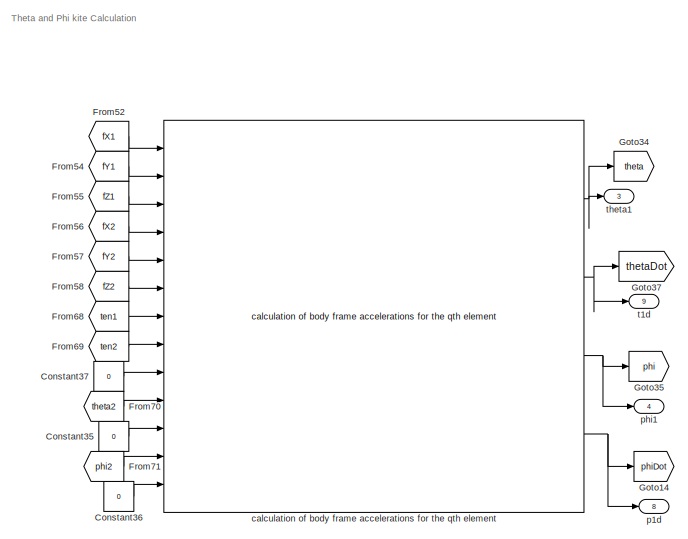
[diagram: tether node one (kite end of the tether)  - part 6/6, middle right region]
BLOCK [SubSystem] tether node one (kite end of the tether) 
  Ports = [12, 9]
  RequestExecContextInheritance = off
BLOCK [Sum] tether node one (kite end of the tether) /Add
  InputSameDT = off
  OutDataTypeStr = Inherit: Inherit via internal rule
  Ports = [2, 1]
  SaturateOnIntegerOverflow = off
BLOCK [Sum] tether node one (kite end of the tether) /Add1
  InputSameDT = off
  OutDataTypeStr = Inherit: Inherit via internal rule
  Ports = [2, 1]
  SaturateOnIntegerOverflow = off
BLOCK [Sum] tether node one (kite end of the tether) /Add2
  InputSameDT = off
  Inputs = +-+--
  OutDataTypeStr = Inherit: Inherit via internal rule
  Ports = [5, 1]
  SaturateOnIntegerOverflow = off
BLOCK [Sum] tether node one (kite end of the tether) /Add3
  InputSameDT = off
  Inputs = +-+-+-
  OutDataTypeStr = Inherit: Inherit via internal rule
  Ports = [6, 1]
  SaturateOnIntegerOverflow = off
BLOCK [Sum] tether node one (kite end of the tether) /Add4
  InputSameDT = off
  OutDataTypeStr = Inherit: Inherit via internal rule
  Ports = [2, 1]
  SaturateOnIntegerOverflow = off
BLOCK [Sum] tether node one (kite end of the tether) /Add5
  InputSameDT = off
  Inputs = ++++
  OutDataTypeStr = Inherit: Inherit via internal rule
  Ports = [4, 1]
  SaturateOnIntegerOverflow = off
BLOCK [Sum] tether node one (kite end of the tether) /Add6
  InputSameDT = off
  OutDataTypeStr = Inherit: Inherit via internal rule
  Ports = [2, 1]
  SaturateOnIntegerOverflow = off
BLOCK [Constant] tether node one (kite end of the tether) /Constant
  Value = cLA
BLOCK [Constant] tether node one (kite end of the tether) /Constant1
  Value = S
BLOCK [Constant] tether node one (kite end of the tether) /Constant10
  Value = rho
BLOCK [Constant] tether node one (kite end of the tether) /Constant11
  Value = .5
BLOCK [Constant] tether node one (kite end of the tether) /Constant12
  Value = d
BLOCK [Constant] tether node one (kite end of the tether) /Constant13
  Value = .5
BLOCK [Constant] tether node one (kite end of the tether) /Constant14
  Value = .1
BLOCK [Constant] tether node one (kite end of the tether) /Constant15
  Value = .1
BLOCK [Constant] tether node one (kite end of the tether) /Constant16
  Value = 2
BLOCK [Constant] tether node one (kite end of the tether) /Constant17
  Value = .4
BLOCK [Constant] tether node one (kite end of the tether) /Constant18
  Value = 2
BLOCK [Constant] tether node one (kite end of the tether) /Constant19
  Value = .011
BLOCK [Constant] tether node one (kite end of the tether) /Constant2
  Value = rho
BLOCK [Constant] tether node one (kite end of the tether) /Constant20
  Value = 2.008
BLOCK [Constant] tether node one (kite end of the tether) /Constant21
  Value = .3858
BLOCK [Constant] tether node one (kite end of the tether) /Constant22
  Value = 2
BLOCK [Constant] tether node one (kite end of the tether) /Constant23
  Value = 1.9159
BLOCK [Constant] tether node one (kite end of the tether) /Constant24
  Value = 3
BLOCK [Constant] tether node one (kite end of the tether) /Constant25
  Value = 4.16147
BLOCK [Constant] tether node one (kite end of the tether) /Constant26
  Value = 4
BLOCK [Constant] tether node one (kite end of the tether) /Constant27
  Value = 3.5064
BLOCK [Constant] tether node one (kite end of the tether) /Constant28
  Value = 5
BLOCK [Constant] tether node one (kite end of the tether) /Constant29
  Value = 1.187299
BLOCK [Constant] tether node one (kite end of the tether) /Constant3
  Value = .5
BLOCK [Constant] tether node one (kite end of the tether) /Constant30
  Value = .01
BLOCK [Constant] tether node one (kite end of the tether) /Constant31
  Value = lq
BLOCK [Constant] tether node one (kite end of the tether) /Constant32
  Value = lq
BLOCK [Constant] tether node one (kite end of the tether) /Constant33
  Value = lq
BLOCK [Constant] tether node one (kite end of the tether) /Constant34
  Value = lq
BLOCK [Constant] tether node one (kite end of the tether) /Constant35
  Value = 0
BLOCK [Constant] tether node one (kite end of the tether) /Constant36
  Value = 0
BLOCK [Constant] tether node one (kite end of the tether) /Constant37
  Value = 0
BLOCK [Constant] tether node one (kite end of the tether) /Constant38
  Value = cLA
BLOCK [Constant] tether node one (kite end of the tether) /Constant39
  Value = cdO
BLOCK [Constant] tether node one (kite end of the tether) /Constant4
  Value = kO
BLOCK [Constant] tether node one (kite end of the tether) /Constant5
  Value = S
BLOCK [Constant] tether node one (kite end of the tether) /Constant6
  Value = rho
BLOCK [Constant] tether node one (kite end of the tether) /Constant7
  Value = -.5
BLOCK [Constant] tether node one (kite end of the tether) /Constant8
  Value = cD
BLOCK [Constant] tether node one (kite end of the tether) /Constant9
  Value = lq
BLOCK [Trigonometry] tether node one (kite end of the tether) /Cos
  Operator = cos
  Ports = [1, 1]
BLOCK [Trigonometry] tether node one (kite end of the tether) /Cos1
  Ports = [1, 1]
BLOCK [Trigonometry] tether node one (kite end of the tether) /Cos10
  Ports = [1, 1]
BLOCK [Trigonometry] tether node one (kite end of the tether) /Cos11
  Operator = cos
  Ports = [1, 1]
BLOCK [Trigonometry] tether node one (kite end of the tether) /Cos12
  Ports = [1, 1]
BLOCK [Trigonometry] tether node one (kite end of the tether) /Cos13
  Operator = cos
  Ports = [1, 1]
BLOCK [Trigonometry] tether node one (kite end of the tether) /Cos14
  Operator = cos
  Ports = [1, 1]
BLOCK [Trigonometry] tether node one (kite end of the tether) /Cos15
  Ports = [1, 1]
BLOCK [Trigonometry] tether node one (kite end of the tether) /Cos2
  Operator = cos
  Ports = [1, 1]
BLOCK [Trigonometry] tether node one (kite end of the tether) /Cos3
  Operator = cos
  Ports = [1, 1]
BLOCK [Trigonometry] tether node one (kite end of the tether) /Cos4
  Ports = [1, 1]
BLOCK [Trigonometry] tether node one (kite end of the tether) /Cos5
  Operator = cos
  Ports = [1, 1]
BLOCK [Trigonometry] tether node one (kite end of the tether) /Cos6
  Ports = [1, 1]
BLOCK [Trigonometry] tether node one (kite end of the tether) /Cos7
  Operator = cos
  Ports = [1, 1]
BLOCK [Trigonometry] tether node one (kite end of the tether) /Cos8
  Ports = [1, 1]
BLOCK [Trigonometry] tether node one (kite end of the tether) /Cos9
  Operator = cos
  Ports = [1, 1]
BLOCK [Reference] tether node one (kite end of the tether) /Cross Product  REF=vrlib/Utilities/Cross Product
  Ports = [2, 1]
  SourceBlock = vrlib/Utilities/Cross Product
  SourceProductBaseCode = SL
  SourceProductName = Simulink
  SourceType = Cross Product
BLOCK [Reference] tether node one (kite end of the tether) /Cross Product1  REF=vrlib/Utilities/Cross Product
  Ports = [2, 1]
  SourceBlock = vrlib/Utilities/Cross Product
  SourceProductBaseCode = SL
  SourceProductName = Simulink
  SourceType = Cross Product
BLOCK [Demux] tether node one (kite end of the tether) /Demux
  DisplayOption = bar
  Outputs = 3
  Ports = [1, 3]
BLOCK [Demux] tether node one (kite end of the tether) /Demux1
  DisplayOption = bar
  Outputs = 3
  Ports = [1, 3]
BLOCK [Product] tether node one (kite end of the tether) /Divide
  InputSameDT = off
  Inputs = */
  OutDataTypeStr = Inherit: Inherit via internal rule
  Ports = [2, 1]
  RndMeth = Floor
  SaturateOnIntegerOverflow = off
BLOCK [Product] tether node one (kite end of the tether) /Divide1
  InputSameDT = off
  Inputs = */
  OutDataTypeStr = Inherit: Inherit via internal rule
  Ports = [2, 1]
  RndMeth = Floor
  SaturateOnIntegerOverflow = off
BLOCK [Product] tether node one (kite end of the tether) /Divide10
  InputSameDT = off
  Inputs = ******
  OutDataTypeStr = Inherit: Inherit via internal rule
  Ports = [6, 1]
  RndMeth = Floor
  SaturateOnIntegerOverflow = off
BLOCK [Product] tether node one (kite end of the tether) /Divide11
  InputSameDT = off
  Inputs = **
  OutDataTypeStr = Inherit: Inherit via internal rule
  Ports = [2, 1]
  RndMeth = Floor
  SaturateOnIntegerOverflow = off
BLOCK [Product] tether node one (kite end of the tether) /Divide12
  InputSameDT = off
  Inputs = **
  OutDataTypeStr = Inherit: Inherit via internal rule
  Ports = [2, 1]
  RndMeth = Floor
  SaturateOnIntegerOverflow = off
BLOCK [Product] tether node one (kite end of the tether) /Divide13
  InputSameDT = off
  Inputs = **
  OutDataTypeStr = Inherit: Inherit via internal rule
  Ports = [2, 1]
  RndMeth = Floor
  SaturateOnIntegerOverflow = off
BLOCK [Product] tether node one (kite end of the tether) /Divide14
  InputSameDT = off
  Inputs = **
  OutDataTypeStr = Inherit: Inherit via internal rule
  Ports = [2, 1]
  RndMeth = Floor
  SaturateOnIntegerOverflow = off
BLOCK [Product] tether node one (kite end of the tether) /Divide15
  InputSameDT = off
  Inputs = **
  OutDataTypeStr = Inherit: Inherit via internal rule
  Ports = [2, 1]
  RndMeth = Floor
  SaturateOnIntegerOverflow = off
BLOCK [Product] tether node one (kite end of the tether) /Divide16
  InputSameDT = off
  Inputs = **
  OutDataTypeStr = Inherit: Inherit via internal rule
  Ports = [2, 1]
  RndMeth = Floor
  SaturateOnIntegerOverflow = off
BLOCK [Product] tether node one (kite end of the tether) /Divide17
  InputSameDT = off
  Inputs = **
  OutDataTypeStr = Inherit: Inherit via internal rule
  Ports = [2, 1]
  RndMeth = Floor
  SaturateOnIntegerOverflow = off
BLOCK [Product] tether node one (kite end of the tether) /Divide18
  InputSameDT = off
  Inputs = **
  OutDataTypeStr = Inherit: Inherit via internal rule
  Ports = [2, 1]
  RndMeth = Floor
  SaturateOnIntegerOverflow = off
BLOCK [Product] tether node one (kite end of the tether) /Divide19
  InputSameDT = off
  Inputs = **
  OutDataTypeStr = Inherit: Inherit via internal rule
  Ports = [2, 1]
  RndMeth = Floor
  SaturateOnIntegerOverflow = off
BLOCK [Product] tether node one (kite end of the tether) /Divide2
  InputSameDT = off
  Inputs = *******
  OutDataTypeStr = Inherit: Inherit via internal rule
  Ports = [7, 1]
  RndMeth = Floor
  SaturateOnIntegerOverflow = off
BLOCK [Product] tether node one (kite end of the tether) /Divide20
  InputSameDT = off
  Inputs = **
  OutDataTypeStr = Inherit: Inherit via internal rule
  Ports = [2, 1]
  RndMeth = Floor
  SaturateOnIntegerOverflow = off
BLOCK [Product] tether node one (kite end of the tether) /Divide21
  InputSameDT = off
  Inputs = **
  OutDataTypeStr = Inherit: Inherit via internal rule
  Ports = [2, 1]
  RndMeth = Floor
  SaturateOnIntegerOverflow = off
BLOCK [Product] tether node one (kite end of the tether) /Divide22
  InputSameDT = off
  Inputs = **
  OutDataTypeStr = Inherit: Inherit via internal rule
  Ports = [2, 1]
  RndMeth = Floor
  SaturateOnIntegerOverflow = off
BLOCK [Product] tether node one (kite end of the tether) /Divide23
  InputSameDT = off
  Inputs = */
  OutDataTypeStr = Inherit: Inherit via internal rule
  Ports = [2, 1]
  RndMeth = Floor
  SaturateOnIntegerOverflow = off
BLOCK [Product] tether node one (kite end of the tether) /Divide24
  InputSameDT = off
  Inputs = */
  OutDataTypeStr = Inherit: Inherit via internal rule
  Ports = [2, 1]
  RndMeth = Floor
  SaturateOnIntegerOverflow = off
BLOCK [Product] tether node one (kite end of the tether) /Divide25
  InputSameDT = off
  Inputs = **
  OutDataTypeStr = Inherit: Inherit via internal rule
  Ports = [2, 1]
  RndMeth = Floor
  SaturateOnIntegerOverflow = off
BLOCK [Product] tether node one (kite end of the tether) /Divide26
  InputSameDT = off
  Inputs = **
  OutDataTypeStr = Inherit: Inherit via internal rule
  Ports = [2, 1]
  RndMeth = Floor
  SaturateOnIntegerOverflow = off
BLOCK [Product] tether node one (kite end of the tether) /Divide27
  InputSameDT = off
  Inputs = ***
  OutDataTypeStr = Inherit: Inherit via internal rule
  Ports = [3, 1]
  RndMeth = Floor
  SaturateOnIntegerOverflow = off
BLOCK [Product] tether node one (kite end of the tether) /Divide28
  InputSameDT = off
  Inputs = ***
  OutDataTypeStr = Inherit: Inherit via internal rule
  Ports = [3, 1]
  RndMeth = Floor
  SaturateOnIntegerOverflow = off
BLOCK [Product] tether node one (kite end of the tether) /Divide29
  InputSameDT = off
  Inputs = **
  OutDataTypeStr = Inherit: Inherit via internal rule
  Ports = [2, 1]
  RndMeth = Floor
  SaturateOnIntegerOverflow = off
BLOCK [Product] tether node one (kite end of the tether) /Divide3
  InputSameDT = off
  Inputs = **
  OutDataTypeStr = Inherit: Inherit via internal rule
  Ports = [2, 1]
  RndMeth = Floor
  SaturateOnIntegerOverflow = off
BLOCK [Product] tether node one (kite end of the tether) /Divide30
  InputSameDT = off
  Inputs = **
  OutDataTypeStr = Inherit: Inherit via internal rule
  Ports = [2, 1]
  RndMeth = Floor
  SaturateOnIntegerOverflow = off
BLOCK [Product] tether node one (kite end of the tether) /Divide31
  InputSameDT = off
  Inputs = **
  OutDataTypeStr = Inherit: Inherit via internal rule
  Ports = [2, 1]
  RndMeth = Floor
  SaturateOnIntegerOverflow = off
BLOCK [Product] tether node one (kite end of the tether) /Divide4
  InputSameDT = off
  Inputs = **
  OutDataTypeStr = Inherit: Inherit via internal rule
  Ports = [2, 1]
  RndMeth = Floor
  SaturateOnIntegerOverflow = off
BLOCK [Product] tether node one (kite end of the tether) /Divide5
  InputSameDT = off
  Inputs = *****
  OutDataTypeStr = Inherit: Inherit via internal rule
  Ports = [5, 1]
  RndMeth = Floor
  SaturateOnIntegerOverflow = off
BLOCK [Product] tether node one (kite end of the tether) /Divide6
  InputSameDT = off
  Inputs = **
  OutDataTypeStr = Inherit: Inherit via internal rule
  Ports = [2, 1]
  RndMeth = Floor
  SaturateOnIntegerOverflow = off
BLOCK [Product] tether node one (kite end of the tether) /Divide7
  InputSameDT = off
  Inputs = **
  OutDataTypeStr = Inherit: Inherit via internal rule
  Ports = [2, 1]
  RndMeth = Floor
  SaturateOnIntegerOverflow = off
BLOCK [Product] tether node one (kite end of the tether) /Divide8
  InputSameDT = off
  Inputs = */
  OutDataTypeStr = Inherit: Inherit via internal rule
  Ports = [2, 1]
  RndMeth = Floor
  SaturateOnIntegerOverflow = off
BLOCK [Product] tether node one (kite end of the tether) /Divide9
  InputSameDT = off
  Inputs = **
  OutDataTypeStr = Inherit: Inherit via internal rule
  Ports = [2, 1]
  RndMeth = Floor
  SaturateOnIntegerOverflow = off
BLOCK [DotProduct] tether node one (kite end of the tether) /Dot Product
  OutDataTypeStr = Inherit: Inherit via internal rule
BLOCK [DotProduct] tether node one (kite end of the tether) /Dot Product1
  OutDataTypeStr = Inherit: Inherit via internal rule
BLOCK [DotProduct] tether node one (kite end of the tether) /Dot Product2
  OutDataTypeStr = Inherit: Inherit via internal rule
BLOCK [DotProduct] tether node one (kite end of the tether) /Dot Product3
  OutDataTypeStr = Inherit: Inherit via internal rule
BLOCK [DotProduct] tether node one (kite end of the tether) /Dot Product4
  OutDataTypeStr = Inherit: Inherit via internal rule
BLOCK [DotProduct] tether node one (kite end of the tether) /Dot Product5
  OutDataTypeStr = Inherit: Inherit via internal rule
BLOCK [DotProduct] tether node one (kite end of the tether) /Dot Product6
  OutDataTypeStr = Inherit: Inherit via internal rule
BLOCK [DotProduct] tether node one (kite end of the tether) /Dot Product7
  OutDataTypeStr = Inherit: Inherit via internal rule
BLOCK [Inport] tether node one (kite end of the tether) /Fext2
  IconDisplay = Port number
  Port = 8
BLOCK [From] tether node one (kite end of the tether) /From
  GotoTag = vRelGnd
BLOCK [From] tether node one (kite end of the tether) /From1
  GotoTag = t1
BLOCK [From] tether node one (kite end of the tether) /From10
  GotoTag = t3
BLOCK [From] tether node one (kite end of the tether) /From11
  GotoTag = roll
BLOCK [From] tether node one (kite end of the tether) /From12
  GotoTag = t2
BLOCK [From] tether node one (kite end of the tether) /From13
  GotoTag = vRelMag
BLOCK [From] tether node one (kite end of the tether) /From14
  GotoTag = kiteVelGnd
BLOCK [From] tether node one (kite end of the tether) /From15
  GotoTag = theta
BLOCK [From] tether node one (kite end of the tether) /From16
  GotoTag = phi
BLOCK [From] tether node one (kite end of the tether) /From17
  GotoTag = phi
BLOCK [From] tether node one (kite end of the tether) /From18
  GotoTag = theta
BLOCK [From] tether node one (kite end of the tether) /From19
  GotoTag = phi
BLOCK [From] tether node one (kite end of the tether) /From2
  GotoTag = vRelGnd
BLOCK [From] tether node one (kite end of the tether) /From20
  GotoTag = link2VelGnd
BLOCK [From] tether node one (kite end of the tether) /From21
  GotoTag = vJc
BLOCK [From] tether node one (kite end of the tether) /From22
  GotoTag = kiteRelPosition
BLOCK [From] tether node one (kite end of the tether) /From23
  GotoTag = theta
BLOCK [From] tether node one (kite end of the tether) /From24
  GotoTag = rMag
BLOCK [From] tether node one (kite end of the tether) /From25
  GotoTag = rDrMag
BLOCK [From] tether node one (kite end of the tether) /From26
  GotoTag = rDrMag
BLOCK [From] tether node one (kite end of the tether) /From27
  GotoTag = vJc
BLOCK [From] tether node one (kite end of the tether) /From28
  GotoTag = vJc
BLOCK [From] tether node one (kite end of the tether) /From29
  GotoTag = vJt
BLOCK [From] tether node one (kite end of the tether) /From3
  GotoTag = t2
BLOCK [From] tether node one (kite end of the tether) /From30
  GotoTag = vJcMag
BLOCK [From] tether node one (kite end of the tether) /From31
  GotoTag = vJc
BLOCK [From] tether node one (kite end of the tether) /From32
  GotoTag = vJt
BLOCK [From] tether node one (kite end of the tether) /From33
  GotoTag = eta
BLOCK [From] tether node one (kite end of the tether) /From34
  GotoTag = eta
BLOCK [From] tether node one (kite end of the tether) /From35
  GotoTag = eta
BLOCK [From] tether node one (kite end of the tether) /From36
  GotoTag = eta
BLOCK [From] tether node one (kite end of the tether) /From37
  GotoTag = eta
BLOCK [From] tether node one (kite end of the tether) /From38
  GotoTag = eta
BLOCK [From] tether node one (kite end of the tether) /From39
  GotoTag = eta
BLOCK [From] tether node one (kite end of the tether) /From4
  GotoTag = alpha
BLOCK [From] tether node one (kite end of the tether) /From40
  GotoTag = eta
BLOCK [From] tether node one (kite end of the tether) /From41
  GotoTag = eta
BLOCK [From] tether node one (kite end of the tether) /From42
  GotoTag = fn
BLOCK [From] tether node one (kite end of the tether) /From43
  GotoTag = ft
BLOCK [From] tether node one (kite end of the tether) /From44
  GotoTag = vJn
BLOCK [From] tether node one (kite end of the tether) /From45
  GotoTag = vJt
BLOCK [From] tether node one (kite end of the tether) /From46
  GotoTag = vRelGnd
BLOCK [From] tether node one (kite end of the tether) /From47
  GotoTag = tetherDrag
BLOCK [From] tether node one (kite end of the tether) /From48
  GotoTag = fDrag
BLOCK [From] tether node one (kite end of the tether) /From49
  GotoTag = fLift
BLOCK [From] tether node one (kite end of the tether) /From5
  GotoTag = vRelGnd
BLOCK [From] tether node one (kite end of the tether) /From50
  GotoTag = kiteGrav
BLOCK [From] tether node one (kite end of the tether) /From51
  GotoTag = fExt
BLOCK [From] tether node one (kite end of the tether) /From52
  GotoTag = fX1
BLOCK [From] tether node one (kite end of the tether) /From53
  GotoTag = fExt2
BLOCK [From] tether node one (kite end of the tether) /From54
  GotoTag = fY1
BLOCK [From] tether node one (kite end of the tether) /From55
  GotoTag = fZ1
BLOCK [From] tether node one (kite end of the tether) /From56
  GotoTag = fX2
BLOCK [From] tether node one (kite end of the tether) /From57
  GotoTag = fY2
BLOCK [From] tether node one (kite end of the tether) /From58
  GotoTag = fZ2
BLOCK [From] tether node one (kite end of the tether) /From59
  GotoTag = theta
BLOCK [From] tether node one (kite end of the tether) /From6
  GotoTag = vRelMag
BLOCK [From] tether node one (kite end of the tether) /From60
  GotoTag = phi
BLOCK [From] tether node one (kite end of the tether) /From61
  GotoTag = theta
BLOCK [From] tether node one (kite end of the tether) /From62
  GotoTag = phi
BLOCK [From] tether node one (kite end of the tether) /From63
  GotoTag = phi
BLOCK [From] tether node one (kite end of the tether) /From64
  GotoTag = kiteRelPosition
BLOCK [From] tether node one (kite end of the tether) /From65
  GotoTag = phi
BLOCK [From] tether node one (kite end of the tether) /From66
  GotoTag = thetaDot
BLOCK [From] tether node one (kite end of the tether) /From67
  GotoTag = phiDot
BLOCK [From] tether node one (kite end of the tether) /From68
  GotoTag = ten1
BLOCK [From] tether node one (kite end of the tether) /From69
  GotoTag = ten2
BLOCK [From] tether node one (kite end of the tether) /From7
  GotoTag = vRelMag
BLOCK [From] tether node one (kite end of the tether) /From70
  GotoTag = theta2
BLOCK [From] tether node one (kite end of the tether) /From71
  GotoTag = phi2
BLOCK [From] tether node one (kite end of the tether) /From72
  GotoTag = cDKite
BLOCK [From] tether node one (kite end of the tether) /From73
  GotoTag = alpha
BLOCK [From] tether node one (kite end of the tether) /From8
  GotoTag = vWind
BLOCK [From] tether node one (kite end of the tether) /From9
  GotoTag = roll
BLOCK [Goto] tether node one (kite end of the tether) /Goto
  GotoTag = kiteGrav
BLOCK [Goto] tether node one (kite end of the tether) /Goto10
  GotoTag = fDrag
BLOCK [Goto] tether node one (kite end of the tether) /Goto11
  GotoTag = vWind
BLOCK [Goto] tether node one (kite end of the tether) /Goto12
  GotoTag = kiteVelGnd
BLOCK [Goto] tether node one (kite end of the tether) /Goto13
  GotoTag = link2VelGnd
BLOCK [Goto] tether node one (kite end of the tether) /Goto14
  GotoTag = phiDot
BLOCK [Goto] tether node one (kite end of the tether) /Goto15
  GotoTag = vJc
BLOCK [Goto] tether node one (kite end of the tether) /Goto16
  GotoTag = rMag
BLOCK [Goto] tether node one (kite end of the tether) /Goto17
  GotoTag = rDrMag
BLOCK [Goto] tether node one (kite end of the tether) /Goto18
  GotoTag = vJcMag
BLOCK [Goto] tether node one (kite end of the tether) /Goto19
  GotoTag = vJt
BLOCK [Goto] tether node one (kite end of the tether) /Goto20
  GotoTag = vJn
BLOCK [Goto] tether node one (kite end of the tether) /Goto21
  GotoTag = t1
BLOCK [Goto] tether node one (kite end of the tether) /Goto22
  GotoTag = eta
BLOCK [Goto] tether node one (kite end of the tether) /Goto23
  GotoTag = fn
BLOCK [Goto] tether node one (kite end of the tether) /Goto24
  GotoTag = ft
BLOCK [Goto] tether node one (kite end of the tether) /Goto25
  GotoTag = tetherDrag
BLOCK [Goto] tether node one (kite end of the tether) /Goto26
  GotoTag = fExt
BLOCK [Goto] tether node one (kite end of the tether) /Goto27
  GotoTag = fExt2
BLOCK [Goto] tether node one (kite end of the tether) /Goto28
  GotoTag = fX1
BLOCK [Goto] tether node one (kite end of the tether) /Goto29
  GotoTag = fY1
BLOCK [Goto] tether node one (kite end of the tether) /Goto3
  GotoTag = vRelGnd
BLOCK [Goto] tether node one (kite end of the tether) /Goto30
  GotoTag = fZ1
BLOCK [Goto] tether node one (kite end of the tether) /Goto31
  GotoTag = fX2
BLOCK [Goto] tether node one (kite end of the tether) /Goto32
  GotoTag = fY2
BLOCK [Goto] tether node one (kite end of the tether) /Goto33
  GotoTag = fZ2
BLOCK [Goto] tether node one (kite end of the tether) /Goto34
  GotoTag = theta
BLOCK [Goto] tether node one (kite end of the tether) /Goto35
  GotoTag = phi
BLOCK [Goto] tether node one (kite end of the tether) /Goto36
  GotoTag = kiteRelPosition
BLOCK [Goto] tether node one (kite end of the tether) /Goto37
  GotoTag = thetaDot
BLOCK [Goto] tether node one (kite end of the tether) /Goto38
  GotoTag = ten1
BLOCK [Goto] tether node one (kite end of the tether) /Goto39
  GotoTag = ten2
BLOCK [Goto] tether node one (kite end of the tether) /Goto4
  GotoTag = t2
BLOCK [Goto] tether node one (kite end of the tether) /Goto40
  GotoTag = theta2
BLOCK [Goto] tether node one (kite end of the tether) /Goto41
  GotoTag = phi2
BLOCK [Goto] tether node one (kite end of the tether) /Goto42
  GotoTag = cDKite
BLOCK [Goto] tether node one (kite end of the tether) /Goto5
  GotoTag = t3
BLOCK [Goto] tether node one (kite end of the tether) /Goto6
  GotoTag = roll
BLOCK [Goto] tether node one (kite end of the tether) /Goto7
  GotoTag = alpha
BLOCK [Goto] tether node one (kite end of the tether) /Goto8
  GotoTag = vRelMag
BLOCK [Goto] tether node one (kite end of the tether) /Goto9
  GotoTag = fLift
BLOCK [SubSystem] tether node one (kite end of the tether) /MATLAB Function
  ErrorFcn = Stateflow.Translate.translate
  PermitHierarchicalResolution = ExplicitOnly
  Ports = [5, 1]
  RequestExecContextInheritance = off
  SFBlockType = MATLAB Function
  TreatAsAtomicUnit = on
BLOCK [Demux] tether node one (kite end of the tether) /MATLAB Function/ Demux 
  Outputs = 1
  Ports = [1, 1]
BLOCK [S-Function] tether node one (kite end of the tether) /MATLAB Function/ SFunction 
  EnableBusSupport = on
  FunctionName = sf_sfun
  PortCounts = [5 2]
  Ports = [5, 2]
  SFcnIsStateOwnerBlock = off
  SFunctionDeploymentMode = off
  Tag = Stateflow S-Function tetheredKiteModel 2
BLOCK [Terminator] tether node one (kite end of the tether) /MATLAB Function/ Terminator 
BLOCK [Inport] tether node one (kite end of the tether) /MATLAB Function/L
  IconDisplay = Port number
  Port = 5
BLOCK [Inport] tether node one (kite end of the tether) /MATLAB Function/phi
  IconDisplay = Port number
  Port = 3
BLOCK [Inport] tether node one (kite end of the tether) /MATLAB Function/phiDot
  IconDisplay = Port number
  Port = 4
BLOCK [Outport] tether node one (kite end of the tether) /MATLAB Function/r1Dot
  IconDisplay = Port number
BLOCK [Inport] tether node one (kite end of the tether) /MATLAB Function/theta
  IconDisplay = Port number
BLOCK [Inport] tether node one (kite end of the tether) /MATLAB Function/thetaDot
  IconDisplay = Port number
  Port = 2
BLOCK [Math] tether node one (kite end of the tether) /Magnitude Squared
  Operator = magnitude^2
  Ports = [1, 1]
BLOCK [Math] tether node one (kite end of the tether) /Math Function
  Operator = pow
  Ports = [2, 1]
BLOCK [Math] tether node one (kite end of the tether) /Math Function1
  Operator = pow
  Ports = [2, 1]
BLOCK [Math] tether node one (kite end of the tether) /Math Function2
  Operator = pow
  Ports = [2, 1]
BLOCK [Math] tether node one (kite end of the tether) /Math Function3
  Operator = pow
  Ports = [2, 1]
BLOCK [Math] tether node one (kite end of the tether) /Math Function5
  Operator = magnitude^2
  Ports = [1, 1]
BLOCK [Product] tether node one (kite end of the tether) /Matrix Multiply
  InputSameDT = off
  OutDataTypeStr = Inherit: Inherit via internal rule
  Ports = [2, 1]
  RndMeth = Floor
  SaturateOnIntegerOverflow = off
BLOCK [Product] tether node one (kite end of the tether) /Matrix Multiply1
  InputSameDT = off
  OutDataTypeStr = Inherit: Inherit via internal rule
  Ports = [2, 1]
  RndMeth = Floor
  SaturateOnIntegerOverflow = off
BLOCK [Product] tether node one (kite end of the tether) /Matrix Multiply2
  InputSameDT = off
  OutDataTypeStr = Inherit: Inherit via internal rule
  Ports = [2, 1]
  RndMeth = Floor
  SaturateOnIntegerOverflow = off
BLOCK [Sum] tether node one (kite end of the tether) /Minus
  InputSameDT = off
  Inputs = +-
  OutDataTypeStr = Inherit: Inherit via internal rule
  Ports = [2, 1]
  SaturateOnIntegerOverflow = off
BLOCK [Sum] tether node one (kite end of the tether) /Minus1
  InputSameDT = off
  Inputs = +-
  OutDataTypeStr = Inherit: Inherit via internal rule
  Ports = [2, 1]
  SaturateOnIntegerOverflow = off
BLOCK [Gain] tether node one (kite end of the tether) /Multiply
  Gain = .5
  OutDataTypeStr = Inherit: Inherit via internal rule
  ParamDataTypeStr = Inherit: Inherit via internal rule
  SaturateOnIntegerOverflow = off
BLOCK [Gain] tether node one (kite end of the tether) /Multiply1
  Gain = .5
  OutDataTypeStr = Inherit: Inherit via internal rule
  ParamDataTypeStr = Inherit: Inherit via internal rule
  SaturateOnIntegerOverflow = off
BLOCK [Gain] tether node one (kite end of the tether) /Multiply2
  OutDataTypeStr = Inherit: Inherit via internal rule
  ParamDataTypeStr = Inherit: Inherit via internal rule
  SaturateOnIntegerOverflow = off
BLOCK [Reshape] tether node one (kite end of the tether) /Reshape
  OutputDimensionality = Column vector (2-D)
  Ports = [1, 1]
BLOCK [Sqrt] tether node one (kite end of the tether) /Sqrt
BLOCK [Sqrt] tether node one (kite end of the tether) /Sqrt1
BLOCK [Sqrt] tether node one (kite end of the tether) /Sqrt2
BLOCK [Sqrt] tether node one (kite end of the tether) /Sqrt3
BLOCK [Sqrt] tether node one (kite end of the tether) /Sqrt4
BLOCK [Sqrt] tether node one (kite end of the tether) /Sqrt5
BLOCK [Sqrt] tether node one (kite end of the tether) /Sqrt6
BLOCK [Concatenate] tether node one (kite end of the tether) /Vector Concatenate
  NumInputs = 3
  Ports = [3, 1]
BLOCK [Concatenate] tether node one (kite end of the tether) /Vector Concatenate1
  NumInputs = 3
  Ports = [3, 1]
BLOCK [Inport] tether node one (kite end of the tether) /alpha
  IconDisplay = Port number
  Port = 4
BLOCK [Reference] tether node one (kite end of the tether) /angleBtw2DVecs  REF=angleBtw2Vecs_ul/angleBtw2DVecs
  Ports = [2, 1]
  SourceBlock = angleBtw2Vecs_ul/angleBtw2DVecs
  SourceType = SubSystem
BLOCK [Reference] tether node one (kite end of the tether) /calculation of body frame accelerations for the qth element  REF=accelerationCalculator_ul/calculation of body frame accelerations for the qth element
  Ports = [13, 4]
  SourceBlock = accelerationCalculator_ul/calculation of body frame accelerations for the qth element
BLOCK [Outport] tether node one (kite end of the tether) /fDrag 
  IconDisplay = Port number
  Port = 2
BLOCK [Outport] tether node one (kite end of the tether) /fExt1
  IconDisplay = Port number
  Port = 5
BLOCK [Outport] tether node one (kite end of the tether) /fLift 
  IconDisplay = Port number
BLOCK [Inport] tether node one (kite end of the tether) /kiteGrav
  IconDisplay = Port number
BLOCK [Inport] tether node one (kite end of the tether) /kiteVelGnd 
  IconDisplay = Port number
  Port = 6
BLOCK [Inport] tether node one (kite end of the tether) /link2VelGnd
  IconDisplay = Port number
  Port = 7
BLOCK [Outport] tether node one (kite end of the tether) /p1d
  IconDisplay = Port number
  Port = 8
BLOCK [Outport] tether node one (kite end of the tether) /phi1
  IconDisplay = Port number
  Port = 4
BLOCK [Inport] tether node one (kite end of the tether) /phi2
  IconDisplay = Port number
  Port = 12
BLOCK [Outport] tether node one (kite end of the tether) /r1 
  IconDisplay = Port number
  Port = 6
BLOCK [Outport] tether node one (kite end of the tether) /r1Dot
  IconDisplay = Port number
  Port = 7
BLOCK [Inport] tether node one (kite end of the tether) /roll
  IconDisplay = Port number
  Port = 3
BLOCK [Outport] tether node one (kite end of the tether) /t1d
  IconDisplay = Port number
  Port = 9
BLOCK [Inport] tether node one (kite end of the tether) /ten1 
  IconDisplay = Port number
  Port = 9
BLOCK [Inport] tether node one (kite end of the tether) /ten2
  IconDisplay = Port number
  Port = 10
BLOCK [Outport] tether node one (kite end of the tether) /theta1
  IconDisplay = Port number
  Port = 3
BLOCK [Inport] tether node one (kite end of the tether) /theta2 
  IconDisplay = Port number
  Port = 11
BLOCK [Inport] tether node one (kite end of the tether) /vRelGnd
  IconDisplay = Port number
  Port = 2
BLOCK [Inport] tether node one (kite end of the tether) /vWind
  IconDisplay = Port number
  Port = 5
ANNOTATION (root): Controller
ANNOTATION (root): Env
ANNOTATION (root): Force Gravity
ANNOTATION (root): Gravity and Kite Force Calculation
ANNOTATION (root): Kite Forces
ANNOTATION (root): Tension Calculation
ANNOTATION (root): Tether node at kite
ANNOTATION (root): gravity force in the ground frame
ANNOTATION (root): ground position and vel.
ANNOTATION (root): nodes 2-5
ANNOTATION Subsystem: Demuxes
ANNOTATION Subsystem: Roll Command
ANNOTATION Subsystem: alpha command
ANNOTATION Subsystem: gains
ANNOTATION Subsystem: inputs
ANNOTATION Subsystem: p1
ANNOTATION Subsystem: p2
ANNOTATION Subsystem: p3
ANNOTATION node2: Drag Force Tether
ANNOTATION node2: Theta and Phi link Calculation
ANNOTATION node2: apparent velocity calculation for tether drag
ANNOTATION node2: fn and ft
ANNOTATION node2: gnd frame
ANNOTATION node2: ground frame
ANNOTATION node2: inputs
ANNOTATION node2: rq and rq dot calculation
ANNOTATION node2: total force on the first element (except tension)
ANNOTATION node3: Drag Force Tether
ANNOTATION node3: Theta and Phi link Calculation
ANNOTATION node3: apparent velocity calculation for tether drag
ANNOTATION node3: fn and ft
ANNOTATION node3: gnd frame
ANNOTATION node3: ground frame
ANNOTATION node3: inputs
ANNOTATION node3: rq and rq dot calculation
ANNOTATION node3: total force on the first element (except tension)
ANNOTATION node4: Drag Force Tether
ANNOTATION node4: Theta and Phi link Calculation
ANNOTATION node4: apparent velocity calculation for tether drag
ANNOTATION node4: fn and ft
ANNOTATION node4: gnd frame
ANNOTATION node4: ground frame
ANNOTATION node4: inputs
ANNOTATION node4: rq and rq dot calculation
ANNOTATION node4: total force on the first element (except tension)
ANNOTATION node5 : Drag Force Tether
ANNOTATION node5 : Theta and Phi link Calculation
ANNOTATION node5 : apparent velocity calculation for tether drag
ANNOTATION node5 : fn and ft
ANNOTATION node5 : gnd frame
ANNOTATION node5 : ground frame
ANNOTATION node5 : inputs
ANNOTATION node5 : rq and rq dot calculation
ANNOTATION node5 : total force on the first element (except tension)
ANNOTATION tether node one (kite end of the tether) : Drag Force Tether
ANNOTATION tether node one (kite end of the tether) : Lift and Drag Force Calculation Kite
ANNOTATION tether node one (kite end of the tether) : Theta and Phi kite Calculation
ANNOTATION tether node one (kite end of the tether) : apparent velocity calculation for tether drag
ANNOTATION tether node one (kite end of the tether) : calculation of kite frame unit vecs
ANNOTATION tether node one (kite end of the tether) : fn and ft
ANNOTATION tether node one (kite end of the tether) : gnd frame
ANNOTATION tether node one (kite end of the tether) : ground frame
ANNOTATION tether node one (kite end of the tether) : inputs
ANNOTATION tether node one (kite end of the tether) : r1 and r1 dot calculation
ANNOTATION tether node one (kite end of the tether) : total force on the first element (except tension)
LINE Add1:1 -> Add2:1
LINE Add2:1 -> Add3:1
NET Add3:1 -> Goto63:1, Scope13:1
NET Add4:1 -> Add5:1, Goto65:1
NET Add5:1 -> Add6:1, Goto66:1
NET Add6:1 -> Add7:1, Goto67:1
LINE Add7:1 -> Goto64:1
LINE Add:1 -> Add1:1
LINE Constant10:1 -> node5 :10
LINE Constant11:1 -> node5 :9
LINE Constant12:1 -> node5 :8
LINE Constant13:1 -> node5 :4
LINE Constant14:1 -> node5 :5
LINE Constant15:1 -> MATLAB Function2:21
LINE Constant16:1 -> MATLAB Function2:27
LINE Constant17:1 -> MATLAB Function2:33
LINE Constant18:1 -> Goto18:1
LINE Constant19:1 -> Goto19:1
LINE Constant1:1 -> Vector Concatenate:1
LINE Constant20:1 -> Goto20:1
LINE Constant21:1 -> Goto21:1
LINE Constant22:1 -> Goto22:1
LINE Constant2:1 -> Vector Concatenate:2
LINE Constant3:1 -> Divide:1
LINE Constant4:1 -> Goto3:1
LINE Constant5:1 -> Vector Concatenate1:1
LINE Constant6:1 -> Vector Concatenate1:2
LINE Constant7:1 -> Divide1:1
LINE Constant8:1 -> MATLAB Function2:44
LINE Constant9:1 -> Goto4:1
LINE Constant:1 -> Reshape:1
LINE Cos13:1 -> Divide28:1
LINE Cos14:1 -> Divide28:2
LINE Demux1:1 -> Goto30:1
LINE Demux1:2 -> Goto31:1
LINE Demux1:3 -> Goto32:1
LINE Demux2:1 -> Goto40:1
LINE Demux2:2 -> Goto41:1
LINE Demux2:3 -> Goto42:1
LINE Demux3:1 -> Goto50:1
LINE Demux3:2 -> Goto51:1
LINE Demux3:3 -> Goto52:1
LINE Demux4:1 -> Goto60:1
LINE Demux4:2 -> Goto61:1
LINE Demux4:3 -> Goto62:1
LINE Demux:1 -> Goto13:1
LINE Demux:2 -> Goto14:1
LINE Demux:3 -> Goto15:1
LINE Divide1:1 -> Vector Concatenate1:3
LINE Divide28:1 -> Memory13:1
LINE Divide:1 -> Vector Concatenate:3
LINE From100:1 -> node5 :1
LINE From103:1 -> node5 :2
LINE From104:1 -> Memory12:1
LINE From105:1 -> node5 :7
LINE From106:1 -> node5 :11
LINE From107:1 -> node5 :12
NET From108:1 -> Add:1, Scope2:1
LINE From109:1 -> Add:2
LINE From10:1 -> tether node one (kite end of the tether) :2
LINE From110:1 -> Add1:2
LINE From111:1 -> Multiply:1
LINE From112:1 -> Demux4:1
LINE From113:1 -> Add3:2
LINE From114:1 -> Subsystem:1
LINE From115:1 -> Add4:1
LINE From116:1 -> Add4:2
LINE From117:1 -> Add5:2
LINE From118:1 -> Add7:2
LINE From119:1 -> Add6:2
LINE From11:1 -> tether node one (kite end of the tether) :3
LINE From120:1 -> tether node one (kite end of the tether) :6
LINE From121:1 -> tether node one (kite end of the tether) :7
LINE From122:1 -> node2:4
LINE From123:1 -> node2:3
LINE From124:1 -> node3:4
LINE From125:1 -> node3:3
LINE From126:1 -> node4:4
LINE From127:1 -> node4:3
LINE From128:1 -> Subsystem:8
LINE From12:1 -> tether node one (kite end of the tether) :4
LINE From134:1 -> Divide28:3
LINE From135:1 -> Cos13:1
LINE From136:1 -> Cos14:1
LINE From13:1 -> tether node one (kite end of the tether) :5
LINE From14:1 -> Demux:1
LINE From15:1 -> MATLAB Function2:1
LINE From16:1 -> MATLAB Function2:2
LINE From17:1 -> MATLAB Function2:3
LINE From18:1 -> MATLAB Function2:4
LINE From19:1 -> MATLAB Function2:5
LINE From1:1 -> Divide1:2
LINE From20:1 -> MATLAB Function2:6
LINE From21:1 -> MATLAB Function2:11
LINE From22:1 -> MATLAB Function2:16
LINE From23:1 -> MATLAB Function2:22
LINE From24:1 -> MATLAB Function2:28
LINE From25:1 -> MATLAB Function2:39
LINE From26:1 -> MATLAB Function2:34
LINE From27:1 -> Memory1:1
LINE From28:1 -> node2:1
LINE From2:1 -> Divide:2
LINE From31:1 -> node2:2
LINE From32:1 -> Memory3:1
LINE From33:1 -> Memory4:1
LINE From34:1 -> Memory2:1
LINE From35:1 -> node2:11
LINE From36:1 -> node2:12
LINE From37:1 -> Memory7:1
LINE From38:1 -> tether node one (kite end of the tether) :8
LINE From39:1 -> tether node one (kite end of the tether) :11
LINE From40:1 -> tether node one (kite end of the tether) :12
LINE From41:1 -> MATLAB Function2:7
LINE From42:1 -> MATLAB Function2:12
LINE From43:1 -> MATLAB Function2:40
LINE From44:1 -> MATLAB Function2:35
LINE From45:1 -> Demux1:1
LINE From46:1 -> MATLAB Function2:17
LINE From47:1 -> MATLAB Function2:23
LINE From48:1 -> MATLAB Function2:29
LINE From49:1 -> node3:1
LINE From52:1 -> node3:2
LINE From53:1 -> Memory5:1
LINE From54:1 -> Memory6:1
LINE From55:1 -> node3:11
LINE From56:1 -> node3:12
LINE From57:1 -> Memory8:1
LINE From58:1 -> node2:8
LINE From59:1 -> node2:9
LINE From5:1 -> Minus:1
LINE From60:1 -> node2:5
LINE From61:1 -> Demux2:1
LINE From62:1 -> MATLAB Function2:8
LINE From63:1 -> MATLAB Function2:13
LINE From64:1 -> MATLAB Function2:18
LINE From65:1 -> MATLAB Function2:24
LINE From66:1 -> MATLAB Function2:30
LINE From67:1 -> MATLAB Function2:36
LINE From68:1 -> MATLAB Function2:41
LINE From69:1 -> MATLAB Function2:42
LINE From6:1 -> Minus:2
LINE From70:1 -> MATLAB Function2:43
LINE From71:1 -> MATLAB Function2:37
LINE From72:1 -> MATLAB Function2:38
LINE From73:1 -> MATLAB Function2:31
LINE From74:1 -> MATLAB Function2:32
LINE From75:1 -> MATLAB Function2:25
LINE From76:1 -> MATLAB Function2:26
LINE From77:1 -> MATLAB Function2:19
LINE From78:1 -> MATLAB Function2:20
LINE From79:1 -> MATLAB Function2:14
LINE From7:1 -> Subsystem:2
LINE From80:1 -> MATLAB Function2:15
LINE From81:1 -> MATLAB Function2:9
LINE From82:1 -> MATLAB Function2:10
LINE From83:1 -> Add2:2
LINE From84:1 -> node4:1
LINE From87:1 -> node4:2
LINE From88:1 -> Memory9:1
LINE From89:1 -> Memory10:1
LINE From8:1 -> Subsystem:5
LINE From90:1 -> node4:11
LINE From91:1 -> node4:12
LINE From92:1 -> Memory11:1
LINE From93:1 -> Demux3:1
LINE From94:1 -> node3:8
LINE From95:1 -> node3:9
LINE From96:1 -> node3:5
LINE From97:1 -> node4:5
LINE From98:1 -> node4:8
LINE From99:1 -> node4:9
LINE From9:1 -> Subsystem:6
LINE From:1 -> tether node one (kite end of the tether) :1
NET MATLAB Function2:1 -> Multiply1:1, Scope4:1
NET MATLAB Function2:2 -> Multiply2:1, Scope5:1
NET MATLAB Function2:3 -> Multiply3:1, Scope6:1
NET MATLAB Function2:4 -> Multiply4:1, Scope7:1
NET MATLAB Function2:5 -> Multiply5:1, Scope8:1
LINE Memory10:1 -> node4:7
LINE Memory11:1 -> node4:10
LINE Memory12:1 -> node5 :6
NET Memory13:1 -> Memory:1, Subsystem:3
LINE Memory1:1 -> tether node one (kite end of the tether) :9
LINE Memory2:1 -> tether node one (kite end of the tether) :10
LINE Memory3:1 -> node2:6
LINE Memory4:1 -> node2:7
LINE Memory5:1 -> node3:6
LINE Memory6:1 -> node3:7
LINE Memory7:1 -> node2:10
LINE Memory8:1 -> node3:10
LINE Memory9:1 -> node4:6
LINE Memory:1 -> Subsystem:4
LINE Minus:1 -> Goto5:1
LINE Multiply1:1 -> Terminator2:1
LINE Multiply2:1 -> Terminator3:1
LINE Multiply3:1 -> Terminator4:1
LINE Multiply4:1 -> Terminator5:1
LINE Multiply5:1 -> Terminator6:1
LINE Multiply:1 -> node5 :3
LINE Reshape:1 -> Goto:1
LINE Sine Wave:1 -> Subsystem:7
LINE Subsystem/Add:1 -> Subsystem/Divide28:2
LINE Subsystem/Atan2:1 -> Subsystem/Goto25:1
LINE Subsystem/Constant1:1 -> Subsystem/Goto15:1
LINE Subsystem/Constant2:1 -> Subsystem/Goto16:1
LINE Subsystem/Constant3:1 -> Subsystem/Goto17:1
LINE Subsystem/Constant5:1 -> Subsystem/Subtract:1
LINE Subsystem/Constant:1 -> Subsystem/Goto14:1
LINE Subsystem/Cos1:1 -> Subsystem/Divide6:2
LINE Subsystem/Cos2:1 -> Subsystem/Divide7:1
LINE Subsystem/Cos3:1 -> Subsystem/Divide7:2
LINE Subsystem/Cos4:1 -> Subsystem/Vector Concatenate:2
LINE Subsystem/Cos5:1 -> Subsystem/Divide8:2
LINE Subsystem/Cos6:1 -> Subsystem/Divide8:3
LINE Subsystem/Cos7:1 -> Subsystem/Divide9:2
LINE Subsystem/Cos8:1 -> Subsystem/Divide11:2
LINE Subsystem/Cos9:1 -> Subsystem/Divide11:3
LINE Subsystem/Cos:1 -> Subsystem/Divide6:1
NET Subsystem/Cross Product1:1 -> Subsystem/Dot Product1:1, Subsystem/Dot Product1:2
NET Subsystem/Cross Product:1 -> Subsystem/Dot Product:1, Subsystem/Dot Product:2, Subsystem/Goto23:1
LINE Subsystem/Demux2:1 -> Subsystem/Goto12:1
LINE Subsystem/Demux2:2 -> Subsystem/Goto13:1
LINE Subsystem/Demux2:3 -> Subsystem/Goto11:1
LINE Subsystem/Divide10:1 -> Subsystem/Goto22:1
LINE Subsystem/Divide11:1 -> Subsystem/Minus4:1
LINE Subsystem/Divide12:1 -> Subsystem/Minus4:2
LINE Subsystem/Divide13:1 -> Subsystem/Minus6:1
LINE Subsystem/Divide14:1 -> Subsystem/Minus5:1
LINE Subsystem/Divide15:1 -> Subsystem/Minus5:2
LINE Subsystem/Divide16:1 -> Subsystem/Minus6:2
LINE Subsystem/Divide17:1 -> Subsystem/Goto24:1
LINE Subsystem/Divide18:1 -> Subsystem/Integrator:1
LINE Subsystem/Divide19:1 -> Subsystem/Minus8:2
LINE Subsystem/Divide1:1 -> Subsystem/Minus:2
LINE Subsystem/Divide20:1 -> Subsystem/Minus8:3
LINE Subsystem/Divide21:1 -> Subsystem/Minus9:1
LINE Subsystem/Divide22:1 -> Subsystem/Minus9:2
LINE Subsystem/Divide23:1 -> Subsystem/Goto2:1
LINE Subsystem/Divide24:1 -> Subsystem/Minus10:2
LINE Subsystem/Divide25:1 -> Subsystem/Goto28:1
LINE Subsystem/Divide26:1 -> Subsystem/Add:1
LINE Subsystem/Divide27:1 -> Subsystem/Add:2
LINE Subsystem/Divide28:1 -> Subsystem/Saturation2:1
LINE Subsystem/Divide2:1 -> Subsystem/Minus2:1
LINE Subsystem/Divide3:1 -> Subsystem/Minus1:1
LINE Subsystem/Divide4:1 -> Subsystem/Minus1:2
LINE Subsystem/Divide5:1 -> Subsystem/Minus2:2
LINE Subsystem/Divide6:1 -> Subsystem/Vector Concatenate:1
LINE Subsystem/Divide7:1 -> Subsystem/Vector Concatenate:3
LINE Subsystem/Divide8:1 -> Subsystem/Minus3:1
LINE Subsystem/Divide9:1 -> Subsystem/Minus3:2
LINE Subsystem/Divide:1 -> Subsystem/Minus:1
LINE Subsystem/Dot Product1:1 -> Subsystem/Sqrt1:1
LINE Subsystem/Dot Product:1 -> Subsystem/Sqrt:1
LINE Subsystem/From10:1 -> Subsystem/Sin3:1
LINE Subsystem/From11:1 -> Subsystem/Sin4:1
LINE Subsystem/From12:1 -> Subsystem/Divide4:1
LINE Subsystem/From13:1 -> Subsystem/Sin5:1
LINE Subsystem/From14:1 -> Subsystem/Divide5:1
LINE Subsystem/From15:1 -> Subsystem/Cos1:1
LINE Subsystem/From16:1 -> Subsystem/Cos4:1
LINE Subsystem/From17:1 -> Subsystem/Cos:1
LINE Subsystem/From18:1 -> Subsystem/Cos3:1
LINE Subsystem/From19:1 -> Subsystem/Cos2:1
LINE Subsystem/From1:1 -> Subsystem/Selector:1
LINE Subsystem/From20:1 -> Subsystem/Cross Product:2
LINE Subsystem/From21:1 -> Subsystem/Cross Product:1
LINE Subsystem/From22:1 -> Subsystem/Divide8:1
LINE Subsystem/From23:1 -> Subsystem/Cos6:1
LINE Subsystem/From24:1 -> Subsystem/Cos5:1
LINE Subsystem/From25:1 -> Subsystem/Divide9:1
LINE Subsystem/From26:1 -> Subsystem/Cos7:1
LINE Subsystem/From27:1 -> Subsystem/Sin9:1
LINE Subsystem/From28:1 -> Subsystem/Sin10:1
LINE Subsystem/From29:1 -> Subsystem/Divide15:1
LINE Subsystem/From2:1 -> Subsystem/Demux2:1
LINE Subsystem/From30:1 -> Subsystem/Sin11:1
LINE Subsystem/From31:1 -> Subsystem/Divide16:1
LINE Subsystem/From32:1 -> Subsystem/Divide11:1
LINE Subsystem/From33:1 -> Subsystem/Cos8:1
LINE Subsystem/From34:1 -> Subsystem/Divide12:1
LINE Subsystem/From35:1 -> Subsystem/Sin7:1
LINE Subsystem/From36:1 -> Subsystem/Sin8:1
LINE Subsystem/From37:1 -> Subsystem/Divide13:1
LINE Subsystem/From38:1 -> Subsystem/Divide14:1
LINE Subsystem/From39:1 -> Subsystem/Cos9:1
LINE Subsystem/From3:1 -> Subsystem/Divide:1
LINE Subsystem/From40:1 -> Subsystem/Cross Product1:2
LINE Subsystem/From41:1 -> Subsystem/Cross Product1:1
LINE Subsystem/From42:1 -> Subsystem/Divide18:1
LINE Subsystem/From43:1 -> Subsystem/Minus7:1
LINE Subsystem/From44:1 -> Subsystem/Minus7:2
LINE Subsystem/From45:1 -> Subsystem/Divide19:1
LINE Subsystem/From46:1 -> Subsystem/Divide19:2
LINE Subsystem/From47:1 -> Subsystem/Divide20:1
LINE Subsystem/From48:1 -> Subsystem/Divide20:2
LINE Subsystem/From49:1 -> Subsystem/Sin6:1
LINE Subsystem/From4:1 -> Subsystem/Sin:1
LINE Subsystem/From50:1 -> Subsystem/Sin12:1
LINE Subsystem/From51:1 -> Subsystem/Sin14:1
LINE Subsystem/From52:1 -> Subsystem/Divide21:1
LINE Subsystem/From53:1 -> Subsystem/Sin13:1
LINE Subsystem/From54:1 -> Subsystem/Divide23:1
LINE Subsystem/From55:1 -> Subsystem/Divide22:1
LINE Subsystem/From56:1 -> Subsystem/Divide23:2
LINE Subsystem/From57:1 -> Subsystem/Saturation:1
LINE Subsystem/From58:1 -> Subsystem/Divide25:1
LINE Subsystem/From59:1 -> Subsystem/Minus10:1
LINE Subsystem/From5:1 -> Subsystem/Divide1:1
LINE Subsystem/From60:1 -> Subsystem/Divide24:1
LINE Subsystem/From61:1 -> Subsystem/Sin16:1
LINE Subsystem/From62:1 -> Subsystem/Sin15:1
LINE Subsystem/From63:1 -> Subsystem/Divide26:1
LINE Subsystem/From64:1 -> Subsystem/Saturation1:1
LINE Subsystem/From65:1 -> Subsystem/Divide27:2
LINE Subsystem/From66:1 -> Subsystem/Divide28:1
LINE Subsystem/From67:1 -> Subsystem/Sin18:1
LINE Subsystem/From68:1 -> Subsystem/Sin17:1
LINE Subsystem/From69:1 -> Subsystem/Atan2:1
LINE Subsystem/From6:1 -> Subsystem/Sin1:1
LINE Subsystem/From70:1 -> Subsystem/Math Function:1
LINE Subsystem/From7:1 -> Subsystem/Sin2:1
LINE Subsystem/From8:1 -> Subsystem/Divide2:1
LINE Subsystem/From9:1 -> Subsystem/Divide3:1
LINE Subsystem/From:1 -> Subsystem/Selector1:1
LINE Subsystem/Integrator1:1 -> Subsystem/Goto29:1
LINE Subsystem/Integrator:1 -> Subsystem/Minus8:1
LINE Subsystem/Math Function:1 -> Subsystem/Subtract:2
NET Subsystem/Minus10:1 -> Subsystem/Divide25:2, Subsystem/tenError:1
LINE Subsystem/Minus1:1 -> Subsystem/Divide5:2
LINE Subsystem/Minus2:1 -> Subsystem/Goto20:1
LINE Subsystem/Minus3:1 -> Subsystem/Divide10:1
LINE Subsystem/Minus4:1 -> Subsystem/Divide13:2
LINE Subsystem/Minus5:1 -> Subsystem/Divide16:2
LINE Subsystem/Minus6:1 -> Subsystem/Divide17:1
NET Subsystem/Minus7:1 -> Subsystem/Divide18:2, Subsystem/error:1
LINE Subsystem/Minus8:1 -> Subsystem/Goto26:1
LINE Subsystem/Minus9:1 -> Subsystem/Goto27:1
LINE Subsystem/Minus:1 -> Subsystem/Divide2:2
LINE Subsystem/Saturation1:1 -> Subsystem/Integrator1:1
LINE Subsystem/Saturation2:1 -> Subsystem/alpha:1
NET Subsystem/Saturation:1 -> Subsystem/Goto30:1, Subsystem/roll:1
LINE Subsystem/Selector1:1 -> Subsystem/Goto3:1
LINE Subsystem/Selector:1 -> Subsystem/Goto9:1
LINE Subsystem/Sin10:1 -> Subsystem/Divide14:3
LINE Subsystem/Sin11:1 -> Subsystem/Divide15:2
LINE Subsystem/Sin12:1 -> Subsystem/Divide21:3
LINE Subsystem/Sin13:1 -> Subsystem/Divide22:3
LINE Subsystem/Sin14:1 -> Subsystem/Divide22:2
LINE Subsystem/Sin15:1 -> Subsystem/Divide24:3
LINE Subsystem/Sin16:1 -> Subsystem/Divide24:2
LINE Subsystem/Sin17:1 -> Subsystem/Divide27:1
LINE Subsystem/Sin18:1 -> Subsystem/Divide26:2
LINE Subsystem/Sin1:1 -> Subsystem/Divide1:2
LINE Subsystem/Sin2:1 -> Subsystem/Divide1:3
LINE Subsystem/Sin3:1 -> Subsystem/Divide3:2
LINE Subsystem/Sin4:1 -> Subsystem/Divide3:3
LINE Subsystem/Sin5:1 -> Subsystem/Divide4:2
LINE Subsystem/Sin6:1 -> Subsystem/Divide21:2
LINE Subsystem/Sin7:1 -> Subsystem/Divide12:2
LINE Subsystem/Sin8:1 -> Subsystem/Divide12:3
LINE Subsystem/Sin9:1 -> Subsystem/Divide14:2
LINE Subsystem/Sin:1 -> Subsystem/Divide:2
LINE Subsystem/Sqrt1:1 -> Subsystem/Divide17:2
LINE Subsystem/Sqrt2:1 -> Subsystem/Atan2:2
LINE Subsystem/Sqrt:1 -> Subsystem/Divide10:2
LINE Subsystem/Subtract:1 -> Subsystem/Sqrt2:1
LINE Subsystem/Tc :1 -> Subsystem/Goto6:1
LINE Subsystem/Tk01 :1 -> Subsystem/Goto7:1
LINE Subsystem/Vector Concatenate:1 -> Subsystem/Goto21:1
LINE Subsystem/kitePosGnd :1 -> Subsystem/Goto:1
LINE Subsystem/kiteVelGnd :1 -> Subsystem/Goto1:1
LINE Subsystem/phi:1 -> Subsystem/Goto19:1
LINE Subsystem/sineWave :1 -> Subsystem/Goto31:1
LINE Subsystem/theta:1 -> Subsystem/Goto18:1
LINE Subsystem/vRelGnd :1 -> Subsystem/Goto5:1
NET Subsystem:1 -> Goto6:1, Scope:1
NET Subsystem:2 -> Goto7:1, Scope3:1
LINE Subsystem:3 -> Scope1:1
LINE Subsystem:4 -> Scope16:1
LINE Vector Concatenate1:1 -> Goto2:1
LINE Vector Concatenate:1 -> Goto1:1
LINE node2/Add1:1 -> node2/Multiply:1
LINE node2/Add2:1 -> node2/Goto23:1
LINE node2/Add3:1 -> node2/Divide22:1
LINE node2/Add4:1 -> node2/Matrix Multiply2:2
NET node2/Add5:1 -> node2/Goto26:1, node2/fExtq:1
LINE node2/Constant10:1 -> node2/Divide10:4
LINE node2/Constant11:1 -> node2/Divide10:5
LINE node2/Constant12:1 -> node2/Divide10:6
LINE node2/Constant13:1 -> node2/Add2:1
LINE node2/Constant14:1 -> node2/Divide11:1
LINE node2/Constant15:1 -> node2/Divide12:1
LINE node2/Constant16:1 -> node2/Divide14:1
LINE node2/Constant17:1 -> node2/Divide13:1
LINE node2/Constant18:1 -> node2/Divide16:1
LINE node2/Constant19:1 -> node2/Divide15:1
LINE node2/Constant20:1 -> node2/Add3:1
LINE node2/Constant21:1 -> node2/Divide17:1
LINE node2/Constant22:1 -> node2/Math Function:2
LINE node2/Constant23:1 -> node2/Divide18:2
LINE node2/Constant24:1 -> node2/Math Function1:2
LINE node2/Constant25:1 -> node2/Divide19:2
LINE node2/Constant26:1 -> node2/Math Function2:2
LINE node2/Constant27:1 -> node2/Divide20:2
LINE node2/Constant28:1 -> node2/Math Function3:2
LINE node2/Constant29:1 -> node2/Divide21:2
LINE node2/Constant30:1 -> node2/Divide22:2
LINE node2/Constant31:1 -> node2/Divide27:3
LINE node2/Constant32:1 -> node2/Divide28:3
LINE node2/Constant33:1 -> node2/Divide29:2
LINE node2/Constant34:1 -> node2/MATLAB Function:5
LINE node2/Constant8:1 -> node2/Divide10:1
LINE node2/Constant9:1 -> node2/Divide10:3
LINE node2/Cos10:1 -> node2/Divide15:2
LINE node2/Cos11:1 -> node2/Divide27:1
LINE node2/Cos12:1 -> node2/Divide27:2
LINE node2/Cos13:1 -> node2/Divide28:1
LINE node2/Cos14:1 -> node2/Divide28:2
LINE node2/Cos15:1 -> node2/Divide29:1
LINE node2/Cos7:1 -> node2/Divide11:2
LINE node2/Cos8:1 -> node2/Divide12:2
LINE node2/Cos9:1 -> node2/Divide13:2
LINE node2/Demux1:1 -> node2/Goto31:1
LINE node2/Demux1:2 -> node2/Goto32:1
LINE node2/Demux1:3 -> node2/Goto33:1
LINE node2/Demux:1 -> node2/Goto28:1
LINE node2/Demux:2 -> node2/Goto29:1
LINE node2/Demux:3 -> node2/Goto30:1
LINE node2/Divide10:1 -> node2/Matrix Multiply2:1
LINE node2/Divide11:1 -> node2/Add2:2
LINE node2/Divide12:1 -> node2/Add2:3
LINE node2/Divide13:1 -> node2/Add2:4
LINE node2/Divide14:1 -> node2/Cos9:1
LINE node2/Divide15:1 -> node2/Add2:5
LINE node2/Divide16:1 -> node2/Cos10:1
LINE node2/Divide17:1 -> node2/Add3:2
LINE node2/Divide18:1 -> node2/Add3:3
LINE node2/Divide19:1 -> node2/Add3:4
LINE node2/Divide20:1 -> node2/Add3:5
LINE node2/Divide21:1 -> node2/Add3:6
LINE node2/Divide22:1 -> node2/Goto24:1
LINE node2/Divide23:1 -> node2/Divide25:1
LINE node2/Divide24:1 -> node2/Divide26:1
LINE node2/Divide25:1 -> node2/Add4:1
LINE node2/Divide26:1 -> node2/Add4:2
LINE node2/Divide27:1 -> node2/Vector Concatenate1:1
LINE node2/Divide28:1 -> node2/Vector Concatenate1:3
LINE node2/Divide29:1 -> node2/Vector Concatenate1:2
LINE node2/Divide8:1 -> node2/Reshape:1
LINE node2/Divide9:1 -> node2/Goto19:1
LINE node2/Dot Product3:1 -> node2/Divide9:1
LINE node2/Dot Product4:1 -> node2/Sqrt3:1
LINE node2/Dot Product5:1 -> node2/Sqrt4:1
LINE node2/Dot Product6:1 -> node2/Sqrt5:1
LINE node2/Dot Product7:1 -> node2/Sqrt6:1
LINE node2/Fextq1:1 -> node2/Goto27:1
LINE node2/From10:1 -> node2/calculation of body frame accelerations for the qth element:11
LINE node2/From11:1 -> node2/calculation of body frame accelerations for the qth element:13
NET node2/From1:1 -> node2/Dot Product4:1, node2/Dot Product4:2
LINE node2/From20:1 -> node2/Add1:2
LINE node2/From21:1 -> node2/Dot Product3:1
LINE node2/From23:1 -> node2/MATLAB Function:1
LINE node2/From24:1 -> node2/Divide8:2
LINE node2/From25:1 -> node2/Dot Product3:2
LINE node2/From26:1 -> node2/Divide9:2
NET node2/From27:1 -> node2/Dot Product5:1, node2/Dot Product5:2
LINE node2/From28:1 -> node2/Minus1:1
LINE node2/From29:1 -> node2/Minus1:2
LINE node2/From2:1 -> node2/Divide8:1
LINE node2/From30:1 -> node2/Magnitude Squared:1
LINE node2/From31:1 -> node2/angleBtw2DVecs:2
LINE node2/From32:1 -> node2/angleBtw2DVecs:1
LINE node2/From33:1 -> node2/Cos7:1
LINE node2/From34:1 -> node2/Cos8:1
LINE node2/From35:1 -> node2/Divide14:2
LINE node2/From36:1 -> node2/Divide16:2
LINE node2/From37:1 -> node2/Divide17:2
LINE node2/From38:1 -> node2/Math Function:1
LINE node2/From39:1 -> node2/Math Function1:1
LINE node2/From3:1 -> node2/Add5:2
LINE node2/From40:1 -> node2/Math Function2:1
LINE node2/From41:1 -> node2/Math Function3:1
LINE node2/From42:1 -> node2/Divide26:2
LINE node2/From43:1 -> node2/Divide25:2
NET node2/From44:1 -> node2/Divide24:1, node2/Dot Product7:1, node2/Dot Product7:2
NET node2/From45:1 -> node2/Divide23:1, node2/Dot Product6:1, node2/Dot Product6:2
LINE node2/From47:1 -> node2/Add5:1
LINE node2/From4:1 -> node2/calculation of body frame accelerations for the qth element:7
LINE node2/From51:1 -> node2/Demux:1
LINE node2/From52:1 -> node2/calculation of body frame accelerations for the qth element:1
LINE node2/From53:1 -> node2/Demux1:1
LINE node2/From54:1 -> node2/calculation of body frame accelerations for the qth element:2
LINE node2/From55:1 -> node2/calculation of body frame accelerations for the qth element:3
LINE node2/From56:1 -> node2/calculation of body frame accelerations for the qth element:4
LINE node2/From57:1 -> node2/calculation of body frame accelerations for the qth element:5
LINE node2/From58:1 -> node2/calculation of body frame accelerations for the qth element:6
LINE node2/From59:1 -> node2/Cos12:1
LINE node2/From5:1 -> node2/calculation of body frame accelerations for the qth element:9
LINE node2/From60:1 -> node2/Cos11:1
LINE node2/From61:1 -> node2/Cos14:1
LINE node2/From62:1 -> node2/Cos13:1
LINE node2/From63:1 -> node2/Cos15:1
LINE node2/From65:1 -> node2/MATLAB Function:3
LINE node2/From66:1 -> node2/MATLAB Function:2
LINE node2/From67:1 -> node2/MATLAB Function:4
LINE node2/From6:1 -> node2/calculation of body frame accelerations for the qth element:8
LINE node2/From7:1 -> node2/calculation of body frame accelerations for the qth element:10
LINE node2/From8:1 -> node2/Minus:1
LINE node2/From9:1 -> node2/calculation of body frame accelerations for the qth element:12
LINE node2/From:1 -> node2/Add1:1
LINE node2/MATLAB Function:1 -> node2/rqDot:1
LINE node2/Magnitude Squared:1 -> node2/Divide10:2
LINE node2/Math Function1:1 -> node2/Divide19:1
LINE node2/Math Function2:1 -> node2/Divide20:1
LINE node2/Math Function3:1 -> node2/Divide21:1
LINE node2/Math Function:1 -> node2/Divide18:1
LINE node2/Matrix Multiply2:1 -> node2/Multiply1:1
LINE node2/Minus1:1 -> node2/Goto20:1
LINE node2/Minus:1 -> node2/Goto15:1
LINE node2/Multiply1:1 -> node2/Goto25:1
LINE node2/Multiply:1 -> node2/Minus:2
LINE node2/Reshape:1 -> node2/Goto17:1
LINE node2/Sqrt3:1 -> node2/Goto16:1
LINE node2/Sqrt4:1 -> node2/Goto18:1
LINE node2/Sqrt5:1 -> node2/Divide23:2
LINE node2/Sqrt6:1 -> node2/Divide24:2
NET node2/Vector Concatenate1:1 -> node2/Goto4:1, node2/rq :1
LINE node2/angleBtw2DVecs:1 -> node2/Goto22:1
NET node2/calculation of body frame accelerations for the qth element:1 -> node2/Goto34:1, node2/thetaq:1
NET node2/calculation of body frame accelerations for the qth element:2 -> node2/Goto37:1, node2/tqd:1
NET node2/calculation of body frame accelerations for the qth element:3 -> node2/Goto35:1, node2/phiq:1
NET node2/calculation of body frame accelerations for the qth element:4 -> node2/Goto14:1, node2/pqd:1
LINE node2/linkQ1VelGnd:1 -> node2/Goto13:1
LINE node2/linkQVelGnd :1 -> node2/Goto12:1
LINE node2/nodeGrav:1 -> node2/Goto:1
LINE node2/phiq01:1 -> node2/Goto9:1
LINE node2/phiq1:1 -> node2/Goto41:1
LINE node2/tenq :1 -> node2/Goto38:1
LINE node2/tenq01:1 -> node2/Goto39:1
LINE node2/tenq1:1 -> node2/Goto5:1
LINE node2/thetaq01:1 -> node2/Goto8:1
LINE node2/thetaq1 :1 -> node2/Goto40:1
LINE node2/vWind:1 -> node2/Goto11:1
LINE node2:1 -> Goto29:1
LINE node2:2 -> Goto28:1
LINE node2:3 -> Goto25:1
LINE node2:4 -> Goto24:1
LINE node2:5 -> Goto23:1
LINE node2:6 -> Goto26:1
LINE node2:7 -> Goto27:1
LINE node3/Add1:1 -> node3/Multiply:1
LINE node3/Add2:1 -> node3/Goto23:1
LINE node3/Add3:1 -> node3/Divide22:1
LINE node3/Add4:1 -> node3/Matrix Multiply2:2
NET node3/Add5:1 -> node3/Goto26:1, node3/fExtq:1
LINE node3/Constant10:1 -> node3/Divide10:4
LINE node3/Constant11:1 -> node3/Divide10:5
LINE node3/Constant12:1 -> node3/Divide10:6
LINE node3/Constant13:1 -> node3/Add2:1
LINE node3/Constant14:1 -> node3/Divide11:1
LINE node3/Constant15:1 -> node3/Divide12:1
LINE node3/Constant16:1 -> node3/Divide14:1
LINE node3/Constant17:1 -> node3/Divide13:1
LINE node3/Constant18:1 -> node3/Divide16:1
LINE node3/Constant19:1 -> node3/Divide15:1
LINE node3/Constant20:1 -> node3/Add3:1
LINE node3/Constant21:1 -> node3/Divide17:1
LINE node3/Constant22:1 -> node3/Math Function:2
LINE node3/Constant23:1 -> node3/Divide18:2
LINE node3/Constant24:1 -> node3/Math Function1:2
LINE node3/Constant25:1 -> node3/Divide19:2
LINE node3/Constant26:1 -> node3/Math Function2:2
LINE node3/Constant27:1 -> node3/Divide20:2
LINE node3/Constant28:1 -> node3/Math Function3:2
LINE node3/Constant29:1 -> node3/Divide21:2
LINE node3/Constant30:1 -> node3/Divide22:2
LINE node3/Constant31:1 -> node3/Divide27:3
LINE node3/Constant32:1 -> node3/Divide28:3
LINE node3/Constant33:1 -> node3/Divide29:2
LINE node3/Constant34:1 -> node3/MATLAB Function:5
LINE node3/Constant8:1 -> node3/Divide10:1
LINE node3/Constant9:1 -> node3/Divide10:3
LINE node3/Cos10:1 -> node3/Divide15:2
LINE node3/Cos11:1 -> node3/Divide27:1
LINE node3/Cos12:1 -> node3/Divide27:2
LINE node3/Cos13:1 -> node3/Divide28:1
LINE node3/Cos14:1 -> node3/Divide28:2
LINE node3/Cos15:1 -> node3/Divide29:1
LINE node3/Cos7:1 -> node3/Divide11:2
LINE node3/Cos8:1 -> node3/Divide12:2
LINE node3/Cos9:1 -> node3/Divide13:2
LINE node3/Demux1:1 -> node3/Goto31:1
LINE node3/Demux1:2 -> node3/Goto32:1
LINE node3/Demux1:3 -> node3/Goto33:1
LINE node3/Demux:1 -> node3/Goto28:1
LINE node3/Demux:2 -> node3/Goto29:1
LINE node3/Demux:3 -> node3/Goto30:1
LINE node3/Divide10:1 -> node3/Matrix Multiply2:1
LINE node3/Divide11:1 -> node3/Add2:2
LINE node3/Divide12:1 -> node3/Add2:3
LINE node3/Divide13:1 -> node3/Add2:4
LINE node3/Divide14:1 -> node3/Cos9:1
LINE node3/Divide15:1 -> node3/Add2:5
LINE node3/Divide16:1 -> node3/Cos10:1
LINE node3/Divide17:1 -> node3/Add3:2
LINE node3/Divide18:1 -> node3/Add3:3
LINE node3/Divide19:1 -> node3/Add3:4
LINE node3/Divide20:1 -> node3/Add3:5
LINE node3/Divide21:1 -> node3/Add3:6
LINE node3/Divide22:1 -> node3/Goto24:1
LINE node3/Divide23:1 -> node3/Divide25:1
LINE node3/Divide24:1 -> node3/Divide26:1
LINE node3/Divide25:1 -> node3/Add4:1
LINE node3/Divide26:1 -> node3/Add4:2
LINE node3/Divide27:1 -> node3/Vector Concatenate1:1
LINE node3/Divide28:1 -> node3/Vector Concatenate1:3
LINE node3/Divide29:1 -> node3/Vector Concatenate1:2
LINE node3/Divide8:1 -> node3/Reshape:1
LINE node3/Divide9:1 -> node3/Goto19:1
LINE node3/Dot Product3:1 -> node3/Divide9:1
LINE node3/Dot Product4:1 -> node3/Sqrt3:1
LINE node3/Dot Product5:1 -> node3/Sqrt4:1
LINE node3/Dot Product6:1 -> node3/Sqrt5:1
LINE node3/Dot Product7:1 -> node3/Sqrt6:1
LINE node3/Fextq1:1 -> node3/Goto27:1
LINE node3/From10:1 -> node3/calculation of body frame accelerations for the qth element:11
LINE node3/From11:1 -> node3/calculation of body frame accelerations for the qth element:13
NET node3/From1:1 -> node3/Dot Product4:1, node3/Dot Product4:2
LINE node3/From20:1 -> node3/Add1:2
LINE node3/From21:1 -> node3/Dot Product3:1
LINE node3/From23:1 -> node3/MATLAB Function:1
LINE node3/From24:1 -> node3/Divide8:2
LINE node3/From25:1 -> node3/Dot Product3:2
LINE node3/From26:1 -> node3/Divide9:2
NET node3/From27:1 -> node3/Dot Product5:1, node3/Dot Product5:2
LINE node3/From28:1 -> node3/Minus1:1
LINE node3/From29:1 -> node3/Minus1:2
LINE node3/From2:1 -> node3/Divide8:1
LINE node3/From30:1 -> node3/Magnitude Squared:1
LINE node3/From31:1 -> node3/angleBtw2DVecs:2
LINE node3/From32:1 -> node3/angleBtw2DVecs:1
LINE node3/From33:1 -> node3/Cos7:1
LINE node3/From34:1 -> node3/Cos8:1
LINE node3/From35:1 -> node3/Divide14:2
LINE node3/From36:1 -> node3/Divide16:2
LINE node3/From37:1 -> node3/Divide17:2
LINE node3/From38:1 -> node3/Math Function:1
LINE node3/From39:1 -> node3/Math Function1:1
LINE node3/From3:1 -> node3/Add5:2
LINE node3/From40:1 -> node3/Math Function2:1
LINE node3/From41:1 -> node3/Math Function3:1
LINE node3/From42:1 -> node3/Divide26:2
LINE node3/From43:1 -> node3/Divide25:2
NET node3/From44:1 -> node3/Divide24:1, node3/Dot Product7:1, node3/Dot Product7:2
NET node3/From45:1 -> node3/Divide23:1, node3/Dot Product6:1, node3/Dot Product6:2
LINE node3/From47:1 -> node3/Add5:1
LINE node3/From4:1 -> node3/calculation of body frame accelerations for the qth element:7
LINE node3/From51:1 -> node3/Demux:1
LINE node3/From52:1 -> node3/calculation of body frame accelerations for the qth element:1
LINE node3/From53:1 -> node3/Demux1:1
LINE node3/From54:1 -> node3/calculation of body frame accelerations for the qth element:2
LINE node3/From55:1 -> node3/calculation of body frame accelerations for the qth element:3
LINE node3/From56:1 -> node3/calculation of body frame accelerations for the qth element:4
LINE node3/From57:1 -> node3/calculation of body frame accelerations for the qth element:5
LINE node3/From58:1 -> node3/calculation of body frame accelerations for the qth element:6
LINE node3/From59:1 -> node3/Cos12:1
LINE node3/From5:1 -> node3/calculation of body frame accelerations for the qth element:9
LINE node3/From60:1 -> node3/Cos11:1
LINE node3/From61:1 -> node3/Cos14:1
LINE node3/From62:1 -> node3/Cos13:1
LINE node3/From63:1 -> node3/Cos15:1
LINE node3/From65:1 -> node3/MATLAB Function:3
LINE node3/From66:1 -> node3/MATLAB Function:2
LINE node3/From67:1 -> node3/MATLAB Function:4
LINE node3/From6:1 -> node3/calculation of body frame accelerations for the qth element:8
LINE node3/From7:1 -> node3/calculation of body frame accelerations for the qth element:10
LINE node3/From8:1 -> node3/Minus:1
LINE node3/From9:1 -> node3/calculation of body frame accelerations for the qth element:12
LINE node3/From:1 -> node3/Add1:1
LINE node3/MATLAB Function:1 -> node3/rqDot:1
LINE node3/Magnitude Squared:1 -> node3/Divide10:2
LINE node3/Math Function1:1 -> node3/Divide19:1
LINE node3/Math Function2:1 -> node3/Divide20:1
LINE node3/Math Function3:1 -> node3/Divide21:1
LINE node3/Math Function:1 -> node3/Divide18:1
LINE node3/Matrix Multiply2:1 -> node3/Multiply1:1
LINE node3/Minus1:1 -> node3/Goto20:1
LINE node3/Minus:1 -> node3/Goto15:1
LINE node3/Multiply1:1 -> node3/Goto25:1
LINE node3/Multiply:1 -> node3/Minus:2
LINE node3/Reshape:1 -> node3/Goto17:1
LINE node3/Sqrt3:1 -> node3/Goto16:1
LINE node3/Sqrt4:1 -> node3/Goto18:1
LINE node3/Sqrt5:1 -> node3/Divide23:2
LINE node3/Sqrt6:1 -> node3/Divide24:2
NET node3/Vector Concatenate1:1 -> node3/Goto4:1, node3/rq :1
LINE node3/angleBtw2DVecs:1 -> node3/Goto22:1
NET node3/calculation of body frame accelerations for the qth element:1 -> node3/Goto34:1, node3/thetaq:1
NET node3/calculation of body frame accelerations for the qth element:2 -> node3/Goto37:1, node3/tqd:1
NET node3/calculation of body frame accelerations for the qth element:3 -> node3/Goto35:1, node3/phiq:1
NET node3/calculation of body frame accelerations for the qth element:4 -> node3/Goto14:1, node3/pqd:1
LINE node3/linkQ1VelGnd:1 -> node3/Goto13:1
LINE node3/linkQVelGnd :1 -> node3/Goto12:1
LINE node3/nodeGrav:1 -> node3/Goto:1
LINE node3/phiq01:1 -> node3/Goto9:1
LINE node3/phiq1:1 -> node3/Goto41:1
LINE node3/tenq :1 -> node3/Goto38:1
LINE node3/tenq01:1 -> node3/Goto39:1
LINE node3/tenq1:1 -> node3/Goto5:1
LINE node3/thetaq01:1 -> node3/Goto8:1
LINE node3/thetaq1 :1 -> node3/Goto40:1
LINE node3/vWind:1 -> node3/Goto11:1
LINE node3:1 -> Goto39:1
LINE node3:2 -> Goto38:1
LINE node3:3 -> Goto35:1
LINE node3:4 -> Goto34:1
LINE node3:5 -> Goto33:1
LINE node3:6 -> Goto36:1
LINE node3:7 -> Goto37:1
LINE node4/Add1:1 -> node4/Multiply:1
LINE node4/Add2:1 -> node4/Goto23:1
LINE node4/Add3:1 -> node4/Divide22:1
LINE node4/Add4:1 -> node4/Matrix Multiply2:2
NET node4/Add5:1 -> node4/Goto26:1, node4/fExtq:1
LINE node4/Constant10:1 -> node4/Divide10:4
LINE node4/Constant11:1 -> node4/Divide10:5
LINE node4/Constant12:1 -> node4/Divide10:6
LINE node4/Constant13:1 -> node4/Add2:1
LINE node4/Constant14:1 -> node4/Divide11:1
LINE node4/Constant15:1 -> node4/Divide12:1
LINE node4/Constant16:1 -> node4/Divide14:1
LINE node4/Constant17:1 -> node4/Divide13:1
LINE node4/Constant18:1 -> node4/Divide16:1
LINE node4/Constant19:1 -> node4/Divide15:1
LINE node4/Constant20:1 -> node4/Add3:1
LINE node4/Constant21:1 -> node4/Divide17:1
LINE node4/Constant22:1 -> node4/Math Function:2
LINE node4/Constant23:1 -> node4/Divide18:2
LINE node4/Constant24:1 -> node4/Math Function1:2
LINE node4/Constant25:1 -> node4/Divide19:2
LINE node4/Constant26:1 -> node4/Math Function2:2
LINE node4/Constant27:1 -> node4/Divide20:2
LINE node4/Constant28:1 -> node4/Math Function3:2
LINE node4/Constant29:1 -> node4/Divide21:2
LINE node4/Constant30:1 -> node4/Divide22:2
LINE node4/Constant31:1 -> node4/Divide27:3
LINE node4/Constant32:1 -> node4/Divide28:3
LINE node4/Constant33:1 -> node4/Divide29:2
LINE node4/Constant34:1 -> node4/MATLAB Function:5
LINE node4/Constant8:1 -> node4/Divide10:1
LINE node4/Constant9:1 -> node4/Divide10:3
LINE node4/Cos10:1 -> node4/Divide15:2
LINE node4/Cos11:1 -> node4/Divide27:1
LINE node4/Cos12:1 -> node4/Divide27:2
LINE node4/Cos13:1 -> node4/Divide28:1
LINE node4/Cos14:1 -> node4/Divide28:2
LINE node4/Cos15:1 -> node4/Divide29:1
LINE node4/Cos7:1 -> node4/Divide11:2
LINE node4/Cos8:1 -> node4/Divide12:2
LINE node4/Cos9:1 -> node4/Divide13:2
LINE node4/Demux1:1 -> node4/Goto31:1
LINE node4/Demux1:2 -> node4/Goto32:1
LINE node4/Demux1:3 -> node4/Goto33:1
LINE node4/Demux:1 -> node4/Goto28:1
LINE node4/Demux:2 -> node4/Goto29:1
LINE node4/Demux:3 -> node4/Goto30:1
LINE node4/Divide10:1 -> node4/Matrix Multiply2:1
LINE node4/Divide11:1 -> node4/Add2:2
LINE node4/Divide12:1 -> node4/Add2:3
LINE node4/Divide13:1 -> node4/Add2:4
LINE node4/Divide14:1 -> node4/Cos9:1
LINE node4/Divide15:1 -> node4/Add2:5
LINE node4/Divide16:1 -> node4/Cos10:1
LINE node4/Divide17:1 -> node4/Add3:2
LINE node4/Divide18:1 -> node4/Add3:3
LINE node4/Divide19:1 -> node4/Add3:4
LINE node4/Divide20:1 -> node4/Add3:5
LINE node4/Divide21:1 -> node4/Add3:6
LINE node4/Divide22:1 -> node4/Goto24:1
LINE node4/Divide23:1 -> node4/Divide25:1
LINE node4/Divide24:1 -> node4/Divide26:1
LINE node4/Divide25:1 -> node4/Add4:1
LINE node4/Divide26:1 -> node4/Add4:2
LINE node4/Divide27:1 -> node4/Vector Concatenate1:1
LINE node4/Divide28:1 -> node4/Vector Concatenate1:3
LINE node4/Divide29:1 -> node4/Vector Concatenate1:2
LINE node4/Divide8:1 -> node4/Reshape:1
LINE node4/Divide9:1 -> node4/Goto19:1
LINE node4/Dot Product3:1 -> node4/Divide9:1
LINE node4/Dot Product4:1 -> node4/Sqrt3:1
LINE node4/Dot Product5:1 -> node4/Sqrt4:1
LINE node4/Dot Product6:1 -> node4/Sqrt5:1
LINE node4/Dot Product7:1 -> node4/Sqrt6:1
LINE node4/Fextq1:1 -> node4/Goto27:1
LINE node4/From10:1 -> node4/calculation of body frame accelerations for the qth element:11
LINE node4/From11:1 -> node4/calculation of body frame accelerations for the qth element:13
NET node4/From1:1 -> node4/Dot Product4:1, node4/Dot Product4:2
LINE node4/From20:1 -> node4/Add1:2
LINE node4/From21:1 -> node4/Dot Product3:1
LINE node4/From23:1 -> node4/MATLAB Function:1
LINE node4/From24:1 -> node4/Divide8:2
LINE node4/From25:1 -> node4/Dot Product3:2
LINE node4/From26:1 -> node4/Divide9:2
NET node4/From27:1 -> node4/Dot Product5:1, node4/Dot Product5:2
LINE node4/From28:1 -> node4/Minus1:1
LINE node4/From29:1 -> node4/Minus1:2
LINE node4/From2:1 -> node4/Divide8:1
LINE node4/From30:1 -> node4/Magnitude Squared:1
LINE node4/From31:1 -> node4/angleBtw2DVecs:2
LINE node4/From32:1 -> node4/angleBtw2DVecs:1
LINE node4/From33:1 -> node4/Cos7:1
LINE node4/From34:1 -> node4/Cos8:1
LINE node4/From35:1 -> node4/Divide14:2
LINE node4/From36:1 -> node4/Divide16:2
LINE node4/From37:1 -> node4/Divide17:2
LINE node4/From38:1 -> node4/Math Function:1
LINE node4/From39:1 -> node4/Math Function1:1
LINE node4/From3:1 -> node4/Add5:2
LINE node4/From40:1 -> node4/Math Function2:1
LINE node4/From41:1 -> node4/Math Function3:1
LINE node4/From42:1 -> node4/Divide26:2
LINE node4/From43:1 -> node4/Divide25:2
NET node4/From44:1 -> node4/Divide24:1, node4/Dot Product7:1, node4/Dot Product7:2
NET node4/From45:1 -> node4/Divide23:1, node4/Dot Product6:1, node4/Dot Product6:2
LINE node4/From47:1 -> node4/Add5:1
LINE node4/From4:1 -> node4/calculation of body frame accelerations for the qth element:7
LINE node4/From51:1 -> node4/Demux:1
LINE node4/From52:1 -> node4/calculation of body frame accelerations for the qth element:1
LINE node4/From53:1 -> node4/Demux1:1
LINE node4/From54:1 -> node4/calculation of body frame accelerations for the qth element:2
LINE node4/From55:1 -> node4/calculation of body frame accelerations for the qth element:3
LINE node4/From56:1 -> node4/calculation of body frame accelerations for the qth element:4
LINE node4/From57:1 -> node4/calculation of body frame accelerations for the qth element:5
LINE node4/From58:1 -> node4/calculation of body frame accelerations for the qth element:6
LINE node4/From59:1 -> node4/Cos12:1
LINE node4/From5:1 -> node4/calculation of body frame accelerations for the qth element:9
LINE node4/From60:1 -> node4/Cos11:1
LINE node4/From61:1 -> node4/Cos14:1
LINE node4/From62:1 -> node4/Cos13:1
LINE node4/From63:1 -> node4/Cos15:1
LINE node4/From65:1 -> node4/MATLAB Function:3
LINE node4/From66:1 -> node4/MATLAB Function:2
LINE node4/From67:1 -> node4/MATLAB Function:4
LINE node4/From6:1 -> node4/calculation of body frame accelerations for the qth element:8
LINE node4/From7:1 -> node4/calculation of body frame accelerations for the qth element:10
LINE node4/From8:1 -> node4/Minus:1
LINE node4/From9:1 -> node4/calculation of body frame accelerations for the qth element:12
LINE node4/From:1 -> node4/Add1:1
LINE node4/MATLAB Function:1 -> node4/rqDot:1
LINE node4/Magnitude Squared:1 -> node4/Divide10:2
LINE node4/Math Function1:1 -> node4/Divide19:1
LINE node4/Math Function2:1 -> node4/Divide20:1
LINE node4/Math Function3:1 -> node4/Divide21:1
LINE node4/Math Function:1 -> node4/Divide18:1
LINE node4/Matrix Multiply2:1 -> node4/Multiply1:1
LINE node4/Minus1:1 -> node4/Goto20:1
LINE node4/Minus:1 -> node4/Goto15:1
LINE node4/Multiply1:1 -> node4/Goto25:1
LINE node4/Multiply:1 -> node4/Minus:2
LINE node4/Reshape:1 -> node4/Goto17:1
LINE node4/Sqrt3:1 -> node4/Goto16:1
LINE node4/Sqrt4:1 -> node4/Goto18:1
LINE node4/Sqrt5:1 -> node4/Divide23:2
LINE node4/Sqrt6:1 -> node4/Divide24:2
NET node4/Vector Concatenate1:1 -> node4/Goto4:1, node4/rq :1
LINE node4/angleBtw2DVecs:1 -> node4/Goto22:1
NET node4/calculation of body frame accelerations for the qth element:1 -> node4/Goto34:1, node4/thetaq:1
NET node4/calculation of body frame accelerations for the qth element:2 -> node4/Goto37:1, node4/tqd:1
NET node4/calculation of body frame accelerations for the qth element:3 -> node4/Goto35:1, node4/phiq:1
NET node4/calculation of body frame accelerations for the qth element:4 -> node4/Goto14:1, node4/pqd:1
LINE node4/linkQ1VelGnd:1 -> node4/Goto13:1
LINE node4/linkQVelGnd :1 -> node4/Goto12:1
LINE node4/nodeGrav:1 -> node4/Goto:1
LINE node4/phiq01:1 -> node4/Goto9:1
LINE node4/phiq1:1 -> node4/Goto41:1
LINE node4/tenq :1 -> node4/Goto38:1
LINE node4/tenq01:1 -> node4/Goto39:1
LINE node4/tenq1:1 -> node4/Goto5:1
LINE node4/thetaq01:1 -> node4/Goto8:1
LINE node4/thetaq1 :1 -> node4/Goto40:1
LINE node4/vWind:1 -> node4/Goto11:1
LINE node4:1 -> Goto49:1
LINE node4:2 -> Goto48:1
LINE node4:3 -> Goto45:1
LINE node4:4 -> Goto44:1
LINE node4:5 -> Goto43:1
LINE node4:6 -> Goto46:1
LINE node4:7 -> Goto47:1
LINE node5 /Add1:1 -> node5 /Multiply:1
LINE node5 /Add2:1 -> node5 /Goto23:1
LINE node5 /Add3:1 -> node5 /Divide22:1
LINE node5 /Add4:1 -> node5 /Matrix Multiply2:2
NET node5 /Add5:1 -> node5 /Goto26:1, node5 /fExtq:1
LINE node5 /Constant10:1 -> node5 /Divide10:4
LINE node5 /Constant11:1 -> node5 /Divide10:5
LINE node5 /Constant12:1 -> node5 /Divide10:6
LINE node5 /Constant13:1 -> node5 /Add2:1
LINE node5 /Constant14:1 -> node5 /Divide11:1
LINE node5 /Constant15:1 -> node5 /Divide12:1
LINE node5 /Constant16:1 -> node5 /Divide14:1
LINE node5 /Constant17:1 -> node5 /Divide13:1
LINE node5 /Constant18:1 -> node5 /Divide16:1
LINE node5 /Constant19:1 -> node5 /Divide15:1
LINE node5 /Constant20:1 -> node5 /Add3:1
LINE node5 /Constant21:1 -> node5 /Divide17:1
LINE node5 /Constant22:1 -> node5 /Math Function:2
LINE node5 /Constant23:1 -> node5 /Divide18:2
LINE node5 /Constant24:1 -> node5 /Math Function1:2
LINE node5 /Constant25:1 -> node5 /Divide19:2
LINE node5 /Constant26:1 -> node5 /Math Function2:2
LINE node5 /Constant27:1 -> node5 /Divide20:2
LINE node5 /Constant28:1 -> node5 /Math Function3:2
LINE node5 /Constant29:1 -> node5 /Divide21:2
LINE node5 /Constant30:1 -> node5 /Divide22:2
LINE node5 /Constant31:1 -> node5 /Divide27:3
LINE node5 /Constant32:1 -> node5 /Divide28:3
LINE node5 /Constant33:1 -> node5 /Divide29:2
LINE node5 /Constant34:1 -> node5 /MATLAB Function:5
LINE node5 /Constant8:1 -> node5 /Divide10:1
LINE node5 /Constant9:1 -> node5 /Divide10:3
LINE node5 /Cos10:1 -> node5 /Divide15:2
LINE node5 /Cos11:1 -> node5 /Divide27:1
LINE node5 /Cos12:1 -> node5 /Divide27:2
LINE node5 /Cos13:1 -> node5 /Divide28:1
LINE node5 /Cos14:1 -> node5 /Divide28:2
LINE node5 /Cos15:1 -> node5 /Divide29:1
LINE node5 /Cos1:1 -> node5 /Divide1:1
LINE node5 /Cos2:1 -> node5 /Divide1:2
LINE node5 /Cos3:1 -> node5 /Divide2:1
LINE node5 /Cos4:1 -> node5 /Divide2:2
LINE node5 /Cos5:1 -> node5 /Divide3:1
LINE node5 /Cos7:1 -> node5 /Divide11:2
LINE node5 /Cos8:1 -> node5 /Divide12:2
LINE node5 /Cos9:1 -> node5 /Divide13:2
LINE node5 /Demux1:1 -> node5 /Goto31:1
LINE node5 /Demux1:2 -> node5 /Goto32:1
LINE node5 /Demux1:3 -> node5 /Goto33:1
LINE node5 /Demux:1 -> node5 /Goto28:1
LINE node5 /Demux:2 -> node5 /Goto29:1
LINE node5 /Demux:3 -> node5 /Goto30:1
LINE node5 /Divide10:1 -> node5 /Matrix Multiply2:1
LINE node5 /Divide11:1 -> node5 /Add2:2
LINE node5 /Divide12:1 -> node5 /Add2:3
LINE node5 /Divide13:1 -> node5 /Add2:4
LINE node5 /Divide14:1 -> node5 /Cos9:1
LINE node5 /Divide15:1 -> node5 /Add2:5
LINE node5 /Divide16:1 -> node5 /Cos10:1
LINE node5 /Divide17:1 -> node5 /Add3:2
LINE node5 /Divide18:1 -> node5 /Add3:3
LINE node5 /Divide19:1 -> node5 /Add3:4
LINE node5 /Divide1:1 -> node5 /Multiply4:1
LINE node5 /Divide20:1 -> node5 /Add3:5
LINE node5 /Divide21:1 -> node5 /Add3:6
LINE node5 /Divide22:1 -> node5 /Goto24:1
LINE node5 /Divide23:1 -> node5 /Divide25:1
LINE node5 /Divide24:1 -> node5 /Divide26:1
LINE node5 /Divide25:1 -> node5 /Add4:1
LINE node5 /Divide26:1 -> node5 /Add4:2
LINE node5 /Divide27:1 -> node5 /Vector Concatenate1:1
LINE node5 /Divide28:1 -> node5 /Vector Concatenate1:3
LINE node5 /Divide29:1 -> node5 /Vector Concatenate1:2
LINE node5 /Divide2:1 -> node5 /Multiply2:1
LINE node5 /Divide3:1 -> node5 /Multiply3:1
LINE node5 /Divide8:1 -> node5 /Reshape:1
LINE node5 /Divide9:1 -> node5 /Goto19:1
LINE node5 /Dot Product3:1 -> node5 /Divide9:1
LINE node5 /Dot Product4:1 -> node5 /Sqrt3:1
LINE node5 /Dot Product5:1 -> node5 /Sqrt4:1
LINE node5 /Dot Product6:1 -> node5 /Sqrt5:1
LINE node5 /Dot Product7:1 -> node5 /Sqrt6:1
LINE node5 /Fextq1:1 -> node5 /Goto27:1
LINE node5 /From10:1 -> node5 /calculation of body frame accelerations for the qth element:11
LINE node5 /From11:1 -> node5 /calculation of body frame accelerations for the qth element:13
LINE node5 /From12:1 -> node5 /Cos2:1
LINE node5 /From13:1 -> node5 /Cos1:1
LINE node5 /From14:1 -> node5 /Cos4:1
LINE node5 /From15:1 -> node5 /Cos3:1
LINE node5 /From16:1 -> node5 /Cos5:1
LINE node5 /From17:1 -> node5 /Divide1:3
LINE node5 /From18:1 -> node5 /Divide3:2
LINE node5 /From19:1 -> node5 /Divide2:3
NET node5 /From1:1 -> node5 /Dot Product4:1, node5 /Dot Product4:2
LINE node5 /From20:1 -> node5 /Add1:2
LINE node5 /From21:1 -> node5 /Dot Product3:1
LINE node5 /From22:1 -> node5 /Add5:3
LINE node5 /From23:1 -> node5 /MATLAB Function:1
LINE node5 /From24:1 -> node5 /Divide8:2
LINE node5 /From25:1 -> node5 /Dot Product3:2
LINE node5 /From26:1 -> node5 /Divide9:2
NET node5 /From27:1 -> node5 /Dot Product5:1, node5 /Dot Product5:2
LINE node5 /From28:1 -> node5 /Minus1:1
LINE node5 /From29:1 -> node5 /Minus1:2
LINE node5 /From2:1 -> node5 /Divide8:1
LINE node5 /From30:1 -> node5 /Magnitude Squared:1
LINE node5 /From31:1 -> node5 /angleBtw2DVecs:2
LINE node5 /From32:1 -> node5 /angleBtw2DVecs:1
LINE node5 /From33:1 -> node5 /Cos7:1
LINE node5 /From34:1 -> node5 /Cos8:1
LINE node5 /From35:1 -> node5 /Divide14:2
LINE node5 /From36:1 -> node5 /Divide16:2
LINE node5 /From37:1 -> node5 /Divide17:2
LINE node5 /From38:1 -> node5 /Math Function:1
LINE node5 /From39:1 -> node5 /Math Function1:1
LINE node5 /From3:1 -> node5 /Add5:2
LINE node5 /From40:1 -> node5 /Math Function2:1
LINE node5 /From41:1 -> node5 /Math Function3:1
LINE node5 /From42:1 -> node5 /Divide26:2
LINE node5 /From43:1 -> node5 /Divide25:2
NET node5 /From44:1 -> node5 /Divide24:1, node5 /Dot Product7:1, node5 /Dot Product7:2
NET node5 /From45:1 -> node5 /Divide23:1, node5 /Dot Product6:1, node5 /Dot Product6:2
LINE node5 /From47:1 -> node5 /Add5:1
LINE node5 /From4:1 -> node5 /calculation of body frame accelerations for the qth element:7
LINE node5 /From51:1 -> node5 /Demux:1
LINE node5 /From52:1 -> node5 /calculation of body frame accelerations for the qth element:1
LINE node5 /From53:1 -> node5 /Demux1:1
LINE node5 /From54:1 -> node5 /calculation of body frame accelerations for the qth element:2
LINE node5 /From55:1 -> node5 /calculation of body frame accelerations for the qth element:3
LINE node5 /From56:1 -> node5 /calculation of body frame accelerations for the qth element:4
LINE node5 /From57:1 -> node5 /calculation of body frame accelerations for the qth element:5
LINE node5 /From58:1 -> node5 /calculation of body frame accelerations for the qth element:6
LINE node5 /From59:1 -> node5 /Cos12:1
LINE node5 /From5:1 -> node5 /calculation of body frame accelerations for the qth element:9
LINE node5 /From60:1 -> node5 /Cos11:1
LINE node5 /From61:1 -> node5 /Cos14:1
LINE node5 /From62:1 -> node5 /Cos13:1
LINE node5 /From63:1 -> node5 /Cos15:1
LINE node5 /From65:1 -> node5 /MATLAB Function:3
LINE node5 /From66:1 -> node5 /MATLAB Function:2
LINE node5 /From67:1 -> node5 /MATLAB Function:4
LINE node5 /From6:1 -> node5 /calculation of body frame accelerations for the qth element:8
LINE node5 /From7:1 -> node5 /calculation of body frame accelerations for the qth element:10
LINE node5 /From8:1 -> node5 /Minus:1
LINE node5 /From9:1 -> node5 /calculation of body frame accelerations for the qth element:12
LINE node5 /From:1 -> node5 /Add1:1
LINE node5 /MATLAB Function:1 -> node5 /rqDot:1
LINE node5 /Magnitude Squared:1 -> node5 /Divide10:2
LINE node5 /Math Function1:1 -> node5 /Divide19:1
LINE node5 /Math Function2:1 -> node5 /Divide20:1
LINE node5 /Math Function3:1 -> node5 /Divide21:1
LINE node5 /Math Function:1 -> node5 /Divide18:1
LINE node5 /Matrix Multiply2:1 -> node5 /Multiply1:1
LINE node5 /Minus1:1 -> node5 /Goto20:1
LINE node5 /Minus:1 -> node5 /Goto15:1
LINE node5 /Multiply1:1 -> node5 /Goto25:1
LINE node5 /Multiply2:1 -> node5 /Vector Concatenate:3
LINE node5 /Multiply3:1 -> node5 /Vector Concatenate:2
LINE node5 /Multiply4:1 -> node5 /Vector Concatenate:1
LINE node5 /Multiply:1 -> node5 /Minus:2
LINE node5 /Reshape:1 -> node5 /Goto17:1
LINE node5 /Sqrt3:1 -> node5 /Goto16:1
LINE node5 /Sqrt4:1 -> node5 /Goto18:1
LINE node5 /Sqrt5:1 -> node5 /Divide23:2
LINE node5 /Sqrt6:1 -> node5 /Divide24:2
NET node5 /Vector Concatenate1:1 -> node5 /Goto4:1, node5 /rq :1
LINE node5 /Vector Concatenate:1 -> node5 /Goto3:1
LINE node5 /angleBtw2DVecs:1 -> node5 /Goto22:1
NET node5 /calculation of body frame accelerations for the qth element:1 -> node5 /Goto34:1, node5 /thetaq:1
NET node5 /calculation of body frame accelerations for the qth element:2 -> node5 /Goto37:1, node5 /tqd:1
NET node5 /calculation of body frame accelerations for the qth element:3 -> node5 /Goto35:1, node5 /phiq:1
NET node5 /calculation of body frame accelerations for the qth element:4 -> node5 /Goto14:1, node5 /pqd:1
LINE node5 /linkQ1VelGnd:1 -> node5 /Goto13:1
LINE node5 /linkQVelGnd :1 -> node5 /Goto12:1
LINE node5 /nodeGrav:1 -> node5 /Goto:1
LINE node5 /phiq01:1 -> node5 /Goto9:1
LINE node5 /phiq1:1 -> node5 /Goto41:1
LINE node5 /tenq :1 -> node5 /Goto38:1
LINE node5 /tenq01:1 -> node5 /Goto39:1
LINE node5 /tenq1:1 -> node5 /Goto5:1
LINE node5 /thetaq01:1 -> node5 /Goto8:1
LINE node5 /thetaq1 :1 -> node5 /Goto40:1
LINE node5 /vWind:1 -> node5 /Goto11:1
LINE node5 :1 -> Goto59:1
LINE node5 :2 -> Goto58:1
LINE node5 :3 -> Goto55:1
LINE node5 :4 -> Goto54:1
LINE node5 :5 -> Goto53:1
LINE node5 :6 -> Goto56:1
LINE node5 :7 -> Goto57:1
LINE tether node one (kite end of the tether) /Add1:1 -> tether node one (kite end of the tether) /Multiply:1
LINE tether node one (kite end of the tether) /Add2:1 -> tether node one (kite end of the tether) /Goto23:1
LINE tether node one (kite end of the tether) /Add3:1 -> tether node one (kite end of the tether) /Divide22:1
LINE tether node one (kite end of the tether) /Add4:1 -> tether node one (kite end of the tether) /Matrix Multiply2:2
NET tether node one (kite end of the tether) /Add5:1 -> tether node one (kite end of the tether) /Goto26:1, tether node one (kite end of the tether) /fExt1:1
LINE tether node one (kite end of the tether) /Add6:1 -> tether node one (kite end of the tether) /Goto42:1
LINE tether node one (kite end of the tether) /Add:1 -> tether node one (kite end of the tether) /Matrix Multiply:2
LINE tether node one (kite end of the tether) /Constant10:1 -> tether node one (kite end of the tether) /Divide10:4
LINE tether node one (kite end of the tether) /Constant11:1 -> tether node one (kite end of the tether) /Divide10:5
LINE tether node one (kite end of the tether) /Constant12:1 -> tether node one (kite end of the tether) /Divide10:6
LINE tether node one (kite end of the tether) /Constant13:1 -> tether node one (kite end of the tether) /Add2:1
LINE tether node one (kite end of the tether) /Constant14:1 -> tether node one (kite end of the tether) /Divide11:1
LINE tether node one (kite end of the tether) /Constant15:1 -> tether node one (kite end of the tether) /Divide12:1
LINE tether node one (kite end of the tether) /Constant16:1 -> tether node one (kite end of the tether) /Divide14:1
LINE tether node one (kite end of the tether) /Constant17:1 -> tether node one (kite end of the tether) /Divide13:1
LINE tether node one (kite end of the tether) /Constant18:1 -> tether node one (kite end of the tether) /Divide16:1
LINE tether node one (kite end of the tether) /Constant19:1 -> tether node one (kite end of the tether) /Divide15:1
LINE tether node one (kite end of the tether) /Constant1:1 -> tether node one (kite end of the tether) /Divide2:3
LINE tether node one (kite end of the tether) /Constant20:1 -> tether node one (kite end of the tether) /Add3:1
LINE tether node one (kite end of the tether) /Constant21:1 -> tether node one (kite end of the tether) /Divide17:1
LINE tether node one (kite end of the tether) /Constant22:1 -> tether node one (kite end of the tether) /Math Function:2
LINE tether node one (kite end of the tether) /Constant23:1 -> tether node one (kite end of the tether) /Divide18:2
LINE tether node one (kite end of the tether) /Constant24:1 -> tether node one (kite end of the tether) /Math Function1:2
LINE tether node one (kite end of the tether) /Constant25:1 -> tether node one (kite end of the tether) /Divide19:2
LINE tether node one (kite end of the tether) /Constant26:1 -> tether node one (kite end of the tether) /Math Function2:2
LINE tether node one (kite end of the tether) /Constant27:1 -> tether node one (kite end of the tether) /Divide20:2
LINE tether node one (kite end of the tether) /Constant28:1 -> tether node one (kite end of the tether) /Math Function3:2
LINE tether node one (kite end of the tether) /Constant29:1 -> tether node one (kite end of the tether) /Divide21:2
LINE tether node one (kite end of the tether) /Constant2:1 -> tether node one (kite end of the tether) /Divide2:4
LINE tether node one (kite end of the tether) /Constant30:1 -> tether node one (kite end of the tether) /Divide22:2
LINE tether node one (kite end of the tether) /Constant31:1 -> tether node one (kite end of the tether) /Divide27:3
LINE tether node one (kite end of the tether) /Constant32:1 -> tether node one (kite end of the tether) /Divide28:3
LINE tether node one (kite end of the tether) /Constant33:1 -> tether node one (kite end of the tether) /Divide29:2
LINE tether node one (kite end of the tether) /Constant34:1 -> tether node one (kite end of the tether) /MATLAB Function:5
LINE tether node one (kite end of the tether) /Constant35:1 -> tether node one (kite end of the tether) /calculation of body frame accelerations for the qth element:11
LINE tether node one (kite end of the tether) /Constant36:1 -> tether node one (kite end of the tether) /calculation of body frame accelerations for the qth element:13
LINE tether node one (kite end of the tether) /Constant37:1 -> tether node one (kite end of the tether) /calculation of body frame accelerations for the qth element:9
LINE tether node one (kite end of the tether) /Constant38:1 -> tether node one (kite end of the tether) /Divide31:1
LINE tether node one (kite end of the tether) /Constant39:1 -> tether node one (kite end of the tether) /Add6:1
LINE tether node one (kite end of the tether) /Constant3:1 -> tether node one (kite end of the tether) /Divide2:5
LINE tether node one (kite end of the tether) /Constant4:1 -> tether node one (kite end of the tether) /Divide30:2
LINE tether node one (kite end of the tether) /Constant5:1 -> tether node one (kite end of the tether) /Divide5:3
LINE tether node one (kite end of the tether) /Constant6:1 -> tether node one (kite end of the tether) /Divide5:4
LINE tether node one (kite end of the tether) /Constant7:1 -> tether node one (kite end of the tether) /Divide5:5
LINE tether node one (kite end of the tether) /Constant8:1 -> tether node one (kite end of the tether) /Divide10:1
LINE tether node one (kite end of the tether) /Constant9:1 -> tether node one (kite end of the tether) /Divide10:3
LINE tether node one (kite end of the tether) /Constant:1 -> tether node one (kite end of the tether) /Divide2:1
LINE tether node one (kite end of the tether) /Cos10:1 -> tether node one (kite end of the tether) /Divide15:2
LINE tether node one (kite end of the tether) /Cos11:1 -> tether node one (kite end of the tether) /Divide27:1
LINE tether node one (kite end of the tether) /Cos12:1 -> tether node one (kite end of the tether) /Divide27:2
LINE tether node one (kite end of the tether) /Cos13:1 -> tether node one (kite end of the tether) /Divide28:1
LINE tether node one (kite end of the tether) /Cos14:1 -> tether node one (kite end of the tether) /Divide28:2
LINE tether node one (kite end of the tether) /Cos15:1 -> tether node one (kite end of the tether) /Divide29:1
LINE tether node one (kite end of the tether) /Cos1:1 -> tether node one (kite end of the tether) /Divide6:2
LINE tether node one (kite end of the tether) /Cos2:1 -> tether node one (kite end of the tether) /Divide7:1
LINE tether node one (kite end of the tether) /Cos3:1 -> tether node one (kite end of the tether) /Divide7:2
LINE tether node one (kite end of the tether) /Cos4:1 -> tether node one (kite end of the tether) /Vector Concatenate:2
LINE tether node one (kite end of the tether) /Cos5:1 -> tether node one (kite end of the tether) /Divide3:2
LINE tether node one (kite end of the tether) /Cos6:1 -> tether node one (kite end of the tether) /Divide4:2
LINE tether node one (kite end of the tether) /Cos7:1 -> tether node one (kite end of the tether) /Divide11:2
LINE tether node one (kite end of the tether) /Cos8:1 -> tether node one (kite end of the tether) /Divide12:2
LINE tether node one (kite end of the tether) /Cos9:1 -> tether node one (kite end of the tether) /Divide13:2
LINE tether node one (kite end of the tether) /Cos:1 -> tether node one (kite end of the tether) /Divide6:1
NET tether node one (kite end of the tether) /Cross Product1:1 -> tether node one (kite end of the tether) /Divide1:1, tether node one (kite end of the tether) /Dot Product1:1, tether node one (kite end of the tether) /Dot Product1:2
NET tether node one (kite end of the tether) /Cross Product:1 -> tether node one (kite end of the tether) /Divide:1, tether node one (kite end of the tether) /Dot Product:1, tether node one (kite end of the tether) /Dot Product:2
LINE tether node one (kite end of the tether) /Demux1:1 -> tether node one (kite end of the tether) /Goto31:1
LINE tether node one (kite end of the tether) /Demux1:2 -> tether node one (kite end of the tether) /Goto32:1
LINE tether node one (kite end of the tether) /Demux1:3 -> tether node one (kite end of the tether) /Goto33:1
LINE tether node one (kite end of the tether) /Demux:1 -> tether node one (kite end of the tether) /Goto28:1
LINE tether node one (kite end of the tether) /Demux:2 -> tether node one (kite end of the tether) /Goto29:1
LINE tether node one (kite end of the tether) /Demux:3 -> tether node one (kite end of the tether) /Goto30:1
LINE tether node one (kite end of the tether) /Divide10:1 -> tether node one (kite end of the tether) /Matrix Multiply2:1
LINE tether node one (kite end of the tether) /Divide11:1 -> tether node one (kite end of the tether) /Add2:2
LINE tether node one (kite end of the tether) /Divide12:1 -> tether node one (kite end of the tether) /Add2:3
LINE tether node one (kite end of the tether) /Divide13:1 -> tether node one (kite end of the tether) /Add2:4
LINE tether node one (kite end of the tether) /Divide14:1 -> tether node one (kite end of the tether) /Cos9:1
LINE tether node one (kite end of the tether) /Divide15:1 -> tether node one (kite end of the tether) /Add2:5
LINE tether node one (kite end of the tether) /Divide16:1 -> tether node one (kite end of the tether) /Cos10:1
LINE tether node one (kite end of the tether) /Divide17:1 -> tether node one (kite end of the tether) /Add3:2
LINE tether node one (kite end of the tether) /Divide18:1 -> tether node one (kite end of the tether) /Add3:3
LINE tether node one (kite end of the tether) /Divide19:1 -> tether node one (kite end of the tether) /Add3:4
LINE tether node one (kite end of the tether) /Divide1:1 -> tether node one (kite end of the tether) /Multiply2:1
LINE tether node one (kite end of the tether) /Divide20:1 -> tether node one (kite end of the tether) /Add3:5
LINE tether node one (kite end of the tether) /Divide21:1 -> tether node one (kite end of the tether) /Add3:6
LINE tether node one (kite end of the tether) /Divide22:1 -> tether node one (kite end of the tether) /Goto24:1
LINE tether node one (kite end of the tether) /Divide23:1 -> tether node one (kite end of the tether) /Divide25:1
LINE tether node one (kite end of the tether) /Divide24:1 -> tether node one (kite end of the tether) /Divide26:1
LINE tether node one (kite end of the tether) /Divide25:1 -> tether node one (kite end of the tether) /Add4:1
LINE tether node one (kite end of the tether) /Divide26:1 -> tether node one (kite end of the tether) /Add4:2
LINE tether node one (kite end of the tether) /Divide27:1 -> tether node one (kite end of the tether) /Vector Concatenate1:1
LINE tether node one (kite end of the tether) /Divide28:1 -> tether node one (kite end of the tether) /Vector Concatenate1:3
LINE tether node one (kite end of the tether) /Divide29:1 -> tether node one (kite end of the tether) /Vector Concatenate1:2
LINE tether node one (kite end of the tether) /Divide2:1 -> tether node one (kite end of the tether) /Matrix Multiply:1
LINE tether node one (kite end of the tether) /Divide30:1 -> tether node one (kite end of the tether) /Add6:2
LINE tether node one (kite end of the tether) /Divide31:1 -> tether node one (kite end of the tether) /Math Function5:1
LINE tether node one (kite end of the tether) /Divide3:1 -> tether node one (kite end of the tether) /Add:1
LINE tether node one (kite end of the tether) /Divide4:1 -> tether node one (kite end of the tether) /Add:2
LINE tether node one (kite end of the tether) /Divide5:1 -> tether node one (kite end of the tether) /Matrix Multiply1:1
LINE tether node one (kite end of the tether) /Divide6:1 -> tether node one (kite end of the tether) /Vector Concatenate:1
LINE tether node one (kite end of the tether) /Divide7:1 -> tether node one (kite end of the tether) /Vector Concatenate:3
LINE tether node one (kite end of the tether) /Divide8:1 -> tether node one (kite end of the tether) /Reshape:1
LINE tether node one (kite end of the tether) /Divide9:1 -> tether node one (kite end of the tether) /Goto19:1
LINE tether node one (kite end of the tether) /Divide:1 -> tether node one (kite end of the tether) /Goto4:1
LINE tether node one (kite end of the tether) /Dot Product1:1 -> tether node one (kite end of the tether) /Sqrt1:1
LINE tether node one (kite end of the tether) /Dot Product2:1 -> tether node one (kite end of the tether) /Sqrt2:1
LINE tether node one (kite end of the tether) /Dot Product3:1 -> tether node one (kite end of the tether) /Divide9:1
LINE tether node one (kite end of the tether) /Dot Product4:1 -> tether node one (kite end of the tether) /Sqrt3:1
LINE tether node one (kite end of the tether) /Dot Product5:1 -> tether node one (kite end of the tether) /Sqrt4:1
LINE tether node one (kite end of the tether) /Dot Product6:1 -> tether node one (kite end of the tether) /Sqrt5:1
LINE tether node one (kite end of the tether) /Dot Product7:1 -> tether node one (kite end of the tether) /Sqrt6:1
LINE tether node one (kite end of the tether) /Dot Product:1 -> tether node one (kite end of the tether) /Sqrt:1
LINE tether node one (kite end of the tether) /Fext2:1 -> tether node one (kite end of the tether) /Goto27:1
LINE tether node one (kite end of the tether) /From10:1 -> tether node one (kite end of the tether) /Divide3:1
LINE tether node one (kite end of the tether) /From11:1 -> tether node one (kite end of the tether) /Cos6:1
LINE tether node one (kite end of the tether) /From12:1 -> tether node one (kite end of the tether) /Divide4:1
LINE tether node one (kite end of the tether) /From13:1 -> tether node one (kite end of the tether) /Divide5:2
LINE tether node one (kite end of the tether) /From14:1 -> tether node one (kite end of the tether) /Add1:1
LINE tether node one (kite end of the tether) /From15:1 -> tether node one (kite end of the tether) /Cos1:1
LINE tether node one (kite end of the tether) /From16:1 -> tether node one (kite end of the tether) /Cos4:1
LINE tether node one (kite end of the tether) /From17:1 -> tether node one (kite end of the tether) /Cos:1
LINE tether node one (kite end of the tether) /From18:1 -> tether node one (kite end of the tether) /Cos3:1
LINE tether node one (kite end of the tether) /From19:1 -> tether node one (kite end of the tether) /Cos2:1
LINE tether node one (kite end of the tether) /From1:1 -> tether node one (kite end of the tether) /Cross Product:1
LINE tether node one (kite end of the tether) /From20:1 -> tether node one (kite end of the tether) /Add1:2
LINE tether node one (kite end of the tether) /From21:1 -> tether node one (kite end of the tether) /Dot Product3:1
NET tether node one (kite end of the tether) /From22:1 -> tether node one (kite end of the tether) /Dot Product4:1, tether node one (kite end of the tether) /Dot Product4:2
LINE tether node one (kite end of the tether) /From23:1 -> tether node one (kite end of the tether) /MATLAB Function:1
LINE tether node one (kite end of the tether) /From24:1 -> tether node one (kite end of the tether) /Divide8:2
LINE tether node one (kite end of the tether) /From25:1 -> tether node one (kite end of the tether) /Dot Product3:2
LINE tether node one (kite end of the tether) /From26:1 -> tether node one (kite end of the tether) /Divide9:2
NET tether node one (kite end of the tether) /From27:1 -> tether node one (kite end of the tether) /Dot Product5:1, tether node one (kite end of the tether) /Dot Product5:2
LINE tether node one (kite end of the tether) /From28:1 -> tether node one (kite end of the tether) /Minus1:1
LINE tether node one (kite end of the tether) /From29:1 -> tether node one (kite end of the tether) /Minus1:2
LINE tether node one (kite end of the tether) /From2:1 -> tether node one (kite end of the tether) /Cross Product1:1
LINE tether node one (kite end of the tether) /From30:1 -> tether node one (kite end of the tether) /Magnitude Squared:1
LINE tether node one (kite end of the tether) /From31:1 -> tether node one (kite end of the tether) /angleBtw2DVecs:2
LINE tether node one (kite end of the tether) /From32:1 -> tether node one (kite end of the tether) /angleBtw2DVecs:1
LINE tether node one (kite end of the tether) /From33:1 -> tether node one (kite end of the tether) /Cos7:1
LINE tether node one (kite end of the tether) /From34:1 -> tether node one (kite end of the tether) /Cos8:1
LINE tether node one (kite end of the tether) /From35:1 -> tether node one (kite end of the tether) /Divide14:2
LINE tether node one (kite end of the tether) /From36:1 -> tether node one (kite end of the tether) /Divide16:2
LINE tether node one (kite end of the tether) /From37:1 -> tether node one (kite end of the tether) /Divide17:2
LINE tether node one (kite end of the tether) /From38:1 -> tether node one (kite end of the tether) /Math Function:1
LINE tether node one (kite end of the tether) /From39:1 -> tether node one (kite end of the tether) /Math Function1:1
LINE tether node one (kite end of the tether) /From3:1 -> tether node one (kite end of the tether) /Cross Product1:2
LINE tether node one (kite end of the tether) /From40:1 -> tether node one (kite end of the tether) /Math Function2:1
LINE tether node one (kite end of the tether) /From41:1 -> tether node one (kite end of the tether) /Math Function3:1
LINE tether node one (kite end of the tether) /From42:1 -> tether node one (kite end of the tether) /Divide26:2
LINE tether node one (kite end of the tether) /From43:1 -> tether node one (kite end of the tether) /Divide25:2
NET tether node one (kite end of the tether) /From44:1 -> tether node one (kite end of the tether) /Divide24:1, tether node one (kite end of the tether) /Dot Product7:1, tether node one (kite end of the tether) /Dot Product7:2
NET tether node one (kite end of the tether) /From45:1 -> tether node one (kite end of the tether) /Divide23:1, tether node one (kite end of the tether) /Dot Product6:1, tether node one (kite end of the tether) /Dot Product6:2
LINE tether node one (kite end of the tether) /From46:1 -> tether node one (kite end of the tether) /Matrix Multiply1:2
LINE tether node one (kite end of the tether) /From47:1 -> tether node one (kite end of the tether) /Add5:1
LINE tether node one (kite end of the tether) /From48:1 -> tether node one (kite end of the tether) /Add5:2
LINE tether node one (kite end of the tether) /From49:1 -> tether node one (kite end of the tether) /Add5:3
LINE tether node one (kite end of the tether) /From4:1 -> tether node one (kite end of the tether) /Divide2:2
LINE tether node one (kite end of the tether) /From50:1 -> tether node one (kite end of the tether) /Add5:4
LINE tether node one (kite end of the tether) /From51:1 -> tether node one (kite end of the tether) /Demux:1
LINE tether node one (kite end of the tether) /From52:1 -> tether node one (kite end of the tether) /calculation of body frame accelerations for the qth element:1
LINE tether node one (kite end of the tether) /From53:1 -> tether node one (kite end of the tether) /Demux1:1
LINE tether node one (kite end of the tether) /From54:1 -> tether node one (kite end of the tether) /calculation of body frame accelerations for the qth element:2
LINE tether node one (kite end of the tether) /From55:1 -> tether node one (kite end of the tether) /calculation of body frame accelerations for the qth element:3
LINE tether node one (kite end of the tether) /From56:1 -> tether node one (kite end of the tether) /calculation of body frame accelerations for the qth element:4
LINE tether node one (kite end of the tether) /From57:1 -> tether node one (kite end of the tether) /calculation of body frame accelerations for the qth element:5
LINE tether node one (kite end of the tether) /From58:1 -> tether node one (kite end of the tether) /calculation of body frame accelerations for the qth element:6
LINE tether node one (kite end of the tether) /From59:1 -> tether node one (kite end of the tether) /Cos12:1
NET tether node one (kite end of the tether) /From5:1 -> tether node one (kite end of the tether) /Dot Product2:1, tether node one (kite end of the tether) /Dot Product2:2
LINE tether node one (kite end of the tether) /From60:1 -> tether node one (kite end of the tether) /Cos11:1
LINE tether node one (kite end of the tether) /From61:1 -> tether node one (kite end of the tether) /Cos14:1
LINE tether node one (kite end of the tether) /From62:1 -> tether node one (kite end of the tether) /Cos13:1
LINE tether node one (kite end of the tether) /From63:1 -> tether node one (kite end of the tether) /Cos15:1
LINE tether node one (kite end of the tether) /From64:1 -> tether node one (kite end of the tether) /Divide8:1
LINE tether node one (kite end of the tether) /From65:1 -> tether node one (kite end of the tether) /MATLAB Function:3
LINE tether node one (kite end of the tether) /From66:1 -> tether node one (kite end of the tether) /MATLAB Function:2
LINE tether node one (kite end of the tether) /From67:1 -> tether node one (kite end of the tether) /MATLAB Function:4
LINE tether node one (kite end of the tether) /From68:1 -> tether node one (kite end of the tether) /calculation of body frame accelerations for the qth element:7
LINE tether node one (kite end of the tether) /From69:1 -> tether node one (kite end of the tether) /calculation of body frame accelerations for the qth element:8
LINE tether node one (kite end of the tether) /From6:1 -> tether node one (kite end of the tether) /Divide2:6
LINE tether node one (kite end of the tether) /From70:1 -> tether node one (kite end of the tether) /calculation of body frame accelerations for the qth element:10
LINE tether node one (kite end of the tether) /From71:1 -> tether node one (kite end of the tether) /calculation of body frame accelerations for the qth element:12
LINE tether node one (kite end of the tether) /From72:1 -> tether node one (kite end of the tether) /Divide5:1
LINE tether node one (kite end of the tether) /From73:1 -> tether node one (kite end of the tether) /Divide31:2
LINE tether node one (kite end of the tether) /From7:1 -> tether node one (kite end of the tether) /Divide2:7
LINE tether node one (kite end of the tether) /From8:1 -> tether node one (kite end of the tether) /Minus:1
LINE tether node one (kite end of the tether) /From9:1 -> tether node one (kite end of the tether) /Cos5:1
LINE tether node one (kite end of the tether) /From:1 -> tether node one (kite end of the tether) /Cross Product:2
LINE tether node one (kite end of the tether) /MATLAB Function:1 -> tether node one (kite end of the tether) /r1Dot:1
LINE tether node one (kite end of the tether) /Magnitude Squared:1 -> tether node one (kite end of the tether) /Divide10:2
LINE tether node one (kite end of the tether) /Math Function1:1 -> tether node one (kite end of the tether) /Divide19:1
LINE tether node one (kite end of the tether) /Math Function2:1 -> tether node one (kite end of the tether) /Divide20:1
LINE tether node one (kite end of the tether) /Math Function3:1 -> tether node one (kite end of the tether) /Divide21:1
LINE tether node one (kite end of the tether) /Math Function5:1 -> tether node one (kite end of the tether) /Divide30:1
LINE tether node one (kite end of the tether) /Math Function:1 -> tether node one (kite end of the tether) /Divide18:1
NET tether node one (kite end of the tether) /Matrix Multiply1:1 -> tether node one (kite end of the tether) /Goto10:1, tether node one (kite end of the tether) /fDrag :1
LINE tether node one (kite end of the tether) /Matrix Multiply2:1 -> tether node one (kite end of the tether) /Multiply1:1
NET tether node one (kite end of the tether) /Matrix Multiply:1 -> tether node one (kite end of the tether) /Goto9:1, tether node one (kite end of the tether) /fLift :1
LINE tether node one (kite end of the tether) /Minus1:1 -> tether node one (kite end of the tether) /Goto20:1
LINE tether node one (kite end of the tether) /Minus:1 -> tether node one (kite end of the tether) /Goto15:1
LINE tether node one (kite end of the tether) /Multiply1:1 -> tether node one (kite end of the tether) /Goto25:1
LINE tether node one (kite end of the tether) /Multiply2:1 -> tether node one (kite end of the tether) /Goto5:1
LINE tether node one (kite end of the tether) /Multiply:1 -> tether node one (kite end of the tether) /Minus:2
LINE tether node one (kite end of the tether) /Reshape:1 -> tether node one (kite end of the tether) /Goto17:1
LINE tether node one (kite end of the tether) /Sqrt1:1 -> tether node one (kite end of the tether) /Divide1:2
LINE tether node one (kite end of the tether) /Sqrt2:1 -> tether node one (kite end of the tether) /Goto8:1
LINE tether node one (kite end of the tether) /Sqrt3:1 -> tether node one (kite end of the tether) /Goto16:1
LINE tether node one (kite end of the tether) /Sqrt4:1 -> tether node one (kite end of the tether) /Goto18:1
LINE tether node one (kite end of the tether) /Sqrt5:1 -> tether node one (kite end of the tether) /Divide23:2
LINE tether node one (kite end of the tether) /Sqrt6:1 -> tether node one (kite end of the tether) /Divide24:2
LINE tether node one (kite end of the tether) /Sqrt:1 -> tether node one (kite end of the tether) /Divide:2
NET tether node one (kite end of the tether) /Vector Concatenate1:1 -> tether node one (kite end of the tether) /Goto36:1, tether node one (kite end of the tether) /r1 :1
LINE tether node one (kite end of the tether) /Vector Concatenate:1 -> tether node one (kite end of the tether) /Goto21:1
LINE tether node one (kite end of the tether) /alpha:1 -> tether node one (kite end of the tether) /Goto7:1
LINE tether node one (kite end of the tether) /angleBtw2DVecs:1 -> tether node one (kite end of the tether) /Goto22:1
NET tether node one (kite end of the tether) /calculation of body frame accelerations for the qth element:1 -> tether node one (kite end of the tether) /Goto34:1, tether node one (kite end of the tether) /theta1:1
NET tether node one (kite end of the tether) /calculation of body frame accelerations for the qth element:2 -> tether node one (kite end of the tether) /Goto37:1, tether node one (kite end of the tether) /t1d:1
NET tether node one (kite end of the tether) /calculation of body frame accelerations for the qth element:3 -> tether node one (kite end of the tether) /Goto35:1, tether node one (kite end of the tether) /phi1:1
NET tether node one (kite end of the tether) /calculation of body frame accelerations for the qth element:4 -> tether node one (kite end of the tether) /Goto14:1, tether node one (kite end of the tether) /p1d:1
LINE tether node one (kite end of the tether) /kiteGrav:1 -> tether node one (kite end of the tether) /Goto:1
LINE tether node one (kite end of the tether) /kiteVelGnd :1 -> tether node one (kite end of the tether) /Goto12:1
LINE tether node one (kite end of the tether) /link2VelGnd:1 -> tether node one (kite end of the tether) /Goto13:1
LINE tether node one (kite end of the tether) /phi2:1 -> tether node one (kite end of the tether) /Goto41:1
LINE tether node one (kite end of the tether) /roll:1 -> tether node one (kite end of the tether) /Goto6:1
LINE tether node one (kite end of the tether) /ten1 :1 -> tether node one (kite end of the tether) /Goto38:1
LINE tether node one (kite end of the tether) /ten2:1 -> tether node one (kite end of the tether) /Goto39:1
LINE tether node one (kite end of the tether) /theta2 :1 -> tether node one (kite end of the tether) /Goto40:1
LINE tether node one (kite end of the tether) /vRelGnd:1 -> tether node one (kite end of the tether) /Goto3:1
LINE tether node one (kite end of the tether) /vWind:1 -> tether node one (kite end of the tether) /Goto11:1
NET tether node one (kite end of the tether) :1 -> Scope11:1, Terminator1:1
NET tether node one (kite end of the tether) :2 -> Scope12:1, Terminator:1
NET tether node one (kite end of the tether) :3 -> Goto9:1, Scope9:1
NET tether node one (kite end of the tether) :4 -> Goto10:1, Scope10:1
LINE tether node one (kite end of the tether) :5 -> Goto8:1
LINE tether node one (kite end of the tether) :6 -> Goto11:1
LINE tether node one (kite end of the tether) :7 -> Goto12:1
NET tether node one (kite end of the tether) :8 -> Goto16:1, Scope14:1
NET tether node one (kite end of the tether) :9 -> Goto17:1, Scope15:1
note: NET lines group one-source signal fan-out (src -> all destinations, sorted); 1:1 wires keep LINE
CHART node2/MATLAB Function states=1 transitions=1
  STATE_LABEL 'eML_blk_kernel()'
  STATE_LABEL 'SCRIPT:\nfunction r1Dot = fcn(theta,thetaDot,phi,phiDot,L)\n\nr1Dot = zeros(3,1);\nr1Dot(1) = -L*phiDot*sin(phi)*sin(theta) + L*thetaDot*cos(phi)*cos(theta);\nr1Dot(2) = L*phiDot*cos(phi); \nr1Dot(3) = -L*phiDot*sin(phi)*cos(theta)-L*thetaDot*cos(phi)*sin(theta);\n\n'  <repeated x5 — deduplicated; at blocks: MATLAB Function, node5>
CHART tether node one (kite end of the tether) /MATLAB Function states=1 transitions=1
  STATE_LABEL 'eML_blk_kernel()'
CHART node3/MATLAB Function states=1 transitions=1
  STATE_LABEL 'eML_blk_kernel()'
CHART MATLAB Function2 states=1 transitions=1
  STATE_LABEL 'eML_blk_kernel()'
  STATE_LABEL 'SCRIPT:\nfunction [ten1,ten2,ten3,ten4,ten5] = fcn(m1,m2,m3,m4,m5,t1,t2,t3,t4,t5,p1,p2,p3,p4,p5,fx1,fx2,fx3,fx4,fx5,fx6,fy1,fy2,fy3,fy4,fy5,fy6,fz1,fz2,fz3,fz4,fz5,fz6,t1d,t2d,t3d,t4d,t5d,p1d,p2d,p3d,p4d,p5d,L)\nA = zeros(5,1);\nB = zeros(5,5);\nA(1) = -L*(cos(p1)^2)*(t1d^2)-L*(p1d^2)-(1/m1)*(fx1*sin(t1)*cos(p1) + fy1*sin(p1)+fz1*cos(t1)*cos(p1)) - (1/m2)*(- fx2*sin(t1)*cos(p1)-fy2*sin(p1)-fz2*cos(t1)...<+2579ch>'
CHART node4/MATLAB Function states=1 transitions=1
  STATE_LABEL 'eML_blk_kernel()'
CHART node5
/MATLAB Function states=1 transitions=1
  STATE_LABEL 'eML_blk_kernel()'
